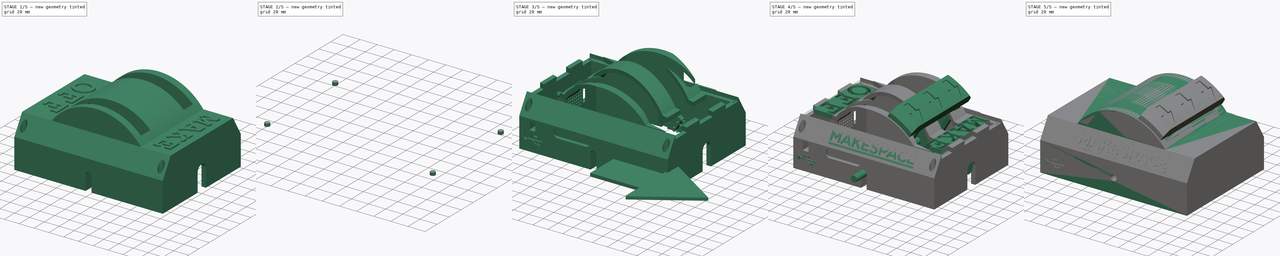
[diagram: build sequence overview — one tinted view per stage of 5, left to right]
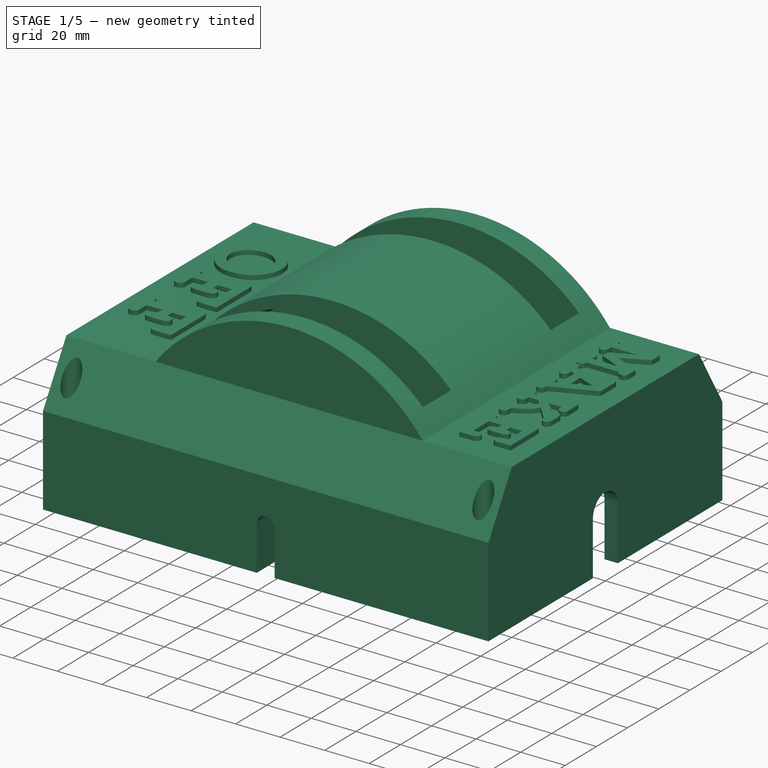
[diagram: stage 1 of 5 — iso view after this stage's code; geometry added in this stage tinted green]
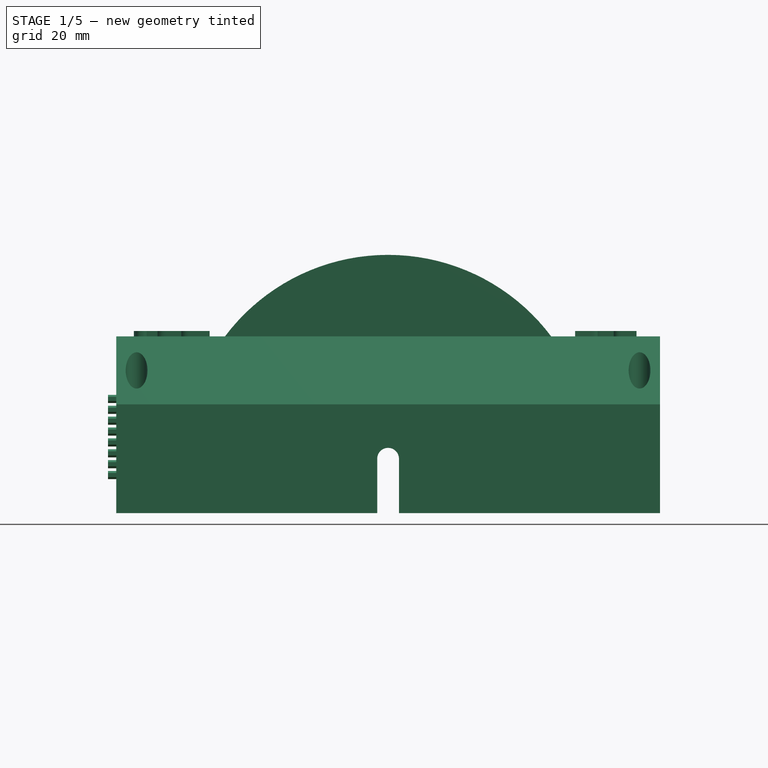
[diagram: stage 1 of 5 — front view after this stage's code; geometry added in this stage tinted green]
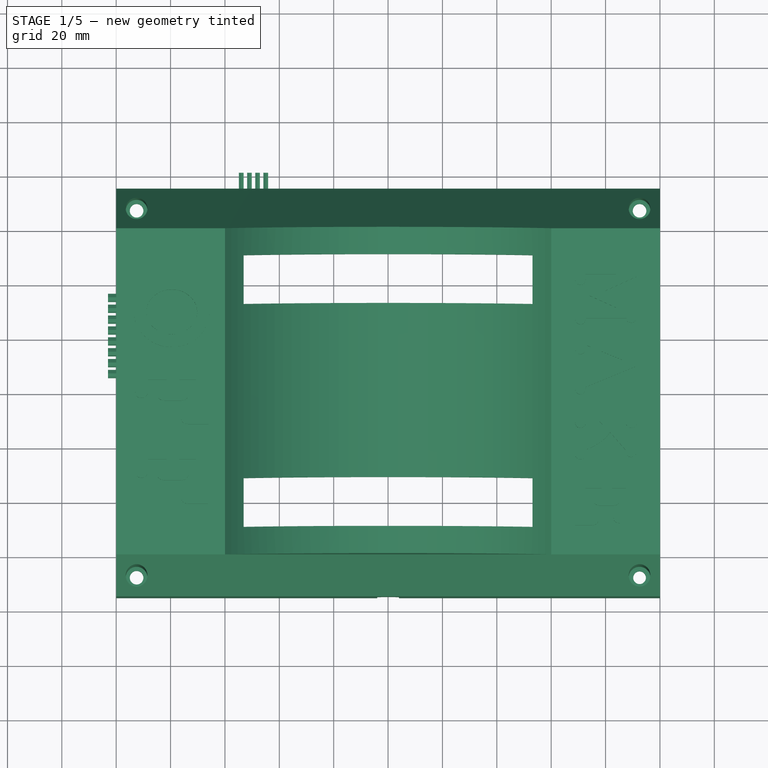
[diagram: stage 1 of 5 — top view after this stage's code; geometry added in this stage tinted green]
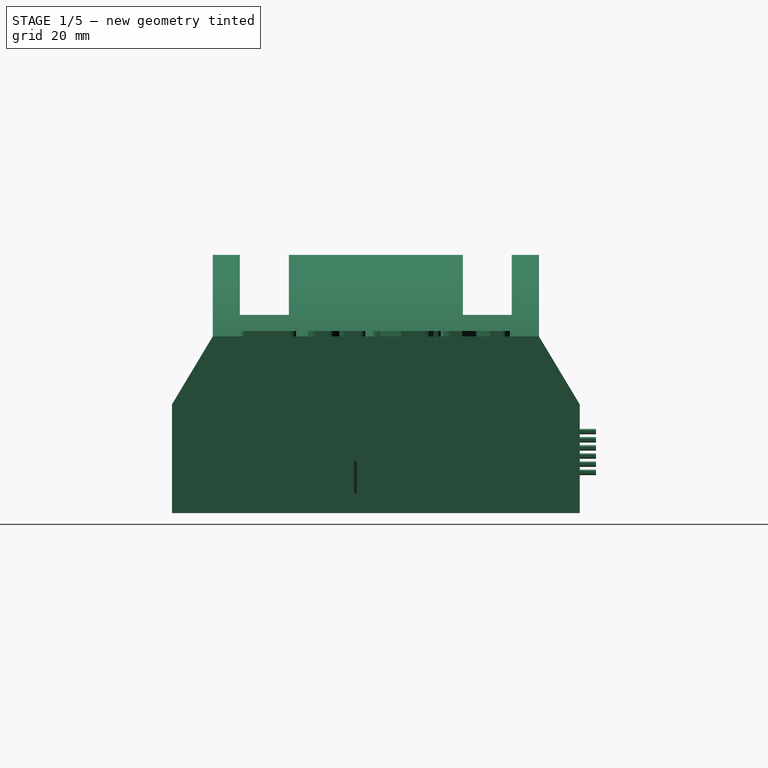
[diagram: stage 1 of 5 — right view after this stage's code; geometry added in this stage tinted green]
FCSTD DOCUMENT  (FreeCAD 0.16R5942 (Git))
Label: v2
License: All rights reserved
LicenseURL: http://es.wikipedia.org/wiki/Todos_los_derechos_reservados
objects: Sketcher::SketchObject×61, Part::FeaturePython×32, Part::Extrusion×29, Part::Cut×28, PartDesign::Pocket×22, App::DocumentObjectGroup×18, PartDesign::Chamfer×16, Part::MultiFuse×15, Part::Cylinder×10, PartDesign::Pad×9, Part::Feature×9, Part::MultiCommon×3, Part::Part2DObjectPython×2, Part::Prism×2, Part::Torus×1, PartDesign::Fillet×1, PartDesign::Groove×1, Part::Mirroring×1
note: 274 computed .brp shape members not serialized (recipe doc carries the construction recipe); baked Part::Feature solids carry a one-line shape summary decoded from their .brp

FEATURE [Part::Part2DObjectPython] ShapeString  # Draft 2D object (typed FeaturePython)
  FontFile = <path>
  Size = 14
  String = MAKE
  Tracking = 160
FEATURE [Part::Part2DObjectPython] ShapeString001  label="String"  # Draft 2D object (typed FeaturePython)
  FontFile = <path>
  Size = 15
  String = OFF
  Tracking = 100
FEATURE [Part::Extrusion] Extrude_ShapeString  label="Make"
  Base = -> ShapeString
  Dir = (0,0,-8)
  Solid = true
FEATURE [Part::Extrusion] Extrude_ShapeString001  label="Off"
  Base = -> ShapeString001
  Dir = (0,0,-8)
  Solid = true
FEATURE [Part::Cylinder] Cylinder010  label="Cilindro010"
  Angle = 180
  Height = 110
  Placement = pos=(0,-5,0) rot=(1,0,0;1.5708rad)
  Radius = 70
FEATURE [Part::Cylinder] Cylinder011  label="Cilindro011"
  Angle = 180
  Height = 120
  Placement = pos=(0,0,0) rot=(1,0,0;1.5708rad)
  Radius = 75
FEATURE [Part::FeaturePython] Clone007  label="Clone of Make"  # Draft clone (typed FeaturePython)
  Objects = -> [Extrude_ShapeString]
  Placement = pos=(68.8,-11.5,47) rot=(0,0,-1;1.5708rad)
  Scale = (0.9,0.9,1)
FEATURE [Part::FeaturePython] Clone008  label="Clone of Off"  # Draft clone (typed FeaturePython)
  Objects = -> [Extrude_ShapeString001]
  Placement = pos=(-93,-17,47) rot=(0,0,-1;1.5708rad)
  Scale = (1,1,1)
FEATURE [Part::Cut] Cut001
  Base = -> Cylinder011
  Tool = -> Cylinder010
FEATURE [Sketcher::SketchObject] Sketch
  ExternalGeometry = -> [Cut001]
  Placement = pos=(0,0,0) rot=(1,0,0;3.14159rad)
  Support = -> Cut001 [Face4]
  sketch-geometry (12):
    g0: LineSegment StartX=-100 StartY=135 StartZ=0 EndX=100 EndY=135 EndZ=0
    g1: LineSegment StartX=100 StartY=135 StartZ=0 EndX=100 EndY=-15 EndZ=0
    g2: LineSegment StartX=100 StartY=-15 StartZ=0 EndX=-100 EndY=-15 EndZ=0
    g3: LineSegment StartX=-100 StartY=-15 StartZ=0 EndX=-100 EndY=135 EndZ=0
    g4: LineSegment StartX=70 StartY=5 StartZ=0 EndX=-70 EndY=5 EndZ=0
    g5: LineSegment StartX=-70 StartY=5 StartZ=0 EndX=-70 EndY=115 EndZ=0
    g6: LineSegment StartX=-70 StartY=115 StartZ=0 EndX=70 EndY=115 EndZ=0
    g7: LineSegment StartX=70 StartY=115 StartZ=0 EndX=70 EndY=5 EndZ=0
    g8: LineSegment [constr] StartX=75 StartY=120 StartZ=0 EndX=75 EndY=135 EndZ=0
    g9: LineSegment [constr] StartX=75 StartY=120 StartZ=0 EndX=100 EndY=120 EndZ=0
    g10: LineSegment [constr] StartX=-75 StartY=0 StartZ=0 EndX=-75 EndY=-15 EndZ=0
    g11: LineSegment [constr] StartX=-75 StartY=0 StartZ=0 EndX=-100 EndY=0 EndZ=0
  constraints (33):
    c: Coincident(g0,g1)
    c: Coincident(g1,g2)
    c: Coincident(g2,g3)
    c: Coincident(g3,g0)
    c: Horizontal(g0)
    c: Horizontal(g2)
    c: Vertical(g1)
    c: Vertical(g3)
    c: Coincident(g4,g5)
    c: Coincident(g5,g6)
    c: Coincident(g6,g7)
    c: Coincident(g7,g4)
    c: Horizontal(g4)
    c: Horizontal(g6)
    c: Vertical(g5)
    c: Vertical(g7)
    c: Coincident(g4,g-4)
    c: Coincident(g5,g-3)
    c: Coincident(g8,g-5)
    c: PointOnObject(g8,g0)
    c: Vertical(g8)
    c: Coincident(g9,g8)
    c: Coincident(g10,g-6)
    c: PointOnObject(g10,g2)
    c: Vertical(g10)
    c: Coincident(g11,g10)
    c: PointOnObject(g11,g-1)
    c: Equal(g11,g9)
    c: Equal(g8,g10)
    c: PointOnObject(g9,g1)
    c: Distance(g9) = 25
    c: Distance(g8) = 15
    c: PointOnObject(g11,g3)
FEATURE [PartDesign::Pad] Pad
  Length = 40
  Length2 = 100
  Midplane = true
  Sketch = -> Sketch
  Type = 0
FEATURE [Sketcher::SketchObject] Sketch001
  ExternalGeometry = -> [Pad]
  Placement = pos=(0,0,0) rot=(0,0.707107,0.707107;3.14159rad)
  Support = -> Pad [Face7]
  sketch-geometry (8):
    g0: LineSegment StartX=60 StartY=45 StartZ=0 EndX=100 EndY=45 EndZ=0
    g1: LineSegment StartX=100 StartY=45 StartZ=0 EndX=100 EndY=20 EndZ=0
    g2: LineSegment StartX=100 StartY=20 StartZ=0 EndX=72.2842 EndY=20 EndZ=0
    g3: LineSegment StartX=72.2842 StartY=20 StartZ=0 EndX=60 EndY=45 EndZ=0
    g4: LineSegment StartX=-60 StartY=45 StartZ=0 EndX=-100 EndY=45 EndZ=0
    g5: LineSegment StartX=-100 StartY=45 StartZ=0 EndX=-100 EndY=20 EndZ=0
    g6: LineSegment StartX=-100 StartY=20 StartZ=0 EndX=-72.2842 EndY=20 EndZ=0
    g7: LineSegment StartX=-72.2842 StartY=20 StartZ=0 EndX=-60 EndY=45 EndZ=0
  constraints (20):
    c: PointOnObject(g0,g-3)
    c: Horizontal(g0)
    c: Coincident(g0,g1)
    c: Coincident(g1,g-4)
    c: Vertical(g1)
    c: Coincident(g1,g2)
    c: Coincident(g2,g-3)
    c: Coincident(g2,g3)
    c: Coincident(g3,g0)
    c: Horizontal(g4)
    c: Coincident(g4,g5)
    c: Coincident(g5,g-4)
    c: Coincident(g5,g6)
    c: Coincident(g6,g-3)
    c: Coincident(g6,g7)
    c: Coincident(g7,g4)
    c: PointOnObject(g4,g-3)
    c: Equal(g0,g4)
    c: Distance(g0) = 40
    c: Vertical(g5)
FEATURE [PartDesign::Pad] Pad001
  Length = 120
  Length2 = 100
  Reversed = true
  Sketch = -> Sketch001
  Type = 0
FEATURE [App::DocumentObjectGroup] Grupo  label="Letras"
  Group = -> [Extrude_ShapeString,Extrude_ShapeString001]
FEATURE [Sketcher::SketchObject] Sketch002
  ExternalGeometry = -> [Pad001]
  Placement = pos=(0,0,-20) rot=(1,0,0;3.14159rad)
  Support = -> Pad001 [Face3]
  sketch-geometry (4):
    g0: LineSegment StartX=-94 StartY=115 StartZ=0 EndX=94 EndY=115 EndZ=0
    g1: LineSegment StartX=94 StartY=115 StartZ=0 EndX=94 EndY=5 EndZ=0
    g2: LineSegment StartX=94 StartY=5 StartZ=0 EndX=-94 EndY=5 EndZ=0
    g3: LineSegment StartX=-94 StartY=5 StartZ=0 EndX=-94 EndY=115 EndZ=0
  constraints (12):
    c: Coincident(g0,g1)
    c: Coincident(g1,g2)
    c: Coincident(g2,g3)
    c: Coincident(g3,g0)
    c: Horizontal(g0)
    c: Horizontal(g2)
    c: Vertical(g1)
    c: Vertical(g3)
    c: PointOnObject(g-7,g2)
    c: PointOnObject(g-8,g0)
    c: Distance(g0,g-4) = 6
    c: Distance(g0,g-3) = 6
FEATURE [PartDesign::Pocket] Pocket
  Length = 59
  Sketch = -> Sketch002
  Type = 0
FEATURE [Sketcher::SketchObject] Sketch003
  ExternalGeometry = -> [Pocket]
  Placement = pos=(-100,0,0) rot=(0.57735,-0.57735,-0.57735;2.0944rad)
  Support = -> Pocket [Face2]
  sketch-geometry (6):
    g0: LineSegment StartX=120 StartY=45 StartZ=0 EndX=135 EndY=20 EndZ=0
    g1: LineSegment StartX=135 StartY=20 StartZ=0 EndX=120 EndY=20 EndZ=0
    g2: LineSegment StartX=120 StartY=20 StartZ=0 EndX=120 EndY=45 EndZ=0
    g3: LineSegment StartX=0 StartY=45 StartZ=0 EndX=-15 EndY=20 EndZ=0
    g4: LineSegment StartX=-15 StartY=20 StartZ=0 EndX=0 EndY=20 EndZ=0
    g5: LineSegment StartX=0 StartY=20 StartZ=0 EndX=0 EndY=45 EndZ=0
  constraints (14):
    c: Coincident(g-3,g0)
    c: Coincident(g0,g-5)
    c: Coincident(g0,g1)
    c: Horizontal(g1)
    c: Coincident(g1,g2)
    c: Coincident(g2,g0)
    c: Coincident(g-3,g3)
    c: Coincident(g3,g-4)
    c: Coincident(g3,g4)
    c: Horizontal(g4)
    c: Coincident(g4,g5)
    c: Coincident(g5,g3)
    c: Vertical(g5)
    c: Vertical(g2)
FEATURE [PartDesign::Pad] Pad002
  Length = 10
  Length2 = 100
  Reversed = true
  Sketch = -> Sketch003
  Type = 3
  UpToFace = -> Pocket [Face3]
FEATURE [Sketcher::SketchObject] Sketch004
  ExternalGeometry = -> [Pad002]
  Placement = pos=(0,-120,0) rot=(1,0,0;1.5708rad)
  Support = -> Pad002 [Face15]
  sketch-geometry (1):
    g0: Circle CenterX=0 CenterY=0 CenterZ=0 NormalX=0 NormalY=0 NormalZ=1 Radius=4
  constraints (2):
    c: Coincident(g0,g-3)
    c: Radius(g0) = 4
FEATURE [PartDesign::Pocket] Pocket001
  Length = 5
  Midplane = true
  Sketch = -> Sketch004
  Type = 1
FEATURE [Sketcher::SketchObject] Sketch005
  ExternalGeometry = -> [Pocket001]
  Placement = pos=(0,0,-20) rot=(1,0,0;3.14159rad)
  Support = -> Pocket001 [Face1]
  sketch-geometry (12):
    g0: LineSegment [constr] StartX=53.1292 StartY=110 StartZ=0 EndX=-53.1292 EndY=110 EndZ=0
    g1: LineSegment [constr] StartX=-53.1292 StartY=110 StartZ=0 EndX=-53.1292 EndY=10 EndZ=0
    g2: LineSegment [constr] StartX=-53.1292 StartY=10 StartZ=0 EndX=53.1292 EndY=10 EndZ=0
    g3: LineSegment [constr] StartX=53.1292 StartY=10 StartZ=0 EndX=53.1292 EndY=110 EndZ=0
    g4: LineSegment StartX=53.1292 StartY=10 StartZ=0 EndX=-53.1292 EndY=10 EndZ=0
    g5: LineSegment StartX=-53.1292 StartY=10 StartZ=0 EndX=-53.1292 EndY=28 EndZ=0
    g6: LineSegment StartX=-53.1292 StartY=28 StartZ=0 EndX=53.1292 EndY=28 EndZ=0
    g7: LineSegment StartX=53.1292 StartY=28 StartZ=0 EndX=53.1292 EndY=10 EndZ=0
    g8: LineSegment StartX=53.1292 StartY=110 StartZ=0 EndX=-53.1292 EndY=110 EndZ=0
    g9: LineSegment StartX=-53.1292 StartY=110 StartZ=0 EndX=-53.1292 EndY=92 EndZ=0
    g10: LineSegment StartX=-53.1292 StartY=92 StartZ=0 EndX=53.1292 EndY=92 EndZ=0
    g11: LineSegment StartX=53.1292 StartY=92 StartZ=0 EndX=53.1292 EndY=110 EndZ=0
  constraints (34):
    c: Coincident(g0,g1)
    c: Coincident(g1,g2)
    c: Coincident(g2,g3)
    c: Coincident(g3,g0)
    c: Horizontal(g0)
    c: Horizontal(g2)
    c: Vertical(g1)
    c: Vertical(g3)
    c: Coincident(g4,g5)
    c: Coincident(g5,g6)
    c: Coincident(g6,g7)
    c: Coincident(g7,g4)
    c: Horizontal(g4)
    c: Horizontal(g6)
    c: Vertical(g7)
    c: Coincident(g4,g2)
    c: PointOnObject(g5,g1)
    c: Coincident(g8,g9)
    c: Coincident(g9,g10)
    c: Coincident(g10,g11)
    c: Coincident(g11,g8)
    c: Horizontal(g8)
    c: Horizontal(g10)
    c: Vertical(g11)
    c: Coincident(g8,g0)
    c: PointOnObject(g9,g1)
    c: Equal(g5,g9)
    c: Coincident(g0,g8)
    c: Coincident(g4,g1)
    c: Distance(g2,g-4) = 5
    c: Distance(g1,g-3) = 5
    c: Distance(g0,g-6) = 5
    c: Distance(g2,g-5) = 5
    c: Distance(g9,g0) = 18
FEATURE [PartDesign::Pocket] Pocket002
  Length = 5
  Sketch = -> Sketch005
  Type = 1
FEATURE [Sketcher::SketchObject] Sketch012
  ExternalGeometry = -> [Pocket002]
  Placement = pos=(0,0,-20) rot=(1,0,0;3.14159rad)
  Support = -> Pocket002 [Face1]
  sketch-geometry (4):
    g0: LineSegment StartX=-94 StartY=121 StartZ=0 EndX=94 EndY=121 EndZ=0
    g1: LineSegment StartX=94 StartY=121 StartZ=0 EndX=94 EndY=-1 EndZ=0
    g2: LineSegment StartX=94 StartY=-1 StartZ=0 EndX=-94 EndY=-1 EndZ=0
    g3: LineSegment StartX=-94 StartY=-1 StartZ=0 EndX=-94 EndY=121 EndZ=0
  constraints (12):
    c: Coincident(g0,g1)
    c: Coincident(g1,g2)
    c: Coincident(g2,g3)
    c: Coincident(g3,g0)
    c: Horizontal(g0)
    c: Horizontal(g2)
    c: Vertical(g1)
    c: Vertical(g3)
    c: PointOnObject(g-4,g1)
    c: PointOnObject(g-3,g3)
    c: Distance(g-4,g0) = 6
    c: Distance(g2,g-3) = 6
FEATURE [PartDesign::Pocket] Pocket005
  Length = 5.5
  Sketch = -> Sketch012
  Type = 0
FEATURE [Sketcher::SketchObject] Sketch013
  ExternalGeometry = -> [Pocket005]
  Placement = pos=(0,0,-14.5) rot=(1,0,0;3.14159rad)
  Support = -> Pocket005 [Face14]
  sketch-geometry (11):
    g0: LineSegment [constr] StartX=-90.75 StartY=117.75 StartZ=0 EndX=90.75 EndY=117.75 EndZ=0
    g1: LineSegment [constr] StartX=90.75 StartY=117.75 StartZ=0 EndX=90.75 EndY=2.25 EndZ=0
    g2: LineSegment [constr] StartX=90.75 StartY=2.25 StartZ=0 EndX=-90.75 EndY=2.25 EndZ=0
    g3: LineSegment [constr] StartX=-90.75 StartY=2.25 StartZ=0 EndX=-90.75 EndY=117.75 EndZ=0
    g4: Circle CenterX=-90.75 CenterY=117.75 CenterZ=0 NormalX=0 NormalY=0 NormalZ=1 Radius=1.45
    g5: Circle CenterX=-90.75 CenterY=2.25 CenterZ=0 NormalX=0 NormalY=0 NormalZ=1 Radius=1.45
    g6: Circle CenterX=90.75 CenterY=117.75 CenterZ=0 NormalX=0 NormalY=0 NormalZ=1 Radius=1.45
    g7: Circle CenterX=90.75 CenterY=2.25 CenterZ=0 NormalX=0 NormalY=0 NormalZ=1 Radius=1.45
    g8: LineSegment [constr] StartX=-94 StartY=121 StartZ=0 EndX=-90.75 EndY=117.75 EndZ=0
    g9: LineSegment [constr] StartX=90.75 StartY=2.25 StartZ=0 EndX=94 EndY=-1 EndZ=0
    g10: Circle [constr] CenterX=90.75 CenterY=2.25 CenterZ=0 NormalX=0 NormalY=0 NormalZ=1 Radius=3.25
  constraints (26):
    c: Coincident(g0,g1)
    c: Coincident(g1,g2)
    c: Coincident(g2,g3)
    c: Coincident(g3,g0)
    c: Horizontal(g0)
    c: Horizontal(g2)
    c: Vertical(g1)
    c: Vertical(g3)
    c: Coincident(g4,g0)
    c: Coincident(g5,g2)
    c: Coincident(g6,g0)
    c: Coincident(g7,g1)
    c: Radius(g4) = 1.45
    c: Equal(g4,g6)
    c: Equal(g4,g7)
    c: Equal(g4,g5)
    c: Coincident(g8,g-4)
    c: Coincident(g8,g0)
    c: Coincident(g9,g1)
    c: Coincident(g9,g-5)
    c: Equal(g9,g8)
    c: Parallel(g9,g8)
    c: Coincident(g10,g1)
    c: Radius(g10) = 3.25
    c: Tangent(g-5,g10)
    c: Tangent(g10,g-6)
FEATURE [PartDesign::Pocket] Pocket006
  Length = 10
  Sketch = -> Sketch013
  Type = 0
FEATURE [Part::Feature] Fusion009001  label="Fusion010"
  shape: bbox 187.5 x 121.5 x 65 mm, 167 faces (baked)
FEATURE [Part::Feature] Compound001001  label="NodeMCU"
  Placement = pos=(-79,-114.5,25) rot=(-0.57735,-0.57735,0.57735;2.0944rad)
  shape: bbox 12.4 x 48.5 x 26 mm, 529 faces, 64 solids (baked)
FEATURE [Sketcher::SketchObject] Sketch029
  ExternalGeometry = -> [Compound001001]
  Placement = pos=(-80.5,-114.5,25) rot=(-0.57735,-0.57735,0.57735;2.0944rad)
  Support = -> Compound001001 [Face21]
  sketch-geometry (8):
    g0: Circle CenterX=2.5 CenterY=23.5 CenterZ=0 NormalX=0 NormalY=0 NormalZ=1 Radius=1.45
    g1: Circle CenterX=46 CenterY=23.5 CenterZ=0 NormalX=0 NormalY=0 NormalZ=1 Radius=1.45
    g2: Circle CenterX=46 CenterY=2.5 CenterZ=0 NormalX=0 NormalY=0 NormalZ=1 Radius=1.45
    g3: Circle CenterX=2.5 CenterY=2.5 CenterZ=0 NormalX=0 NormalY=0 NormalZ=1 Radius=1.45
    g4: Circle CenterX=2.5 CenterY=23.5 CenterZ=0 NormalX=0 NormalY=0 NormalZ=1 Radius=3
    g5: Circle CenterX=46 CenterY=23.5 CenterZ=0 NormalX=0 NormalY=0 NormalZ=1 Radius=3
    g6: Circle CenterX=46 CenterY=2.5 CenterZ=0 NormalX=0 NormalY=0 NormalZ=1 Radius=3
    g7: Circle CenterX=2.5 CenterY=2.5 CenterZ=0 NormalX=0 NormalY=0 NormalZ=1 Radius=3
  constraints (16):
    c: Coincident(g0,g-3)
    c: Coincident(g1,g-4)
    c: Coincident(g2,g-5)
    c: Coincident(g3,g-6)
    c: Radius(g0) = 1.45
    c: Equal(g0,g1)
    c: Equal(g0,g2)
    c: Equal(g0,g3)
    c: Coincident(g4,g0)
    c: Coincident(g5,g1)
    c: Coincident(g6,g2)
    c: Coincident(g7,g3)
    c: Radius(g5) = 3
    c: Equal(g5,g6)
    c: Equal(g5,g7)
    c: Equal(g5,g4)
FEATURE [Part::Extrusion] Extrude_Sketch029  label="Sketch029_Extrude"
  Base = -> Sketch029
  Dir = (-14,0,0)
  Solid = true
FEATURE [Sketcher::SketchObject] Sketch030
  Placement = pos=(-80.5,0,0) rot=(0.57735,0.57735,0.57735;2.0944rad)
  Support = -> Extrude_Sketch029 [Face11]
  sketch-geometry (4):
    g0: LineSegment StartX=-59.6222 StartY=-60.407 StartZ=0 EndX=-120.911 EndY=-60.407 EndZ=0
    g1: LineSegment StartX=-120.911 StartY=-60.407 StartZ=0 EndX=-120.911 EndY=-41.8715 EndZ=0
    g2: LineSegment StartX=-120.911 StartY=-41.8715 StartZ=0 EndX=-59.6222 EndY=-41.8715 EndZ=0
    g3: LineSegment StartX=-59.6222 StartY=-41.8715 StartZ=0 EndX=-59.6222 EndY=-60.407 EndZ=0
  constraints (8):
    c: Coincident(g0,g1)
    c: Coincident(g1,g2)
    c: Coincident(g2,g3)
    c: Coincident(g3,g0)
    c: Horizontal(g0)
    c: Horizontal(g2)
    c: Vertical(g1)
    c: Vertical(g3)
FEATURE [Part::Extrusion] Extrude_Sketch030  label="Sketch030_Extrude"
  Base = -> Sketch030
  Dir = (-3,0,0)
  Placement = pos=(0,0,63) rot=(0,0,1;0rad)
  Solid = true
FEATURE [Sketcher::SketchObject] Sketch033
  ExternalGeometry = -> [Pocket006]
  Placement = pos=(0,15,0) rot=(0,0.707107,0.707107;3.14159rad)
  Support = -> Pocket006 [Face5]
  sketch-geometry (4):
    g0: LineSegment StartX=4 StartY=0 StartZ=0 EndX=-4 EndY=0 EndZ=0
    g1: LineSegment StartX=-4 StartY=0 StartZ=0 EndX=-4 EndY=-20 EndZ=0
    g2: LineSegment StartX=-4 StartY=-20 StartZ=0 EndX=4 EndY=-20 EndZ=0
    g3: LineSegment StartX=4 StartY=-20 StartZ=0 EndX=4 EndY=0 EndZ=0
  constraints (12):
    c: Coincident(g0,g1)
    c: Coincident(g1,g2)
    c: Coincident(g2,g3)
    c: Coincident(g3,g0)
    c: Horizontal(g0)
    c: Horizontal(g2)
    c: Vertical(g1)
    c: Vertical(g3)
    c: PointOnObject(g0,g-4)
    c: PointOnObject(g1,g-3)
    c: PointOnObject(g0,g-4)
    c: PointOnObject(g-1,g0)
FEATURE [PartDesign::Pocket] Pocket011
  Length = 5
  Sketch = -> Sketch033
  Type = 1
FEATURE [Sketcher::SketchObject] Sketch034
  ExternalGeometry = -> [Fusion009001]
  Placement = pos=(93.75,0,0) rot=(0.57735,0.57735,0.57735;2.0944rad)
  Support = -> Fusion009001 [Face5]
  sketch-geometry (5):
    g0: LineSegment StartX=-68 StartY=-20 StartZ=0 EndX=-52 EndY=-20 EndZ=0
    g1: LineSegment StartX=-52 StartY=-20 StartZ=0 EndX=-52 EndY=4 EndZ=0
    g2: LineSegment [constr] StartX=-52 StartY=4 StartZ=0 EndX=-68 EndY=4 EndZ=0
    g3: LineSegment StartX=-68 StartY=4 StartZ=0 EndX=-68 EndY=-20 EndZ=0
    g4: ArcOfCircle CenterX=-60 CenterY=4 CenterZ=0 NormalX=0 NormalY=0 NormalZ=1 Radius=8 StartAngle=0 EndAngle=3.14159
  constraints (14):
    c: Coincident(g0,g1)
    c: Coincident(g1,g2)
    c: Coincident(g2,g3)
    c: Coincident(g3,g0)
    c: Horizontal(g0)
    c: Horizontal(g2)
    c: Vertical(g1)
    c: Vertical(g3)
    c: PointOnObject(g0,g-4)
    c: PointOnObject(g4,g2)
    c: Coincident(g4,g2)
    c: Coincident(g4,g1)
    c: Coincident(g4,g-3)
    c: Equal(g4,g-3)
FEATURE [App::DocumentObjectGroup] Grupo003  label="Tapa"
  Group = -> [Extrude_Sketch014,Pocket007,Sketch017,Cut003,Sketch019,Pocket008,Chamfer006,Chamfer008,Sketch023,Cut004,Fusion006,Cut006,Cut007,Fusion009,Fusion009001,Sketch034]
FEATURE [Part::Extrusion] Extrude_Sketch034  label="Sketch034_Extrude"
  Base = -> Sketch034
  Dir = (10,0,0)
  Solid = true
FEATURE [Part::Cut] Cut009
  Base = -> Pocket011
  Tool = -> Extrude_Sketch034
FEATURE [Sketcher::SketchObject] Sketch035
  ExternalGeometry = -> [Cut009]
  Placement = pos=(0,0,-20) rot=(1,0,0;3.14159rad)
  Support = -> Cut009 [Face23]
  sketch-geometry (13):
    g0: Circle [constr] CenterX=92.5 CenterY=127.5 CenterZ=0 NormalX=0 NormalY=0 NormalZ=1 Radius=4
    g1: LineSegment [constr] StartX=92.5 StartY=127.5 StartZ=0 EndX=-92.5 EndY=127.5 EndZ=0
    g2: LineSegment [constr] StartX=-92.5 StartY=127.5 StartZ=0 EndX=-92.5 EndY=-7.5 EndZ=0
    g3: LineSegment [constr] StartX=-92.5 StartY=-7.5 StartZ=0 EndX=92.5 EndY=-7.5 EndZ=0
    g4: LineSegment [constr] StartX=92.5 StartY=-7.5 StartZ=0 EndX=92.5 EndY=127.5 EndZ=0
    g5: Circle CenterX=-92.5 CenterY=-7.5 CenterZ=0 NormalX=0 NormalY=0 NormalZ=1 Radius=2.5
    g6: Circle CenterX=-92.5 CenterY=127.5 CenterZ=0 NormalX=0 NormalY=0 NormalZ=1 Radius=2.5
    g7: Circle CenterX=92.5 CenterY=-7.5 CenterZ=0 NormalX=0 NormalY=0 NormalZ=1 Radius=2.5
    g8: Circle CenterX=92.5 CenterY=127.5 CenterZ=0 NormalX=0 NormalY=0 NormalZ=1 Radius=2.33566
    g9: LineSegment [constr] StartX=92.5 StartY=127.5 StartZ=0 EndX=100 EndY=127.5 EndZ=0
    g10: LineSegment [constr] StartX=92.5 StartY=127.5 StartZ=0 EndX=92.5 EndY=135 EndZ=0
    g11: LineSegment [constr] StartX=-92.5 StartY=-7.5 StartZ=0 EndX=-92.5 EndY=-15 EndZ=0
    g12: LineSegment [constr] StartX=-92.5 StartY=-7.5 StartZ=0 EndX=-100 EndY=-7.5 EndZ=0
  constraints (33):
    c: Radius(g0) = 4
    c: Coincident(g1,g2)
    c: Coincident(g2,g3)
    c: Coincident(g3,g4)
    c: Coincident(g4,g1)
    c: Horizontal(g1)
    c: Horizontal(g3)
    c: Vertical(g2)
    c: Vertical(g4)
    c: Coincident(g1,g0)
    c: Coincident(g5,g2)
    c: Coincident(g6,g1)
    c: Coincident(g7,g3)
    c: Coincident(g8,g0)
    c: Coincident(g9,g0)
    c: PointOnObject(g9,g-6)
    c: Horizontal(g9)
    c: Coincident(g10,g0)
    c: PointOnObject(g10,g-3)
    c: Vertical(g10)
    c: Coincident(g11,g2)
    c: PointOnObject(g11,g-9)
    c: Vertical(g11)
    c: Coincident(g12,g2)
    c: PointOnObject(g12,g-8)
    c: Horizontal(g12)
    c: Equal(g9,g12)
    c: Equal(g11,g10)
    c: Radius(g6) = 2.5
    c: Equal(g6,g7)
    c: Equal(g6,g5)
    c: Distance(g1) = 185
    c: Distance(g2) = 135
FEATURE [Part::Extrusion] Extrude_Sketch035  label="Sketch035_Extrude"
  Base = -> Sketch035
  Dir = (0,0,4)
  Solid = true
FEATURE [Sketcher::SketchObject] Sketch036
  ExternalGeometry = -> [Extrude_Sketch035]
  Placement = pos=(0,0,-16) rot=(0,0,1;0rad)
  Support = -> Extrude_Sketch035 [Face12]
  sketch-geometry (4):
    g0: Circle CenterX=92.5 CenterY=7.5 CenterZ=0 NormalX=0 NormalY=0 NormalZ=1 Radius=4
    g1: Circle CenterX=92.5 CenterY=-127.5 CenterZ=0 NormalX=0 NormalY=0 NormalZ=1 Radius=4
    g2: Circle CenterX=-92.5 CenterY=-127.5 CenterZ=0 NormalX=0 NormalY=0 NormalZ=1 Radius=4
    g3: Circle CenterX=-92.5 CenterY=7.5 CenterZ=0 NormalX=0 NormalY=0 NormalZ=1 Radius=4
  constraints (8):
    c: Coincident(g0,g-4)
    c: Coincident(g1,g-3)
    c: Coincident(g2,g-7)
    c: Coincident(g3,g-6)
    c: Radius(g3) = 4
    c: Equal(g3,g2)
    c: Equal(g3,g1)
    c: Equal(g3,g0)
FEATURE [Part::Extrusion] Extrude_Sketch036  label="Sketch036_Extrude"
  Base = -> Sketch036
  Dir = (0,0,75)
  Solid = true
FEATURE [Part::MultiFuse] Fusion009002
  Shapes = -> [Extrude_Sketch035,Extrude_Sketch036]
FEATURE [Part::Cut] Cut010
  Base = -> Cut009
  Tool = -> Fusion009002
FEATURE [Sketcher::SketchObject] Sketch037
  ExternalGeometry = -> [Extrude_Sketch029]
  Placement = pos=(-80.5,0,0) rot=(0.57735,0.57735,0.57735;2.0944rad)
  Support = -> Extrude_Sketch029 [Face15]
  sketch-geometry (21):
    g0: LineSegment StartX=-70 StartY=-1.09808 StartZ=0 EndX=-67 EndY=-1.09808 EndZ=0
    g1: LineSegment StartX=-67 StartY=-1.09808 StartZ=0 EndX=-67 EndY=-12.9129 EndZ=0
    g2: LineSegment StartX=-67 StartY=-12.9129 StartZ=0 EndX=-70 EndY=-12.9129 EndZ=0
    g3: LineSegment StartX=-70 StartY=-12.9129 StartZ=0 EndX=-70 EndY=-1.09808 EndZ=0
    g4: LineSegment StartX=-113.5 StartY=-1.09808 StartZ=0 EndX=-110.5 EndY=-1.09808 EndZ=0
    g5: LineSegment StartX=-110.5 StartY=-1.09808 StartZ=0 EndX=-110.5 EndY=-12.9129 EndZ=0
    g6: LineSegment StartX=-110.5 StartY=-12.9129 StartZ=0 EndX=-113.5 EndY=-12.9129 EndZ=0
    g7: LineSegment StartX=-113.5 StartY=-12.9129 StartZ=0 EndX=-113.5 EndY=-1.09808 EndZ=0
    g8: LineSegment StartX=-113.5 StartY=19.9019 StartZ=0 EndX=-110.5 EndY=19.9019 EndZ=0
    g9: LineSegment StartX=-110.5 StartY=19.9019 StartZ=0 EndX=-110.5 EndY=4.09808 EndZ=0
    g10: LineSegment StartX=-110.5 StartY=4.09808 StartZ=0 EndX=-113.5 EndY=4.09808 EndZ=0
    g11: LineSegment StartX=-113.5 StartY=4.09808 StartZ=0 EndX=-113.5 EndY=19.9019 EndZ=0
    g12: LineSegment StartX=-70 StartY=19.9019 StartZ=0 EndX=-67 EndY=19.9019 EndZ=0
    g13: LineSegment StartX=-67 StartY=19.9019 StartZ=0 EndX=-67 EndY=4.09808 EndZ=0
    g14: LineSegment StartX=-67 StartY=4.09808 StartZ=0 EndX=-70 EndY=4.09808 EndZ=0
    g15: LineSegment StartX=-70 StartY=4.09808 StartZ=0 EndX=-70 EndY=19.9019 EndZ=0
    g16: LineSegment [constr] StartX=-110.5 StartY=19.9019 StartZ=0 EndX=-70 EndY=19.9019 EndZ=0
    g17: LineSegment [constr] StartX=-110.5 StartY=4.09808 StartZ=0 EndX=-70 EndY=4.09808 EndZ=0
    g18: LineSegment [constr] StartX=-70 StartY=-1.09808 StartZ=0 EndX=-110.5 EndY=-1.09808 EndZ=0
    g19: LineSegment [constr] StartX=-110.5 StartY=-12.9129 StartZ=0 EndX=-70 EndY=-12.9129 EndZ=0
    g20: LineSegment [constr] StartX=-110.5 StartY=4.09808 StartZ=0 EndX=-110.5 EndY=-1.09808 EndZ=0
  constraints (57):
    c: Coincident(g0,g1)
    c: Coincident(g1,g2)
    c: Coincident(g2,g3)
    c: Coincident(g3,g0)
    c: Horizontal(g0)
    c: Horizontal(g2)
    c: Vertical(g1)
    c: Vertical(g3)
    c: Coincident(g4,g5)
    c: Coincident(g5,g6)
    c: Coincident(g6,g7)
    c: Coincident(g7,g4)
    c: Horizontal(g4)
    c: Horizontal(g6)
    c: Vertical(g5)
    c: Vertical(g7)
    c: Coincident(g8,g9)
    c: Coincident(g9,g10)
    c: Coincident(g10,g11)
    c: Coincident(g11,g8)
    c: Horizontal(g8)
    c: Horizontal(g10)
    c: Vertical(g11)
    c: Coincident(g12,g13)
    c: Coincident(g13,g14)
    c: Coincident(g14,g15)
    c: Coincident(g15,g12)
    c: Horizontal(g12)
    c: Horizontal(g14)
    c: Vertical(g13)
    c: Vertical(g15)
    c: Coincident(g16,g8)
    c: Coincident(g16,g12)
    c: Horizontal(g16)
    c: Coincident(g17,g9)
    c: Coincident(g17,g14)
    c: Horizontal(g17)
    c: Coincident(g18,g0)
    c: Coincident(g18,g4)
    c: Horizontal(g18)
    c: Coincident(g19,g5)
    c: Coincident(g19,g2)
    c: Horizontal(g19)
    c: Equal(g16,g17)
    c: Equal(g17,g18)
    c: Equal(g8,g12)
    c: Equal(g12,g0)
    c: Equal(g0,g4)
    c: PointOnObject(g8,g-3)
    c: PointOnObject(g8,g-3)
    c: PointOnObject(g10,g-6)
    c: Coincident(g20,g9)
    c: Coincident(g20,g4)
    c: PointOnObject(g4,g-6)
    c: PointOnObject(g4,g-6)
    c: Distance(g6) = 3
    c: PointOnObject(g0,g-5)
FEATURE [Part::Extrusion] Extrude_Sketch037002  label="Sketch037_Extrude002"
  Base = -> Sketch037
  Dir = (-14,0,0)
  Solid = true
FEATURE [Part::MultiFuse] Fusion009003
  Shapes = -> [Extrude_Sketch029,Extrude_Sketch037002]
FEATURE [Part::Cut] Cut011
  Base = -> Fusion009003
  Tool = -> Extrude_Sketch030
FEATURE [Part::MultiFuse] Fusion009004
  Shapes = -> [Cut011,Cut010]
FEATURE [PartDesign::Chamfer] Chamfer012
  Base = -> Fusion009004 [Edge142,Edge10]
  Size = 12
FEATURE [Part::Prism] Prism  label="Prisma"
  Circumradius = 1.5
  Height = 10
  Placement = pos=(-103,-53,-6) rot=(0,1,0;1.5708rad)
  Polygon = 6
FEATURE [Part::FeaturePython] Array  # Draft array (typed FeaturePython)
  Angle = 360
  ArrayType = 0
  Axis = (0,0,1)
  Base = -> Prism
  Center = (0,0,0)
  Fuse = false
  IntervalAxis = (0,0,0)
  IntervalX = (4,0,0)
  IntervalY = (0,4,0)
  IntervalZ = (0,0,4)
  NumberPolar = 1
  NumberX = 1
  NumberY = 8
  NumberZ = 8
FEATURE [Part::Prism] Prism001  label="Prisma001"
  Circumradius = 1
  Height = 10
  Placement = pos=(-103,-53,-6) rot=(0,1,0;1.5708rad)
  Polygon = 6
FEATURE [Part::FeaturePython] Array001  # Draft array (typed FeaturePython)
  Angle = 360
  ArrayType = 0
  Axis = (0,0,1)
  Base = -> Prism001
  Center = (0,0,0)
  Fuse = false
  IntervalAxis = (0,0,0)
  IntervalX = (4,0,0)
  IntervalY = (0,3,0)
  IntervalZ = (0,0,3)
  NumberPolar = 1
  NumberX = 1
  NumberY = 4
  NumberZ = 6
  Placement = pos=(-98,114,1) rot=(0,0,1;1.5708rad)
FEATURE [App::DocumentObjectGroup] Grupo009
  Group = -> [Extrude_Sketch049,Pocket019]
FEATURE [Part::MultiFuse] Fusion009005
  Shapes = -> [Clone007,Clone008]
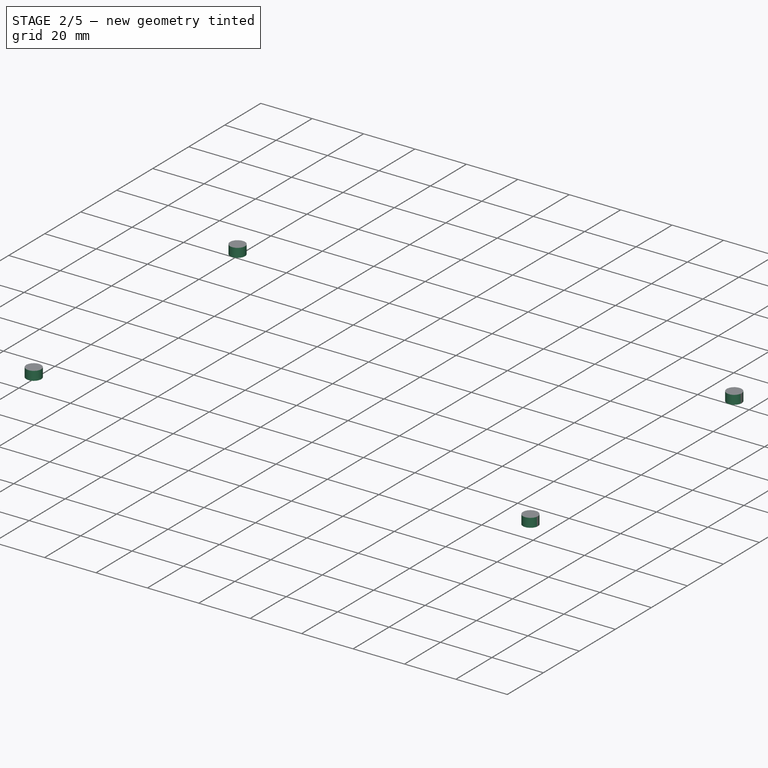
[diagram: stage 2 of 5 — iso view after this stage's code; geometry added in this stage tinted green]
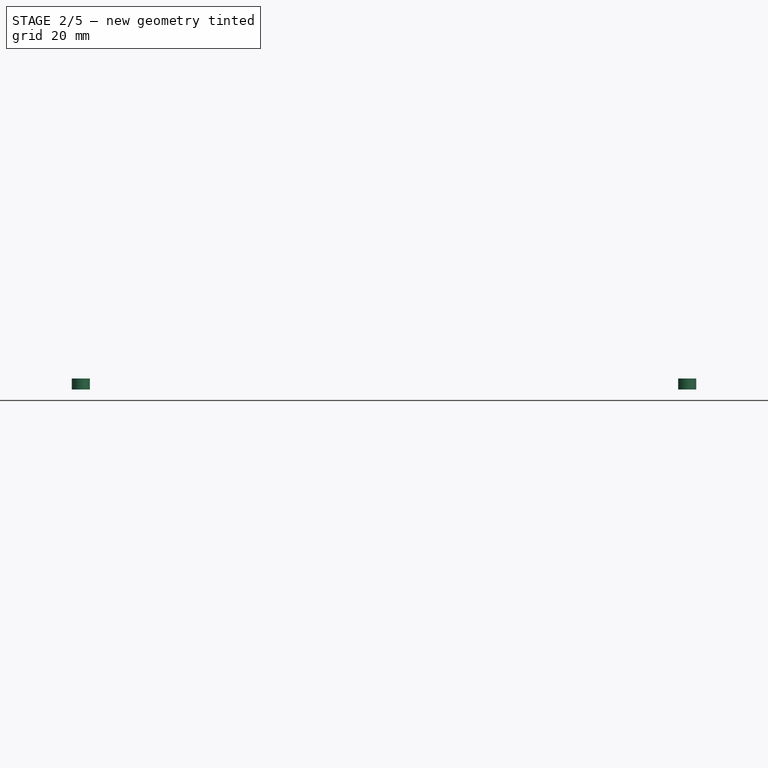
[diagram: stage 2 of 5 — front view after this stage's code; geometry added in this stage tinted green]
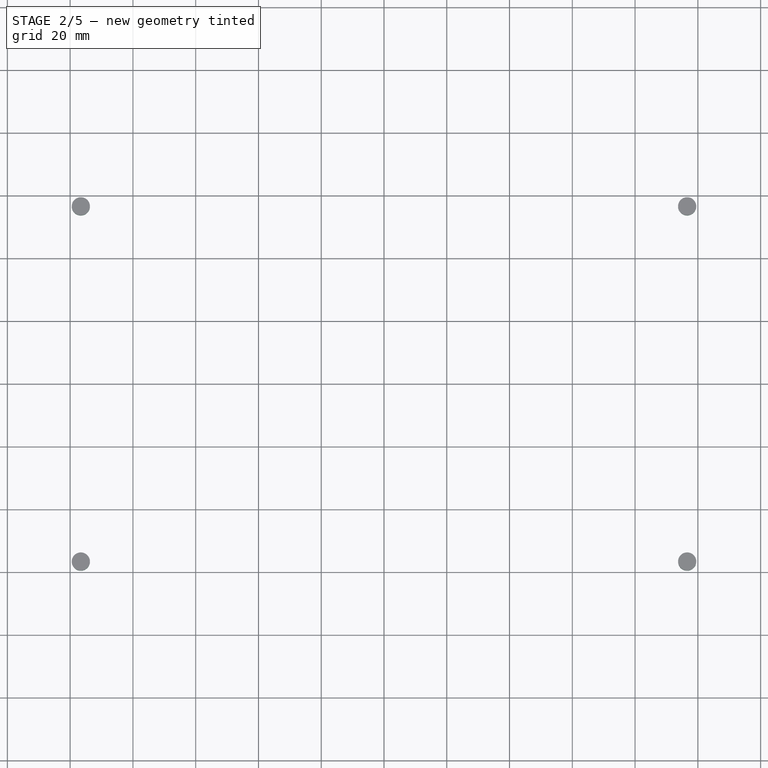
[diagram: stage 2 of 5 — top view after this stage's code; geometry added in this stage tinted green]
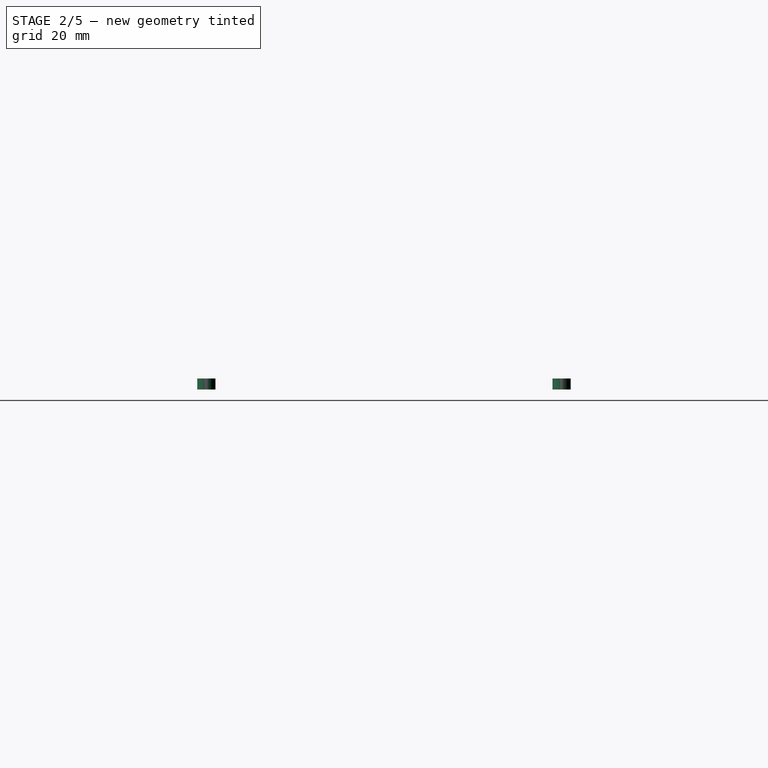
[diagram: stage 2 of 5 — right view after this stage's code; geometry added in this stage tinted green]
FEATURE [Sketcher::SketchObject] Sketch031
  ExternalGeometry = -> [Compound001001]
  Placement = pos=(-79,-114.5,25) rot=(0.57735,-0.57735,0.57735;2.0944rad)
  Support = -> Compound001001 [Face2]
  sketch-geometry (6):
    g0: LineSegment StartX=-9.64329 StartY=0.906901 StartZ=0 EndX=-16.3567 EndY=0.906901 EndZ=0
    g1: LineSegment StartX=-16.3567 StartY=0.906901 StartZ=0 EndX=-17.8684 EndY=5.17857 EndZ=0
    g2: LineSegment StartX=-17.8684 StartY=5.17857 StartZ=0 EndX=-8.13163 EndY=5.17857 EndZ=0
    g3: LineSegment StartX=-8.13163 StartY=5.17857 StartZ=0 EndX=-9.64329 EndY=0.906901 EndZ=0
    g4: LineSegment [constr] StartX=-15.6743 StartY=5 StartZ=0 EndX=-16.3567 EndY=0.906901 EndZ=0
    g5: LineSegment [constr] StartX=-10.3257 StartY=5 StartZ=0 EndX=-9.64329 EndY=0.906901 EndZ=0
  constraints (12):
    c: Horizontal(g0)
    c: Coincident(g0,g1)
    c: Coincident(g1,g2)
    c: Horizontal(g2)
    c: Coincident(g2,g3)
    c: Coincident(g3,g0)
    c: Equal(g1,g3)
    c: Coincident(g4,g-3)
    c: Coincident(g4,g0)
    c: Coincident(g5,g-3)
    c: Coincident(g5,g0)
    c: Equal(g5,g4)
FEATURE [Part::Extrusion] Extrude_Sketch031  label="Sketch031_Extrude"
  Base = -> Sketch031
  Dir = (0,-2,0)
  Solid = true
FEATURE [Sketcher::SketchObject] Sketch032
  ExternalGeometry = -> [Extrude_Sketch031]
  Placement = pos=(0,-116.5,0) rot=(1,0,0;1.5708rad)
  Support = -> Extrude_Sketch031 [Face6]
  sketch-geometry (6):
    g0: LineSegment StartX=-86.4069 StartY=18 StartZ=0 EndX=-78.4069 EndY=18 EndZ=0
    g1: LineSegment StartX=-78.4069 StartY=18 StartZ=0 EndX=-78.4069 EndY=6 EndZ=0
    g2: LineSegment StartX=-78.4069 StartY=6 StartZ=0 EndX=-86.4069 EndY=6 EndZ=0
    g3: LineSegment StartX=-86.4069 StartY=6 StartZ=0 EndX=-86.4069 EndY=18 EndZ=0
    g4: LineSegment [constr] StartX=-86.4069 StartY=18 StartZ=0 EndX=-84.1786 EndY=16.8684 EndZ=0
    g5: LineSegment [constr] StartX=-84.1786 StartY=7.13163 StartZ=0 EndX=-86.4069 EndY=6 EndZ=0
  constraints (16):
    c: Coincident(g0,g1)
    c: Coincident(g1,g2)
    c: Coincident(g2,g3)
    c: Coincident(g3,g0)
    c: Horizontal(g0)
    c: Horizontal(g2)
    c: Vertical(g1)
    c: Vertical(g3)
    c: Distance(g0) = 8
    c: Distance(g1) = 12
    c: Coincident(g4,g0)
    c: Coincident(g4,g-3)
    c: Coincident(g5,g2)
    c: Coincident(g5,g-3)
    c: Equal(g4,g5)
    c: Distance(g-4,g1) = 1.5
FEATURE [PartDesign::Pad] Pad008
  Length = 60
  Length2 = 100
  Sketch = -> Sketch032
  Type = 0
FEATURE [PartDesign::Fillet] Fillet
  Base = -> Pad008 [Edge20,Edge17,Edge22,Edge18]
  Radius = 1
FEATURE [Part::Cut] Cut012
  Base = -> Chamfer012
  Tool = -> Fillet
FEATURE [Part::Cut] Cut013
  Base = -> Cut012
  Tool = -> Array
FEATURE [App::DocumentObjectGroup] Grupo007  label="nodemcu"
  Group = -> [Sketch031,Pad008,Extrude_Sketch031,Sketch037,Cut013]
FEATURE [Sketcher::SketchObject] Sketch038
  ExternalGeometry = -> [Cut013]
  Placement = pos=(0,-135,0) rot=(1,0,0;1.5708rad)
  Support = -> Cut013 [Face421]
  sketch-geometry (6):
    g0: LineSegment StartX=-53.4069 StartY=18 StartZ=0 EndX=-5.4069 EndY=18 EndZ=0
    g1: LineSegment StartX=-5.4069 StartY=18 StartZ=0 EndX=-5.4069 EndY=6 EndZ=0
    g2: LineSegment StartX=-5.4069 StartY=6 StartZ=0 EndX=-53.4069 EndY=6 EndZ=0
    g3: LineSegment StartX=-53.4069 StartY=6 StartZ=0 EndX=-53.4069 EndY=18 EndZ=0
    g4: LineSegment [constr] StartX=-78.4069 StartY=17 StartZ=0 EndX=-53.4069 EndY=18 EndZ=0
    g5: LineSegment [constr] StartX=-78.4069 StartY=7 StartZ=0 EndX=-53.4069 EndY=6 EndZ=0
  constraints (16):
    c: Coincident(g0,g1)
    c: Coincident(g1,g2)
    c: Coincident(g2,g3)
    c: Coincident(g3,g0)
    c: Horizontal(g0)
    c: Horizontal(g2)
    c: Vertical(g1)
    c: Vertical(g3)
    c: Distance(g1) = 12
    c: Coincident(g4,g-3)
    c: Coincident(g4,g0)
    c: Coincident(g5,g-3)
    c: Coincident(g5,g2)
    c: Equal(g5,g4)
    c: Distance(g0) = 48
    c: Distance(g5,g3) = 25
FEATURE [PartDesign::Pocket] Pocket012
  Length = 5
  Sketch = -> Sketch038
  Type = 0
FEATURE [Sketcher::SketchObject] Sketch039
  ExternalGeometry = -> [Pocket012]
  Placement = pos=(-53.4069,0,0) rot=(0.57735,0.57735,0.57735;2.0944rad)
  Support = -> Pocket012 [Face457]
  sketch-geometry (5):
    g0: LineSegment StartX=-130 StartY=18 StartZ=0 EndX=-133 EndY=18 EndZ=0
    g1: LineSegment StartX=-133 StartY=18 StartZ=0 EndX=-133 EndY=6 EndZ=0
    g2: LineSegment StartX=-133 StartY=6 StartZ=0 EndX=-130 EndY=6 EndZ=0
    g3: LineSegment StartX=-130 StartY=6 StartZ=0 EndX=-130 EndY=18 EndZ=0
    g4: LineSegment [constr] StartX=-124.408 StartY=4.76946 StartZ=0 EndX=-124.408 EndY=19.5307 EndZ=0
  constraints (12):
    c: Coincident(g0,g1)
    c: Coincident(g1,g2)
    c: Coincident(g2,g3)
    c: Coincident(g3,g0)
    c: Horizontal(g0)
    c: Horizontal(g2)
    c: Vertical(g1)
    c: Vertical(g3)
    c: Coincident(g0,g-3)
    c: Coincident(g2,g-3)
    c: Distance(g2) = 3
    c: Vertical(g4)
FEATURE [PartDesign::Groove] Groove
  Angle = 90
  Axis = (0,0,14.7612)
  Base = (-53.4069,-124.408,4.76946)
  ReferenceAxis = -> Sketch039 [Axis0]
  Reversed = true
  Sketch = -> Sketch039
FEATURE [Sketcher::SketchObject] Sketch040
  ExternalGeometry = -> [Groove]
  Placement = pos=(0,-115,0) rot=(0,0.707107,0.707107;3.14159rad)
  Support = -> Groove [Face23]
  sketch-geometry (4):
    g0: LineSegment StartX=61.9991 StartY=6 StartZ=0 EndX=58.9991 EndY=6 EndZ=0
    g1: LineSegment StartX=58.9991 StartY=6 StartZ=0 EndX=58.9991 EndY=18 EndZ=0
    g2: LineSegment StartX=58.9991 StartY=18 StartZ=0 EndX=61.9991 EndY=18 EndZ=0
    g3: LineSegment StartX=61.9991 StartY=18 StartZ=0 EndX=61.9991 EndY=6 EndZ=0
  constraints (10):
    c: Coincident(g0,g1)
    c: Coincident(g1,g2)
    c: Coincident(g2,g3)
    c: Coincident(g3,g0)
    c: Horizontal(g0)
    c: Horizontal(g2)
    c: Vertical(g1)
    c: Vertical(g3)
    c: Coincident(g0,g-3)
    c: Coincident(g1,g-4)
FEATURE [PartDesign::Pocket] Pocket013
  Length = 10
  Sketch = -> Sketch040
  Type = 0
FEATURE [Sketcher::SketchObject] Sketch041
  ExternalGeometry = -> [Pocket013]
  Placement = pos=(-5.4069,0,0) rot=(0.57735,-0.57735,-0.57735;2.0944rad)
  Support = -> Pocket013 [Face458]
  sketch-geometry (4):
    g0: LineSegment StartX=130 StartY=18 StartZ=0 EndX=133 EndY=18 EndZ=0
    g1: LineSegment StartX=133 StartY=18 StartZ=0 EndX=133 EndY=6 EndZ=0
    g2: LineSegment StartX=133 StartY=6 StartZ=0 EndX=130 EndY=6 EndZ=0
    g3: LineSegment StartX=130 StartY=6 StartZ=0 EndX=130 EndY=18 EndZ=0
  constraints (11):
    c: Coincident(g0,g1)
    c: Coincident(g1,g2)
    c: Coincident(g2,g3)
    c: Coincident(g3,g0)
    c: Horizontal(g0)
    c: Horizontal(g2)
    c: Vertical(g1)
    c: Vertical(g3)
    c: Coincident(g0,g-3)
    c: PointOnObject(g1,g-4)
    c: Distance(g2,g1) = 3
FEATURE [PartDesign::Pocket] Pocket014
  Length = 5
  Sketch = -> Sketch041
  Type = 0
FEATURE [PartDesign::Chamfer] Chamfer013
  Base = -> Pocket014 [Edge1432,Edge1430,Edge1429,Edge1427]
  Size = 3
FEATURE [PartDesign::Chamfer] Chamfer014
  Base = -> Chamfer013 [Edge517,Edge506,Edge59,Edge35]
  Size = 4
FEATURE [Part::Feature] Solid  label="DHT22"
  Placement = pos=(-49,-11,-13) rot=(0,0.707107,0.707107;3.14159rad)
  shape: bbox 15.5 x 8.15 x 33.05 mm, 666 faces (baked)
FEATURE [Sketcher::SketchObject] Sketch042
  Placement = pos=(0,0,-20) rot=(1,0,0;3.14159rad)
  Support = -> Chamfer014 [Face25]
  sketch-geometry (4):
    g0: LineSegment StartX=-59.1383 StartY=-3.40026 StartZ=0 EndX=-39.1383 EndY=-3.40026 EndZ=0
    g1: LineSegment StartX=-39.1383 StartY=-3.40026 StartZ=0 EndX=-39.1383 EndY=-13.4003 EndZ=0
    g2: LineSegment StartX=-39.1383 StartY=-13.4003 StartZ=0 EndX=-59.1383 EndY=-13.4003 EndZ=0
    g3: LineSegment StartX=-59.1383 StartY=-13.4003 StartZ=0 EndX=-59.1383 EndY=-3.40026 EndZ=0
  constraints (10):
    c: Coincident(g0,g1)
    c: Coincident(g1,g2)
    c: Coincident(g2,g3)
    c: Coincident(g3,g0)
    c: Horizontal(g0)
    c: Horizontal(g2)
    c: Vertical(g1)
    c: Vertical(g3)
    c: Distance(g0) = 20
    c: Distance(g3) = 10
FEATURE [PartDesign::Pocket] Pocket015
  Length = 40
  Sketch = -> Sketch042
  Type = 0
FEATURE [Sketcher::SketchObject] Sketch043
  ExternalGeometry = -> [Pocket015]
  Placement = pos=(0,-5,0) rot=(1,0,0;1.5708rad)
  Support = -> Pocket015 [Face460]
  sketch-geometry (4):
    g0: LineSegment StartX=-59.1383 StartY=-9.75552 StartZ=0 EndX=-39.1383 EndY=-9.75552 EndZ=0
    g1: LineSegment StartX=-39.1383 StartY=-9.75552 StartZ=0 EndX=-39.1383 EndY=-16.8352 EndZ=0
    g2: LineSegment StartX=-39.1383 StartY=-16.8352 StartZ=0 EndX=-59.1383 EndY=-16.8352 EndZ=0
    g3: LineSegment StartX=-59.1383 StartY=-16.8352 StartZ=0 EndX=-59.1383 EndY=-9.75552 EndZ=0
  constraints (10):
    c: Coincident(g0,g1)
    c: Coincident(g1,g2)
    c: Coincident(g2,g3)
    c: Coincident(g3,g0)
    c: Horizontal(g0)
    c: Horizontal(g2)
    c: Vertical(g1)
    c: Vertical(g3)
    c: PointOnObject(g0,g-3)
    c: PointOnObject(g1,g-4)
FEATURE [PartDesign::Pocket] Pocket016
  Length = 9
  Sketch = -> Sketch043
  Type = 0
FEATURE [Part::Cut] Cut014
  Base = -> Pocket016
  Tool = -> Array001
FEATURE [Part::Feature] Cut015  label="m-mAKE"
  shape: bbox 48.37 x 48.4 x 3 mm, 45 faces (baked)
FEATURE [Part::Feature] Compound003  label="Interruptor003"
  Placement = pos=(-102,-22,-6.5) rot=(0,0,1;0rad)
  shape: bbox 2e+100 x 15 x 21 mm, 17 faces, 2 solids (baked)
FEATURE [Part::Feature] Clone001  label="usb"
  Placement = pos=(0,100,0) rot=(0,0,1;0rad)
  shape: bbox 53.96 x 23.92 x 4 mm, 70 faces (baked)
FEATURE [Part::FeaturePython] Clone057  label="usb001"  # Draft clone (typed FeaturePython)
  Objects = -> [Clone001]
  Placement = pos=(-86.356,-131.86,57.972) rot=(1,0,0;1.5708rad)
  Scale = (0.5,0.5,1)
FEATURE [Sketcher::SketchObject] Sketch044
  Placement = pos=(-94,0,0) rot=(0.57735,0.57735,0.57735;2.0944rad)
  Support = -> Cut014 [Face44]
  sketch-geometry (4):
    g0: LineSegment StartX=-20.9644 StartY=14.5802 StartZ=0 EndX=-6.96436 EndY=14.5802 EndZ=0
    g1: LineSegment StartX=-6.96436 StartY=14.5802 StartZ=0 EndX=-6.96436 EndY=-6.41981 EndZ=0
    g2: LineSegment StartX=-6.96436 StartY=-6.41981 StartZ=0 EndX=-20.9644 EndY=-6.41981 EndZ=0
    g3: LineSegment StartX=-20.9644 StartY=-6.41981 StartZ=0 EndX=-20.9644 EndY=14.5802 EndZ=0
  constraints (10):
    c: Coincident(g0,g1)
    c: Coincident(g1,g2)
    c: Coincident(g2,g3)
    c: Coincident(g3,g0)
    c: Horizontal(g0)
    c: Horizontal(g2)
    c: Vertical(g1)
    c: Vertical(g3)
    c: Distance(g2) = 14
    c: Distance(g3) = 21
FEATURE [PartDesign::Pocket] Pocket017
  Length = 8
  Sketch = -> Sketch044
  Type = 0
FEATURE [Part::Feature] Fusion002001  label="temperatura"
  Placement = pos=(-121.872,24,262.468) rot=(1,0,0;1.5708rad)
  shape: bbox 42.7 x 4 x 35.28 mm, 141 faces, 5 solids (baked)
FEATURE [Part::FeaturePython] Clone058  label="Clone of temperatura"  # Draft clone (typed FeaturePython)
  Objects = -> [Fusion002001]
  Placement = pos=(194.471,16,88.4044) rot=(0.57735,0.57735,-0.57735;2.0944rad)
  Scale = (0.5,1,0.5)
FEATURE [Sketcher::SketchObject] Sketch045
  ExternalGeometry = -> [Pocket017]
  Placement = pos=(0,0,45) rot=(0,0,1;0rad)
  Support = -> Pocket017 [Face53]
  sketch-geometry (14):
    g0: LineSegment StartX=92.2 StartY=-10.3 StartZ=0 EndX=67.8 EndY=-10.3 EndZ=0
    g1: LineSegment StartX=67.8 StartY=-10.3 StartZ=0 EndX=67.8 EndY=-109.7 EndZ=0
    g2: LineSegment StartX=67.8 StartY=-109.7 StartZ=0 EndX=92.2 EndY=-109.7 EndZ=0
    g3: LineSegment StartX=92.2 StartY=-109.7 StartZ=0 EndX=92.2 EndY=-10.3 EndZ=0
    g4: LineSegment [constr] StartX=92.2 StartY=-109.7 StartZ=0 EndX=100 EndY=-120 EndZ=0
    g5: LineSegment [constr] StartX=92.2 StartY=-10.3 StartZ=0 EndX=100 EndY=0 EndZ=0
    g6: LineSegment [constr] StartX=67.8 StartY=-10.3 StartZ=0 EndX=60 EndY=0 EndZ=0
    g7: LineSegment [constr] StartX=67.8 StartY=-109.7 StartZ=0 EndX=60 EndY=-120 EndZ=0
    g8: LineSegment StartX=-64.6 StartY=-103.7 StartZ=0 EndX=-94 EndY=-103.7 EndZ=0
    g9: LineSegment StartX=-94 StartY=-103.7 StartZ=0 EndX=-94 EndY=-16.3 EndZ=0
    g10: LineSegment StartX=-94 StartY=-16.3 StartZ=0 EndX=-64.6 EndY=-16.3 EndZ=0
    g11: LineSegment StartX=-64.6 StartY=-16.3 StartZ=0 EndX=-64.6 EndY=-103.7 EndZ=0
    g12: LineSegment [constr] StartX=-64.6 StartY=-103.7 StartZ=0 EndX=-60 EndY=-120 EndZ=0
    g13: LineSegment [constr] StartX=-64.6 StartY=-16.3 StartZ=0 EndX=-60 EndY=0 EndZ=0
  constraints (37):
    c: Coincident(g0,g1)
    c: Coincident(g1,g2)
    c: Coincident(g2,g3)
    c: Coincident(g3,g0)
    c: Horizontal(g0)
    c: Horizontal(g2)
    c: Vertical(g1)
    c: Vertical(g3)
    c: Coincident(g4,g2)
    c: Coincident(g4,g-5)
    c: Coincident(g5,g0)
    c: Coincident(g5,g-5)
    c: Coincident(g6,g0)
    c: Coincident(g6,g-6)
    c: Coincident(g7,g1)
    c: Coincident(g7,g-6)
    c: Equal(g7,g4)
    c: Equal(g4,g5)
    c: Equal(g5,g6)
    c: Distance(g2) = 24.4
    c: Distance(g3) = 99.4
    c: Coincident(g8,g9)
    c: Coincident(g9,g10)
    c: Coincident(g10,g11)
    c: Coincident(g11,g8)
    c: Horizontal(g8)
    c: Horizontal(g10)
    c: Vertical(g9)
    c: Vertical(g11)
    c: Coincident(g12,g8)
    c: Coincident(g12,g-3)
    c: Coincident(g13,g10)
    c: Coincident(g13,g-3)
    c: Equal(g13,g12)
    c: Distance(g11) = 87.4
    c: Distance(g8) = 29.4
    c: Distance(g8,g-4) = 6
FEATURE [PartDesign::Pocket] Pocket018
  Length = 6
  Sketch = -> Sketch045
  Type = 0
FEATURE [Sketcher::SketchObject] Sketch046
  ExternalGeometry = -> [Pocket018]
  Placement = pos=(0,0,45) rot=(0,0,1;0rad)
  Support = -> Pocket018 [Face50]
  sketch-geometry (14):
    g0: LineSegment StartX=-65 StartY=-103 StartZ=0 EndX=-93.6 EndY=-103 EndZ=0
    g1: LineSegment StartX=-93.6 StartY=-103 StartZ=0 EndX=-93.6 EndY=-17 EndZ=0
    g2: LineSegment StartX=-93.6 StartY=-17 StartZ=0 EndX=-65 EndY=-17 EndZ=0
    g3: LineSegment StartX=-65 StartY=-17 StartZ=0 EndX=-65 EndY=-103 EndZ=0
    g4: LineSegment StartX=68.2 StartY=-109.3 StartZ=0 EndX=91.8 EndY=-109.3 EndZ=0
    g5: LineSegment StartX=91.8 StartY=-109.3 StartZ=0 EndX=91.8 EndY=-10.7 EndZ=0
    g6: LineSegment StartX=91.8 StartY=-10.7 StartZ=0 EndX=68.2 EndY=-10.7 EndZ=0
    g7: LineSegment StartX=68.2 StartY=-10.7 StartZ=0 EndX=68.2 EndY=-109.3 EndZ=0
    g8: LineSegment [constr] StartX=92.2 StartY=-109.7 StartZ=0 EndX=91.8 EndY=-109.3 EndZ=0
    g9: LineSegment [constr] StartX=68.2 StartY=-109.3 StartZ=0 EndX=67.8 EndY=-109.7 EndZ=0
    g10: LineSegment [constr] StartX=67.8 StartY=-10.3 StartZ=0 EndX=68.2 EndY=-10.7 EndZ=0
    g11: LineSegment [constr] StartX=-64.6 StartY=-103.7 StartZ=0 EndX=-65 EndY=-103 EndZ=0
    g12: LineSegment [constr] StartX=-93.6 StartY=-103 StartZ=0 EndX=-94 EndY=-103.7 EndZ=0
    g13: LineSegment [constr] StartX=-94 StartY=-16.3 StartZ=0 EndX=-93.6 EndY=-17 EndZ=0
  constraints (36):
    c: Coincident(g0,g1)
    c: Coincident(g1,g2)
    c: Coincident(g2,g3)
    c: Coincident(g3,g0)
    c: Horizontal(g0)
    c: Horizontal(g2)
    c: Vertical(g1)
    c: Vertical(g3)
    c: Coincident(g4,g5)
    c: Coincident(g5,g6)
    c: Coincident(g6,g7)
    c: Coincident(g7,g4)
    c: Horizontal(g4)
    c: Horizontal(g6)
    c: Vertical(g5)
    c: Vertical(g7)
    c: Distance(g6) = 23.6
    c: Distance(g7) = 98.6
    c: Distance(g2) = 28.6
    c: Distance(g3) = 86
    c: Coincident(g8,g-6)
    c: Coincident(g8,g4)
    c: Coincident(g9,g4)
    c: Coincident(g9,g-6)
    c: Coincident(g10,g-5)
    c: Coincident(g10,g6)
    c: Equal(g10,g9)
    c: Equal(g9,g8)
    c: Coincident(g11,g-7)
    c: Coincident(g11,g0)
    c: Coincident(g12,g0)
    c: Coincident(g12,g-8)
    c: Coincident(g13,g-8)
    c: Coincident(g13,g1)
    c: Equal(g13,g12)
    c: Equal(g12,g11)
FEATURE [Part::Extrusion] Extrude_Sketch046  label="Sketch046_Extrude"
  Base = -> Sketch046
  Dir = (0,0,-6)
  Solid = true
FEATURE [Sketcher::SketchObject] Sketch047
  ExternalGeometry = -> [Extrude_Sketch046]
  Placement = pos=(0,0,39) rot=(1,0,0;3.14159rad)
  Support = -> Extrude_Sketch046 [Face6]
  sketch-geometry (22):
    g0: LineSegment StartX=91.8 StartY=5.57493 StartZ=0 EndX=66.0789 EndY=5.57493 EndZ=0
    g1: LineSegment StartX=66.0789 StartY=5.57493 StartZ=0 EndX=66.0789 EndY=114.425 EndZ=0
    g2: LineSegment StartX=66.0789 StartY=114.425 StartZ=0 EndX=91.8 EndY=114.425 EndZ=0
    g3: LineSegment StartX=91.8 StartY=114.425 StartZ=0 EndX=91.8 EndY=5.57493 EndZ=0
    g4: LineSegment StartX=-63.356 StartY=8.6769 StartZ=0 EndX=-93.6 EndY=8.6769 EndZ=0
    g5: LineSegment StartX=-93.6 StartY=8.6769 StartZ=0 EndX=-93.6 EndY=111.323 EndZ=0
    g6: LineSegment StartX=-93.6 StartY=111.323 StartZ=0 EndX=-63.356 EndY=111.323 EndZ=0
    g7: LineSegment StartX=-63.356 StartY=111.323 StartZ=0 EndX=-63.356 EndY=8.6769 EndZ=0
    g8: LineSegment [constr] StartX=-93.6 StartY=103 StartZ=0 EndX=-63.356 EndY=111.323 EndZ=0
    g9: LineSegment [constr] StartX=-63.356 StartY=8.6769 StartZ=0 EndX=-93.6 EndY=17 EndZ=0
    g10: LineSegment [constr] StartX=-72.8462 StartY=108.711 StartZ=0 EndX=-72.8462 EndY=11.2886 EndZ=0
    g11: Circle CenterX=-72.8462 CenterY=108.711 CenterZ=0 NormalX=0 NormalY=0 NormalZ=1 Radius=1.6
    g12: Circle CenterX=-72.8462 CenterY=11.2886 CenterZ=0 NormalX=0 NormalY=0 NormalZ=1 Radius=1.6
    g13: LineSegment [constr] StartX=66.0789 StartY=5.57493 StartZ=0 EndX=91.8 EndY=10.7 EndZ=0
    g14: LineSegment [constr] StartX=91.8 StartY=109.3 StartZ=0 EndX=66.0789 EndY=114.425 EndZ=0
    g15: LineSegment [constr] StartX=79.627 StartY=8.27447 StartZ=0 EndX=79.627 EndY=111.726 EndZ=0
    g16: Circle CenterX=79.627 CenterY=111.726 CenterZ=0 NormalX=0 NormalY=0 NormalZ=1 Radius=1.6
    g17: Circle CenterX=79.627 CenterY=8.27447 CenterZ=0 NormalX=0 NormalY=0 NormalZ=1 Radius=1.6
    g18: LineSegment [constr] StartX=86.7751 StartY=104.102 StartZ=0 EndX=73.2123 EndY=104.102 EndZ=0
    g19: LineSegment [constr] StartX=73.2123 StartY=104.102 StartZ=0 EndX=73.2123 EndY=13.9237 EndZ=0
    g20: LineSegment [constr] StartX=73.2123 StartY=13.9237 StartZ=0 EndX=86.7751 EndY=13.9237 EndZ=0
    g21: LineSegment [constr] StartX=86.7751 StartY=13.9237 StartZ=0 EndX=86.7751 EndY=104.102 EndZ=0
  constraints (50):
    c: Coincident(g0,g1)
    c: Coincident(g1,g2)
    c: Coincident(g2,g3)
    c: Coincident(g3,g0)
    c: Horizontal(g0)
    c: Horizontal(g2)
    c: Vertical(g1)
    c: Vertical(g3)
    c: Coincident(g4,g5)
    c: Coincident(g5,g6)
    c: Coincident(g6,g7)
    c: Coincident(g7,g4)
    c: Horizontal(g4)
    c: Horizontal(g6)
    c: Vertical(g5)
    c: Vertical(g7)
    c: PointOnObject(g-4,g5)
    c: Coincident(g8,g-4)
    c: Coincident(g8,g6)
    c: Coincident(g9,g4)
    c: Coincident(g9,g-4)
    c: Equal(g9,g8)
    c: PointOnObject(g10,g8)
    c: PointOnObject(g10,g9)
    c: Vertical(g10)
    c: Coincident(g11,g10)
    c: Coincident(g12,g10)
    c: Radius(g12) = 1.6
    c: Equal(g12,g11)
    c: PointOnObject(g-3,g3)
    c: Coincident(g13,g0)
    c: Coincident(g13,g-3)
    c: Coincident(g14,g-3)
    c: Coincident(g14,g1)
    c: Equal(g14,g13)
    c: PointOnObject(g15,g13)
    c: PointOnObject(g15,g14)
    c: Vertical(g15)
    c: Coincident(g16,g15)
    c: Coincident(g17,g15)
    c: Radius(g17) = 1.6
    c: Equal(g17,g16)
    c: Coincident(g18,g19)
    c: Coincident(g19,g20)
    c: Coincident(g20,g21)
    c: Coincident(g21,g18)
    c: Horizontal(g18)
    c: Horizontal(g20)
    c: Vertical(g19)
    c: Vertical(g21)
FEATURE [Part::Extrusion] Extrude_Sketch047  label="Sketch047_Extrude"
  Base = -> Sketch047
  Dir = (0,0,-4)
  Solid = true
FEATURE [Sketcher::SketchObject] Sketch048
  Placement = pos=(0,0,35) rot=(1,0,0;3.14159rad)
  Support = -> Extrude_Sketch047 [Face8]
  sketch-geometry (16):
    g0: LineSegment [constr] StartX=69.5289 StartY=101.77 StartZ=0 EndX=89.0861 EndY=101.77 EndZ=0
    g1: LineSegment [constr] StartX=89.0861 StartY=101.77 StartZ=0 EndX=89.0861 EndY=15.6912 EndZ=0
    g2: LineSegment [constr] StartX=89.0861 StartY=15.6912 StartZ=0 EndX=69.5289 EndY=15.6912 EndZ=0
    g3: LineSegment [constr] StartX=69.5289 StartY=15.6912 StartZ=0 EndX=69.5289 EndY=101.77 EndZ=0
    g4: LineSegment [constr] StartX=-88.2118 StartY=100.796 StartZ=0 EndX=-68.6546 EndY=100.796 EndZ=0
    g5: LineSegment [constr] StartX=-68.6546 StartY=100.796 StartZ=0 EndX=-68.6546 EndY=14.7173 EndZ=0
    g6: LineSegment [constr] StartX=-68.6546 StartY=14.7173 StartZ=0 EndX=-88.2118 EndY=14.7173 EndZ=0
    g7: LineSegment [constr] StartX=-88.2118 StartY=14.7173 StartZ=0 EndX=-88.2118 EndY=100.796 EndZ=0
    g8: Circle CenterX=89.0861 CenterY=101.77 CenterZ=0 NormalX=0 NormalY=0 NormalZ=1 Radius=1.45
    g9: Circle CenterX=69.5289 CenterY=101.77 CenterZ=0 NormalX=0 NormalY=0 NormalZ=1 Radius=1.45
    g10: Circle CenterX=69.5289 CenterY=15.6912 CenterZ=0 NormalX=0 NormalY=0 NormalZ=1 Radius=1.45
    g11: Circle CenterX=89.0861 CenterY=15.6912 CenterZ=0 NormalX=0 NormalY=0 NormalZ=1 Radius=1.45
    g12: Circle CenterX=-68.6546 CenterY=100.796 CenterZ=0 NormalX=0 NormalY=0 NormalZ=1 Radius=1.45
    g13: Circle CenterX=-88.2118 CenterY=100.796 CenterZ=0 NormalX=0 NormalY=0 NormalZ=1 Radius=1.45
    g14: Circle CenterX=-68.6546 CenterY=14.7173 CenterZ=0 NormalX=0 NormalY=0 NormalZ=1 Radius=1.45
    g15: Circle CenterX=-88.2118 CenterY=14.7173 CenterZ=0 NormalX=0 NormalY=0 NormalZ=1 Radius=1.45
  constraints (34):
    c: Coincident(g0,g1)
    c: Coincident(g1,g2)
    c: Coincident(g2,g3)
    c: Coincident(g3,g0)
    c: Horizontal(g0)
    c: Horizontal(g2)
    c: Vertical(g1)
    c: Vertical(g3)
    c: Coincident(g4,g5)
    c: Coincident(g5,g6)
    c: Coincident(g6,g7)
    c: Coincident(g7,g4)
    c: Horizontal(g4)
    c: Horizontal(g6)
    c: Vertical(g5)
    c: Vertical(g7)
    c: Coincident(g8,g0)
    c: Coincident(g9,g0)
    c: Coincident(g10,g2)
    c: Coincident(g11,g1)
    c: Coincident(g12,g4)
    c: Coincident(g13,g4)
    c: Coincident(g14,g5)
    c: Coincident(g15,g6)
    c: Radius(g8) = 1.45
    c: Equal(g8,g9)
    c: Equal(g8,g11)
    c: Equal(g8,g10)
    c: Equal(g8,g14)
    c: Equal(g8,g15)
    c: Equal(g8,g13)
    c: Equal(g8,g12)
    c: Equal(g5,g1)
    c: Equal(g6,g2)
FEATURE [Part::Extrusion] Extrude_Sketch048  label="Sketch048_Extrude"
  Base = -> Sketch048
  Dir = (0,0,4)
  Solid = true
FEATURE [Part::Cut] Cut016
  Base = -> Extrude_Sketch047
  Tool = -> Extrude_Sketch048
FEATURE [Part::MultiFuse] Fusion009006  label="transparente"
  Shapes = -> [Fusion009005,Cut016]
FEATURE [Part::Cut] Cut018
  Base = -> Pocket018
  Tool = -> Clone058
FEATURE [Part::Cut] Cut019
  Base = -> Cut018
  Tool = -> Clone057
FEATURE [Part::FeaturePython] Clone001009  label="Clone of Cut020"  # Draft clone (typed FeaturePython)
  Objects = -> [Cut019]
  Scale = (1,1,1)
FEATURE [Sketcher::SketchObject] Sketch052
  Placement = pos=(0,0,45) rot=(0,0,1;0rad)
  sketch-geometry (23):
    g0: LineSegment [constr] StartX=100 StartY=65.0456 StartZ=0 EndX=-100 EndY=65.0456 EndZ=0
    g1: LineSegment [constr] StartX=-100 StartY=-193.385 StartZ=0 EndX=100 EndY=-193.385 EndZ=0
    g2: LineSegment [constr] StartX=100 StartY=-193.385 StartZ=0 EndX=100 EndY=65.0456 EndZ=0
    g3: LineSegment StartX=100 StartY=-173.59 StartZ=0 EndX=-100 EndY=-120 EndZ=0
    g4: LineSegment StartX=-100 StartY=-120 StartZ=0 EndX=-100 EndY=-95 EndZ=0
    g5: LineSegment StartX=-100 StartY=-95 StartZ=0 EndX=100 EndY=-148.59 EndZ=0
    g6: LineSegment StartX=100 StartY=-148.59 StartZ=0 EndX=100 EndY=-173.59 EndZ=0
    g7: LineSegment StartX=-100 StartY=-70 StartZ=0 EndX=100 EndY=-123.59 EndZ=0
    g8: LineSegment StartX=100 StartY=-123.59 StartZ=0 EndX=100 EndY=-98.5898 EndZ=0
    g9: LineSegment StartX=100 StartY=-98.5898 StartZ=0 EndX=-100 EndY=-45 EndZ=0
    g10: LineSegment StartX=-100 StartY=-45 StartZ=0 EndX=-100 EndY=-70 EndZ=0
    g11: LineSegment StartX=-100 StartY=-20 StartZ=0 EndX=100 EndY=-73.5898 EndZ=0
    g12: LineSegment StartX=100 StartY=-73.5898 StartZ=0 EndX=100 EndY=-48.5898 EndZ=0
    g13: LineSegment StartX=100 StartY=-48.5898 StartZ=0 EndX=-100 EndY=5 EndZ=0
    g14: LineSegment StartX=-100 StartY=5 StartZ=0 EndX=-100 EndY=-20 EndZ=0
    g15: LineSegment StartX=-100 StartY=30 StartZ=0 EndX=-100 EndY=55 EndZ=0
    g16: LineSegment StartX=-100 StartY=55 StartZ=0 EndX=100 EndY=1.41016 EndZ=0
    g17: LineSegment StartX=100 StartY=1.41016 StartZ=0 EndX=100 EndY=-23.5898 EndZ=0
    g18: LineSegment StartX=100 StartY=-23.5898 StartZ=0 EndX=-100 EndY=30 EndZ=0
    g19: LineSegment [constr] StartX=-100 StartY=30 StartZ=0 EndX=-100 EndY=5 EndZ=0
    g20: LineSegment [constr] StartX=-100 StartY=-20 StartZ=0 EndX=-100 EndY=-45 EndZ=0
    g21: LineSegment [constr] StartX=-100 StartY=-45 StartZ=0 EndX=-100 EndY=-70 EndZ=0
    g22: LineSegment [constr] StartX=-100 StartY=-70 StartZ=0 EndX=-100 EndY=-95 EndZ=0
  constraints (55):
    c: Coincident(g1,g2)
    c: Coincident(g2,g0)
    c: Horizontal(g0)
    c: Horizontal(g1)
    c: Vertical(g2)
    c: PointOnObject(g3,g2)
    c: Coincident(g3,g4)
    c: Vertical(g4)
    c: Coincident(g4,g5)
    c: PointOnObject(g5,g2)
    c: Coincident(g5,g6)
    c: Coincident(g6,g3)
    c: Coincident(g7,g8)
    c: Coincident(g8,g9)
    c: Coincident(g9,g10)
    c: Coincident(g10,g7)
    c: Coincident(g11,g12)
    c: Coincident(g12,g13)
    c: Coincident(g13,g14)
    c: Coincident(g14,g11)
    c: Vertical(g14)
    c: Vertical(g15)
    c: Coincident(g15,g16)
    c: PointOnObject(g16,g2)
    c: Coincident(g16,g17)
    c: PointOnObject(g17,g2)
    c: Coincident(g17,g18)
    c: Coincident(g15,g18)
    c: Coincident(g19,g15)
    c: Coincident(g19,g13)
    c: Vertical(g19)
    c: Coincident(g20,g11)
    c: Coincident(g20,g9)
    c: Vertical(g20)
    c: Coincident(g21,g9)
    c: Coincident(g21,g7)
    c: Vertical(g21)
    c: Coincident(g22,g7)
    c: Coincident(g22,g4)
    c: Vertical(g22)
    c: Equal(g15,g19)
    c: Equal(g19,g14)
    c: Equal(g14,g20)
    c: Equal(g20,g10)
    c: Equal(g10,g22)
    c: Equal(g22,g4)
    c: Parallel(g16,g18)
    c: Parallel(g18,g13)
    c: Parallel(g13,g11)
    c: Parallel(g11,g9)
    c: Parallel(g9,g7)
    c: Parallel(g7,g5)
    c: Parallel(g5,g3)
    c: Distance(g15) = 25
    c: Angle(g2,g3) = 1.309
FEATURE [Part::Extrusion] Extrude_Sketch052  label="Sketch052_Extrude"
  Base = -> Sketch052
  Dir = (0,0,100)
  Placement = pos=(0,0,-66) rot=(0,0,1;0rad)
  Solid = true
FEATURE [Part::MultiCommon] Common
  Shapes = -> [Extrude_Sketch052,Clone001009]
FEATURE [Sketcher::SketchObject] Sketch053
  ExternalGeometry = -> [Fusion009006]
  Placement = pos=(0,0,39) rot=(0,0,1;0rad)
  Support = -> Fusion009006 [Face173]
  sketch-geometry (4):
    g0: Circle CenterX=-72.8462 CenterY=-11.2886 CenterZ=0 NormalX=0 NormalY=0 NormalZ=1 Radius=1.45
    g1: Circle CenterX=79.627 CenterY=-8.27447 CenterZ=0 NormalX=0 NormalY=0 NormalZ=1 Radius=1.45
    g2: Circle CenterX=79.627 CenterY=-111.726 CenterZ=0 NormalX=0 NormalY=0 NormalZ=1 Radius=1.45
    g3: Circle CenterX=-72.8462 CenterY=-108.711 CenterZ=0 NormalX=0 NormalY=0 NormalZ=1 Radius=1.45
  constraints (8):
    c: Coincident(g0,g-5)
    c: Coincident(g1,g-3)
    c: Coincident(g2,g-4)
    c: Coincident(g3,g-6)
    c: Radius(g2) = 1.45
    c: Equal(g2,g1)
    c: Equal(g2,g0)
    c: Equal(g2,g3)
FEATURE [App::DocumentObjectGroup] Grupo008
  Group = -> [Sketch047,Fusion009006,Cut017,Sketch053]
FEATURE [Part::Extrusion] Extrude_Sketch053  label="Sketch053_Extrude"
  Base = -> Sketch053
  Dir = (0,0,4)
  Solid = true
FEATURE [Part::Cut] Cut021
  Base = -> Common
  Tool = -> Extrude_Sketch053
FEATURE [App::DocumentObjectGroup] Grupo005  label="Teton"
  Group = -> [Extrude_Sketch017,Chamfer003,Chamfer004,Chamfer005,Clone009,Sketch018,Pad005,Pocket009,Chamfer007,Pocket020,Pocket021,Chamfer015]
FEATURE [App::DocumentObjectGroup] Grupo012  label="logos-orig"
  Group = -> [Extrude_path2996,Clone001,Fusion002001,Clone001001,Cut015,Part__Mirroring]
FEATURE [App::DocumentObjectGroup] Grupo013  label="Componentes"
  Group = -> [Compound003,Solid,Fusion003,Compound001001]
FEATURE [Sketcher::SketchObject] Sketch056
  ExternalGeometry = -> [Cut021]
  Placement = pos=(100,0,0) rot=(0.57735,0.57735,0.57735;2.0944rad)
  Support = -> Cut021 [Face231]
  sketch-geometry (4):
    g0: LineSegment StartX=-120 StartY=39 StartZ=0 EndX=0 EndY=39 EndZ=0
    g1: LineSegment StartX=0 StartY=39 StartZ=0 EndX=0 EndY=132.225 EndZ=0
    g2: LineSegment StartX=0 StartY=132.225 StartZ=0 EndX=-120 EndY=132.225 EndZ=0
    g3: LineSegment StartX=-120 StartY=132.225 StartZ=0 EndX=-120 EndY=39 EndZ=0
  constraints (11):
    c: Coincident(g0,g1)
    c: Coincident(g1,g2)
    c: Coincident(g2,g3)
    c: Coincident(g3,g0)
    c: Horizontal(g0)
    c: Horizontal(g2)
    c: Vertical(g1)
    c: Vertical(g3)
    c: PointOnObject(g-3,g3)
    c: PointOnObject(g-6,g0)
    c: PointOnObject(g-4,g1)
FEATURE [Part::Extrusion] Extrude_Sketch056  label="Sketch056_Extrude"
  Base = -> Sketch056
  Dir = (-200,0,0)
  Solid = true
FEATURE [Part::FeaturePython] Clone001021  label="Clone of Cut023"  # Draft clone (typed FeaturePython)
  Objects = -> [Cut021]
  Scale = (1,1,1)
FEATURE [Part::MultiCommon] Common001
  Shapes = -> [Clone001021,Extrude_Sketch056]
FEATURE [Sketcher::SketchObject] Sketch058
  ExternalGeometry = -> [Common001]
  Placement = pos=(0,0,45) rot=(0,0,1;0rad)
  Support = -> Common001 [Face77]
  sketch-geometry (12):
    g0: LineSegment [constr] StartX=96.6 StartY=-3.4 StartZ=0 EndX=-96.6 EndY=-3.4 EndZ=0
    g1: LineSegment [constr] StartX=-96.6 StartY=-3.4 StartZ=0 EndX=-96.6 EndY=-116.6 EndZ=0
    g2: LineSegment [constr] StartX=-96.6 StartY=-116.6 StartZ=0 EndX=96.6 EndY=-116.6 EndZ=0
    g3: LineSegment [constr] StartX=96.6 StartY=-116.6 StartZ=0 EndX=96.6 EndY=-3.4 EndZ=0
    g4: Circle CenterX=96.6 CenterY=-3.4 CenterZ=0 NormalX=0 NormalY=0 NormalZ=1 Radius=2.9
    g5: Circle CenterX=96.6 CenterY=-116.6 CenterZ=0 NormalX=0 NormalY=0 NormalZ=1 Radius=2.9
    g6: Circle CenterX=-96.6 CenterY=-116.6 CenterZ=0 NormalX=0 NormalY=0 NormalZ=1 Radius=2.9
    g7: Circle CenterX=-96.6 CenterY=-3.4 CenterZ=0 NormalX=0 NormalY=0 NormalZ=1 Radius=2.9
    g8: LineSegment [constr] StartX=99.5 StartY=-0.5 StartZ=0 EndX=-99.5 EndY=-0.5 EndZ=0
    g9: LineSegment [constr] StartX=-99.5 StartY=-0.5 StartZ=0 EndX=-99.5 EndY=-119.5 EndZ=0
    g10: LineSegment [constr] StartX=-99.5 StartY=-119.5 StartZ=0 EndX=99.5 EndY=-119.5 EndZ=0
    g11: LineSegment [constr] StartX=99.5 StartY=-119.5 StartZ=0 EndX=99.5 EndY=-0.5 EndZ=0
  constraints (32):
    c: Coincident(g0,g1)
    c: Coincident(g1,g2)
    c: Coincident(g2,g3)
    c: Coincident(g3,g0)
    c: Horizontal(g0)
    c: Horizontal(g2)
    c: Vertical(g1)
    c: Vertical(g3)
    c: Coincident(g4,g0)
    c: Coincident(g5,g2)
    c: Coincident(g6,g1)
    c: Coincident(g7,g0)
    c: Radius(g5) = 2.9
    c: Equal(g5,g4)
    c: Equal(g5,g7)
    c: Equal(g5,g6)
    c: Coincident(g8,g9)
    c: Coincident(g9,g10)
    c: Coincident(g10,g11)
    c: Coincident(g11,g8)
    c: Horizontal(g8)
    c: Horizontal(g10)
    c: Vertical(g9)
    c: Vertical(g11)
    c: Tangent(g6,g10)
    c: Tangent(g6,g9)
    c: Tangent(g4,g11)
    c: Tangent(g4,g8)
    c: Distance(g8,g-3) = 0.5
    c: DistanceY(g-1,g8) = -0.5
    c: Distance(g9,g-8) = 0.5
    c: Distance(g9,g-5) = 0.5
FEATURE [Part::Extrusion] Extrude_Sketch058  label="Sketch058_Extrude"
  Base = -> Sketch058
  Dir = (0,0,-3.5)
  Solid = true
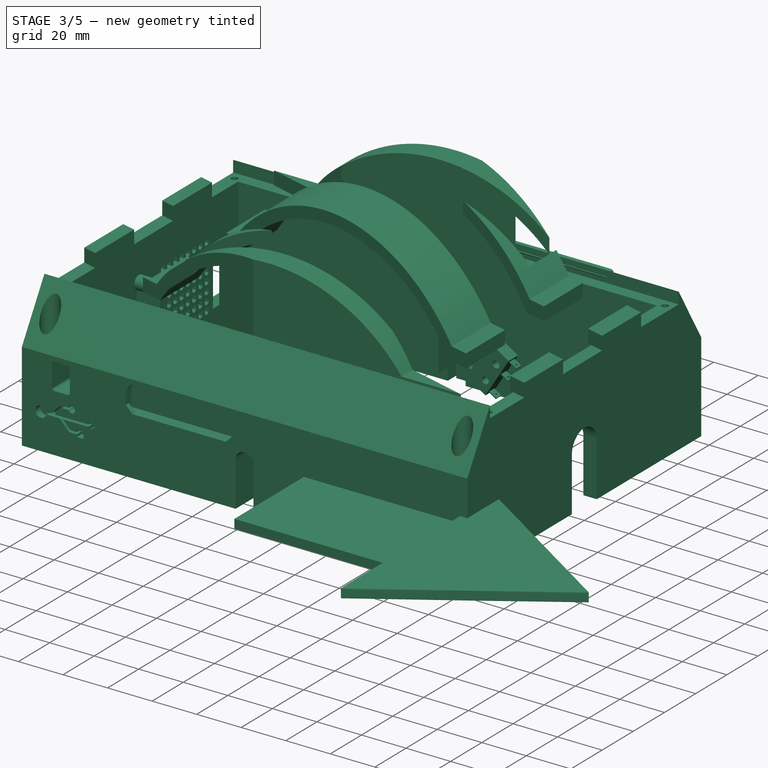
[diagram: stage 3 of 5 — iso view after this stage's code; geometry added in this stage tinted green]
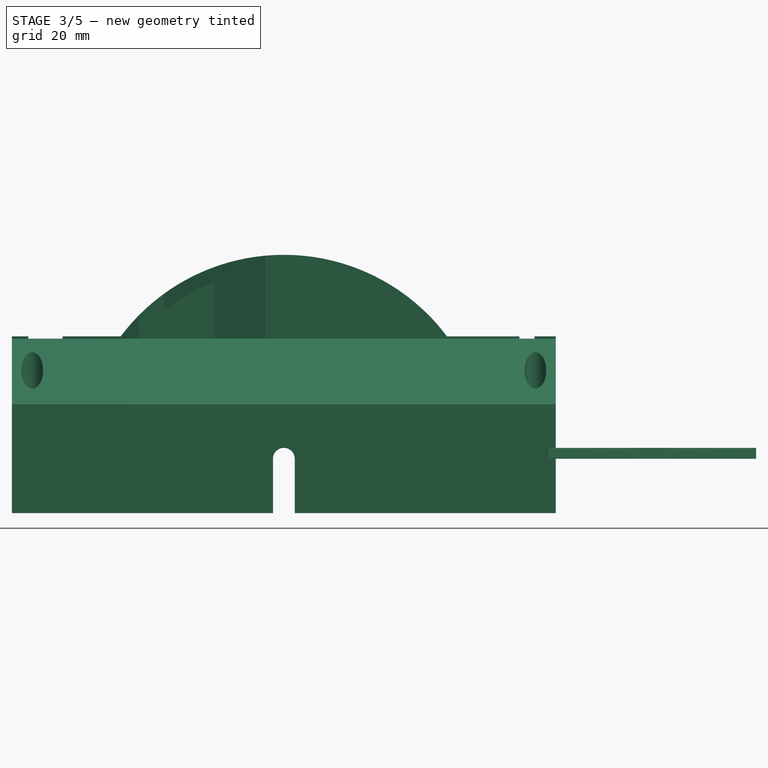
[diagram: stage 3 of 5 — front view after this stage's code; geometry added in this stage tinted green]
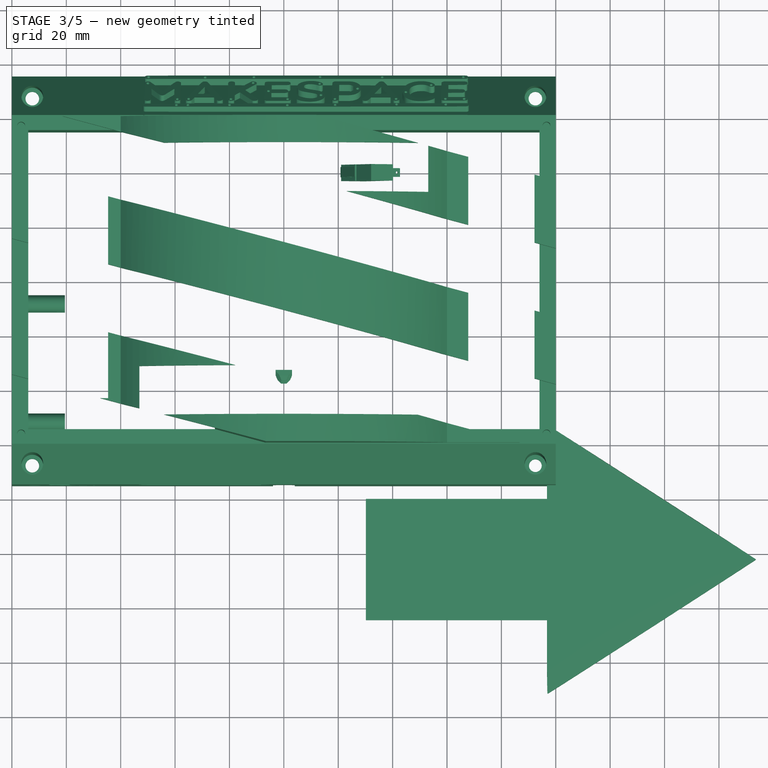
[diagram: stage 3 of 5 — top view after this stage's code; geometry added in this stage tinted green]
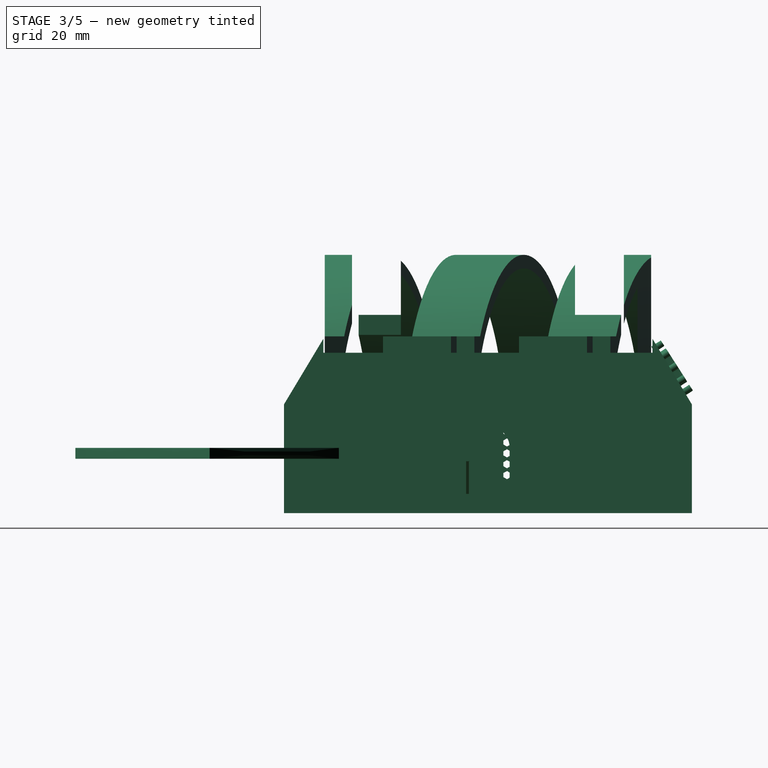
[diagram: stage 3 of 5 — right view after this stage's code; geometry added in this stage tinted green]
FEATURE [Sketcher::SketchObject] Sketch014
  ExternalGeometry = -> [Pocket006]
  Placement = pos=(0,0,-14.5) rot=(1,0,0;3.14159rad)
  Support = -> Pocket006 [Face20]
  sketch-geometry (10):
    g0: Circle CenterX=-90.75 CenterY=2.25 CenterZ=0 NormalX=0 NormalY=0 NormalZ=1 Radius=1.6
    g1: Circle CenterX=-90.75 CenterY=117.75 CenterZ=0 NormalX=0 NormalY=0 NormalZ=1 Radius=1.6
    g2: Circle CenterX=90.75 CenterY=117.75 CenterZ=0 NormalX=0 NormalY=0 NormalZ=1 Radius=1.6
    g3: Circle CenterX=90.75 CenterY=2.25 CenterZ=0 NormalX=0 NormalY=0 NormalZ=1 Radius=1.6
    g4: LineSegment StartX=-93.75 StartY=120.75 StartZ=0 EndX=93.75 EndY=120.75 EndZ=0
    g5: LineSegment StartX=93.75 StartY=120.75 StartZ=0 EndX=93.75 EndY=-0.75 EndZ=0
    g6: LineSegment StartX=93.75 StartY=-0.75 StartZ=0 EndX=-93.75 EndY=-0.75 EndZ=0
    g7: LineSegment StartX=-93.75 StartY=-0.75 StartZ=0 EndX=-93.75 EndY=120.75 EndZ=0
    g8: Circle [constr] CenterX=90.75 CenterY=2.25 CenterZ=0 NormalX=0 NormalY=0 NormalZ=1 Radius=3
    g9: Circle [constr] CenterX=-90.75 CenterY=117.75 CenterZ=0 NormalX=0 NormalY=0 NormalZ=1 Radius=3
  constraints (24):
    c: Coincident(g0,g-6)
    c: Coincident(g1,g-5)
    c: Coincident(g2,g-4)
    c: Coincident(g3,g-3)
    c: Radius(g3) = 1.6
    c: Equal(g3,g2)
    c: Equal(g3,g1)
    c: Equal(g3,g0)
    c: Coincident(g4,g5)
    c: Coincident(g5,g6)
    c: Coincident(g6,g7)
    c: Coincident(g7,g4)
    c: Horizontal(g4)
    c: Horizontal(g6)
    c: Vertical(g5)
    c: Vertical(g7)
    c: Coincident(g8,g3)
    c: Tangent(g8,g5)
    c: Tangent(g6,g8)
    c: Coincident(g1,g9)
    c: Tangent(g7,g9)
    c: Tangent(g9,g4)
    c: Equal(g9,g8)
    c: Radius(g8) = 3
FEATURE [Part::Extrusion] Extrude_Sketch014  label="Sketch014_Extrude"
  Base = -> Sketch014
  Dir = (0,0,-5)
  Placement = pos=(0,0,-0.5) rot=(0,0,1;0rad)
  Solid = true
FEATURE [App::DocumentObjectGroup] Grupo004  label="Anclajes"
  Group = -> [Extrude_Sketch009001]
FEATURE [Sketcher::SketchObject] Sketch015
  ExternalGeometry = -> [Extrude_Sketch014]
  Placement = pos=(0,0,-20) rot=(1,0,0;3.14159rad)
  Support = -> Extrude_Sketch014 [Face10]
  sketch-geometry (4):
    g0: Circle CenterX=-90.75 CenterY=117.75 CenterZ=0 NormalX=0 NormalY=0 NormalZ=1 Radius=4.24264
    g1: Circle CenterX=-90.75 CenterY=2.25 CenterZ=0 NormalX=0 NormalY=0 NormalZ=1 Radius=4.24264
    g2: Circle CenterX=90.75 CenterY=2.25 CenterZ=0 NormalX=0 NormalY=0 NormalZ=1 Radius=4.24264
    g3: Circle CenterX=90.75 CenterY=117.75 CenterZ=0 NormalX=0 NormalY=0 NormalZ=1 Radius=4.24264
  constraints (8):
    c: Coincident(g0,g-10)
    c: PointOnObject(g-7,g0)
    c: Coincident(g1,g-5)
    c: PointOnObject(g-9,g1)
    c: Coincident(g2,g-4)
    c: PointOnObject(g-9,g2)
    c: PointOnObject(g-8,g3)
    c: Coincident(g3,g-3)
FEATURE [PartDesign::Pocket] Pocket007
  Length = 3.2
  Placement = pos=(0,0,-0.5) rot=(0,0,1;0rad)
  Sketch = -> Sketch015
  Type = 0
FEATURE [Sketcher::SketchObject] Sketch016
  ExternalGeometry = -> [Pocket007]
  Placement = pos=(0,0,-15) rot=(0,0,1;0rad)
  Support = -> Pocket007 [Face2]
  sketch-geometry (7):
    g0: LineSegment StartX=10 StartY=-26.75 StartZ=0 EndX=-10 EndY=-26.75 EndZ=0
    g1: LineSegment StartX=-10 StartY=-26.75 StartZ=0 EndX=-10 EndY=-93.25 EndZ=0
    g2: LineSegment StartX=-10 StartY=-93.25 StartZ=0 EndX=10 EndY=-93.25 EndZ=0
    g3: LineSegment StartX=10 StartY=-93.25 StartZ=0 EndX=10 EndY=-26.75 EndZ=0
    g4: LineSegment [constr] StartX=-10 StartY=-26.75 StartZ=0 EndX=-93.75 EndY=0.75 EndZ=0
    g5: LineSegment [constr] StartX=-93.75 StartY=-120.75 StartZ=0 EndX=-10 EndY=-93.25 EndZ=0
    g6: LineSegment [constr] StartX=10 StartY=-93.25 StartZ=0 EndX=93.75 EndY=-120.75 EndZ=0
  constraints (18):
    c: Coincident(g0,g1)
    c: Coincident(g1,g2)
    c: Coincident(g2,g3)
    c: Coincident(g3,g0)
    c: Horizontal(g0)
    c: Horizontal(g2)
    c: Vertical(g1)
    c: Vertical(g3)
    c: Coincident(g4,g0)
    c: Coincident(g4,g-4)
    c: Coincident(g5,g-5)
    c: Coincident(g5,g1)
    c: Coincident(g6,g2)
    c: Coincident(g6,g-6)
    c: Equal(g6,g5)
    c: Equal(g5,g4)
    c: Distance(g0) = 20
    c: Distance(g1) = 66.5
FEATURE [PartDesign::Pad] Pad004
  Length = 60
  Length2 = 100
  Placement = pos=(0,0,-0.5) rot=(0,0,1;0rad)
  Sketch = -> Sketch016
  Type = 0
FEATURE [Sketcher::SketchObject] Sketch017
  ExternalGeometry = -> [Pad004]
  Placement = pos=(0,-93.25,-0.5) rot=(1,0,0;1.5708rad)
  Support = -> Pad004 [Face16]
  sketch-geometry (6):
    g0: LineSegment StartX=-3 StartY=40.6561 StartZ=0 EndX=3 EndY=40.6561 EndZ=0
    g1: LineSegment StartX=3 StartY=40.6561 StartZ=0 EndX=3 EndY=34.6561 EndZ=0
    g2: LineSegment StartX=3 StartY=34.6561 StartZ=0 EndX=-3 EndY=34.6561 EndZ=0
    g3: LineSegment StartX=-3 StartY=34.6561 StartZ=0 EndX=-3 EndY=40.6561 EndZ=0
    g4: LineSegment [constr] StartX=10 StartY=45.5 StartZ=0 EndX=3 EndY=40.6561 EndZ=0
    g5: LineSegment [constr] StartX=-3 StartY=40.6561 StartZ=0 EndX=-10 EndY=45.5 EndZ=0
  constraints (15):
    c: Coincident(g0,g1)
    c: Coincident(g1,g2)
    c: Coincident(g2,g3)
    c: Coincident(g3,g0)
    c: Horizontal(g0)
    c: Horizontal(g2)
    c: Vertical(g1)
    c: Vertical(g3)
    c: Equal(g0,g1)
    c: Distance(g0) = 6
    c: Coincident(g4,g-4)
    c: Coincident(g4,g0)
    c: Coincident(g5,g0)
    c: Coincident(g5,g-4)
    c: Equal(g4,g5)
FEATURE [Part::Extrusion] Extrude_Sketch017  label="Sketch017_Extrude"
  Base = -> Sketch017
  Dir = (0,-5,0)
  Solid = true
FEATURE [PartDesign::Chamfer] Chamfer003
  Base = -> Extrude_Sketch017 [Edge4,Edge7,Edge10,Edge12]
  Size = 2
FEATURE [PartDesign::Chamfer] Chamfer004
  Base = -> Chamfer003 [Edge6,Edge2,Edge15,Edge13]
  Size = 1
FEATURE [PartDesign::Chamfer] Chamfer005
  Base = -> Chamfer004 [Edge8,Edge16,Edge10,Edge22]
  Size = 1.3
FEATURE [Part::FeaturePython] Clone053  label="Clone of SIRIUS_lite_remake041"  # WARN: FeaturePython — macro-defined, semantics opaque (R4)
  Placement = pos=(-209.64,45.7529,-229.541) rot=(0,0,1;0rad)
  Scale = (1,1,1)
FEATURE [Part::FeaturePython] Clone054  label="Clone of SIRIUS_lite_remake042"  # WARN: FeaturePython — macro-defined, semantics opaque (R4)
  Placement = pos=(-209.64,45.7529,-229.541) rot=(0,0,1;0rad)
  Scale = (1,1,1)
FEATURE [Part::MultiFuse] Fusion003  label="endstop"
  Placement = pos=(4.3,0,27) rot=(0.926702,0.265728,-0.265728;1.64685rad)
  Shapes = -> [Clone054,Clone053]
FEATURE [Part::Feature] Clone001001  label="makespace"
  Placement = pos=(0,50,0) rot=(0,0,1;0rad)
  shape: bbox 161.2 x 63.04 x 4 mm, 369 faces, 11 solids (baked)
FEATURE [Part::FeaturePython] Clone001002  label="Clone of makespace"  # Draft clone (typed FeaturePython)
  Objects = -> [Clone001001]
  Placement = pos=(-48,-79.2178,101.656) rot=(0.973535,0.110982,-0.199781;1.02331rad)
  Scale = (0.75,0.75,1)
FEATURE [Part::Mirroring] Part__Mirroring  label="Clone of makespace (Mirror #1)"
  Base = (0,0,0)
  Normal = (0,0,1)
  Placement = pos=(0,134,65) rot=(0,0,1;0rad)
  Source = -> Clone001002
FEATURE [Sketcher::SketchObject] Sketch051
  ExternalGeometry = -> [Cut019]
  Placement = pos=(100,0,0) rot=(0.57735,0.57735,0.57735;2.0944rad)
  Support = -> Cut019 [Face22]
  sketch-geometry (4):
    g0: LineSegment StartX=15 StartY=20 StartZ=0 EndX=-135 EndY=20 EndZ=0
    g1: LineSegment StartX=-135 StartY=20 StartZ=0 EndX=-135 EndY=-20 EndZ=0
    g2: LineSegment StartX=-135 StartY=-20 StartZ=0 EndX=15 EndY=-20 EndZ=0
    g3: LineSegment StartX=15 StartY=-20 StartZ=0 EndX=15 EndY=20 EndZ=0
  constraints (10):
    c: Coincident(g0,g1)
    c: Coincident(g1,g2)
    c: Coincident(g2,g3)
    c: Coincident(g3,g0)
    c: Horizontal(g0)
    c: Horizontal(g2)
    c: Vertical(g1)
    c: Vertical(g3)
    c: Coincident(g0,g-3)
    c: Coincident(g1,g-4)
FEATURE [App::DocumentObjectGroup] Grupo002  label="Cuerpo"
  Group = -> [Cut,Cut001,Pad,Pad001,Pocket,Pad002,Pocket001,Sketch009,Sketch010,Pocket004,Pocket002,Pocket005,Pocket006,Sketch035,Fusion009004,Pocket012,Groove,Pocket013,Pocket014,Chamfer013,Chamfer014,Pocket015,Cut014,Pocket017,Cut019,Sketch051]
FEATURE [Part::FeaturePython] Clone001008  label="Clone of Cut019"  # Draft clone (typed FeaturePython)
  Objects = -> [Cut019]
  Scale = (1,1,1)
FEATURE [Part::FeaturePython] Clone001012  label="Clone of Sketch052_Extrude"  # Draft clone (typed FeaturePython)
  Objects = -> [Extrude_Sketch052]
  Placement = pos=(0,0,-66) rot=(0,0,1;0rad)
  Scale = (1,1,1)
FEATURE [Part::Cut] Cut020
  Base = -> Clone001008
  Tool = -> Clone001012
FEATURE [Part::Extrusion] Extrude_path2996  label="flecha"
  Dir = (0,0,4)
  Solid = true
FEATURE [Part::FeaturePython] Clone001016  label="Clone of Sketch056_Extrude"  # Draft clone (typed FeaturePython)
  Objects = -> [Extrude_Sketch056]
  Scale = (1,1,1)
FEATURE [Part::FeaturePython] Clone001017  label="Clone of Sketch056_Extrude001"  # Draft clone (typed FeaturePython)
  Objects = -> [Extrude_Sketch056]
  Scale = (1,1,1)
FEATURE [Part::FeaturePython] Clone001018  label="Clone of Sketch056_Extrude002"  # Draft clone (typed FeaturePython)
  Objects = -> [Extrude_Sketch056]
  Scale = (1,1,1)
FEATURE [App::DocumentObjectGroup] Grupo016
FEATURE [App::DocumentObjectGroup] Grupo011  label="logos"
  Group = -> [Clone001004,Clone001005,Clone001006,Clone001007,Grupo016]
FEATURE [App::DocumentObjectGroup] Grupo017  label="Entero-Dual"
  Group = -> [Cut021,Cut020]
FEATURE [Part::FeaturePython] Clone001019  label="Clone of Cut021"  # Draft clone (typed FeaturePython)
  Objects = -> [Cut021]
  Scale = (1,1,1)
FEATURE [Part::FeaturePython] Clone001020  label="Clone of Cut022"  # Draft clone (typed FeaturePython)
  Objects = -> [Cut020]
  Scale = (1,1,1)
FEATURE [Part::FeaturePython] Clone001022  label="Clone of Cut024"  # Draft clone (typed FeaturePython)
  Objects = -> [Cut020]
  Scale = (1,1,1)
FEATURE [Part::Cut] Cut023
  Base = -> Clone001019
  Tool = -> Clone001017
FEATURE [Part::Cut] Cut024
  Base = -> Clone001020
  Tool = -> Clone001018
FEATURE [Part::MultiCommon] Common002
  Shapes = -> [Clone001022,Clone001016]
FEATURE [Sketcher::SketchObject] Sketch057
  ExternalGeometry = -> [Cut023]
  Placement = pos=(0,0,39) rot=(0,0,1;0rad)
  Support = -> Cut023 [Face23]
  sketch-geometry (6):
    g0: LineSegment StartX=100 StartY=0.5 StartZ=0 EndX=-100 EndY=0.5 EndZ=0
    g1: LineSegment StartX=-100 StartY=0.5 StartZ=0 EndX=-100 EndY=-120.5 EndZ=0
    g2: LineSegment StartX=-100 StartY=-120.5 StartZ=0 EndX=100 EndY=-120.5 EndZ=0
    g3: LineSegment StartX=100 StartY=-120.5 StartZ=0 EndX=100 EndY=0.5 EndZ=0
    g4: LineSegment [constr] StartX=100 StartY=-120 StartZ=0 EndX=100 EndY=-120.5 EndZ=0
    g5: LineSegment [constr] StartX=100 StartY=0 StartZ=0 EndX=100 EndY=0.5 EndZ=0
  constraints (16):
    c: Coincident(g0,g1)
    c: Coincident(g1,g2)
    c: Coincident(g2,g3)
    c: Coincident(g3,g0)
    c: Horizontal(g0)
    c: Horizontal(g2)
    c: Vertical(g1)
    c: Vertical(g3)
    c: PointOnObject(g-3,g1)
    c: PointOnObject(g-5,g3)
    c: Coincident(g4,g-7)
    c: Coincident(g5,g-6)
    c: Equal(g5,g4)
    c: Coincident(g0,g5)
    c: Coincident(g2,g4)
    c: Distance(g4,g2) = 0.5
FEATURE [Part::Extrusion] Extrude_Sketch057  label="Sketch057_Extrude"
  Base = -> Sketch057
  Dir = (0,0,10)
  Solid = true
FEATURE [Part::FeaturePython] Clone001023  label="Clone of Sketch057_Extrude"  # Draft clone (typed FeaturePython)
  Objects = -> [Extrude_Sketch057]
  Scale = (1,1,1)
FEATURE [Part::Cut] Cut025
  Base = -> Cut023
  Tool = -> Extrude_Sketch057
FEATURE [Part::Cut] Cut026
  Base = -> Cut024
  Tool = -> Clone001023
FEATURE [Part::Cut] Cut027
  Base = -> Common001
  Tool = -> Extrude_Sketch058
FEATURE [Sketcher::SketchObject] Sketch059
  ExternalGeometry = -> [Cut027]
  Placement = pos=(0,0,41.5) rot=(0,0,1;0rad)
  Support = -> Cut027 [Face22]
  sketch-geometry (8):
    g0: LineSegment [constr] StartX=96.6 StartY=-116.6 StartZ=0 EndX=-96.6 EndY=-116.6 EndZ=0
    g1: LineSegment [constr] StartX=-96.6 StartY=-116.6 StartZ=0 EndX=-96.6 EndY=-3.4 EndZ=0
    g2: LineSegment [constr] StartX=-96.6 StartY=-3.4 StartZ=0 EndX=96.6 EndY=-3.4 EndZ=0
    g3: LineSegment [constr] StartX=96.6 StartY=-3.4 StartZ=0 EndX=96.6 EndY=-116.6 EndZ=0
    g4: Circle CenterX=-96.6 CenterY=-3.4 CenterZ=0 NormalX=0 NormalY=0 NormalZ=1 Radius=1.65
    g5: Circle CenterX=-96.6 CenterY=-116.6 CenterZ=0 NormalX=0 NormalY=0 NormalZ=1 Radius=1.65
    g6: Circle CenterX=96.6 CenterY=-116.6 CenterZ=0 NormalX=0 NormalY=0 NormalZ=1 Radius=1.65
    g7: Circle CenterX=96.6 CenterY=-3.4 CenterZ=0 NormalX=0 NormalY=0 NormalZ=1 Radius=1.65
  constraints (18):
    c: Coincident(g0,g1)
    c: Coincident(g1,g2)
    c: Coincident(g2,g3)
    c: Coincident(g3,g0)
    c: Horizontal(g0)
    c: Horizontal(g2)
    c: Vertical(g1)
    c: Vertical(g3)
    c: Coincident(g0,g-3)
    c: Coincident(g1,g-4)
    c: Coincident(g4,g1)
    c: Coincident(g5,g0)
    c: Coincident(g6,g0)
    c: Coincident(g7,g2)
    c: Radius(g7) = 1.65
    c: Equal(g7,g6)
    c: Equal(g7,g5)
    c: Equal(g7,g4)
FEATURE [Part::Extrusion] Extrude_Sketch059  label="Sketch059_Extrude"
  Base = -> Sketch059
  Dir = (0,0,-4)
  Solid = true
FEATURE [Part::Cut] Cut028
  Base = -> Cut027
  Tool = -> Extrude_Sketch059
FEATURE [Sketcher::SketchObject] Sketch060
  ExternalGeometry = -> [Cut028]
  Placement = pos=(0,0,39) rot=(1,0,0;3.14159rad)
  Support = -> Cut028 [Face32]
  sketch-geometry (4):
    g0: Circle CenterX=-96.6 CenterY=3.4 CenterZ=0 NormalX=0 NormalY=0 NormalZ=1 Radius=1.45
    g1: Circle CenterX=-96.6 CenterY=116.6 CenterZ=0 NormalX=0 NormalY=0 NormalZ=1 Radius=1.45
    g2: Circle CenterX=96.6 CenterY=116.6 CenterZ=0 NormalX=0 NormalY=0 NormalZ=1 Radius=1.45
    g3: Circle CenterX=96.6 CenterY=3.4 CenterZ=0 NormalX=0 NormalY=0 NormalZ=1 Radius=1.45
  constraints (8):
    c: Coincident(g0,g-6)
    c: Coincident(g1,g-5)
    c: Coincident(g2,g-4)
    c: Coincident(g3,g-3)
    c: Radius(g3) = 1.45
    c: Equal(g3,g2)
    c: Equal(g3,g1)
    c: Equal(g3,g0)
FEATURE [App::DocumentObjectGroup] Grupo015  label="mitad-superior"
  Group = -> [Common002,Sketch058,Sketch059,Cut028,Sketch060]
FEATURE [Part::Extrusion] Extrude_Sketch060  label="Sketch060_Extrude"
  Base = -> Sketch060
  Dir = (0,0,-15)
  Solid = true
FEATURE [Part::Cut] Cut029
  Base = -> Cut025
  Tool = -> Extrude_Sketch060
FEATURE [App::DocumentObjectGroup] Grupo014  label="mitad-inferior"
  Group = -> [Sketch057,Cut026,Cut029]
FEATURE [App::DocumentObjectGroup] Grupo010  label="DualColor"
  Group = -> [Grupo011,Sketch056,Grupo014,Grupo015,Grupo017]
note: 2 file-system paths scrubbed to <path> (originals preserved in the JSON sidecar)
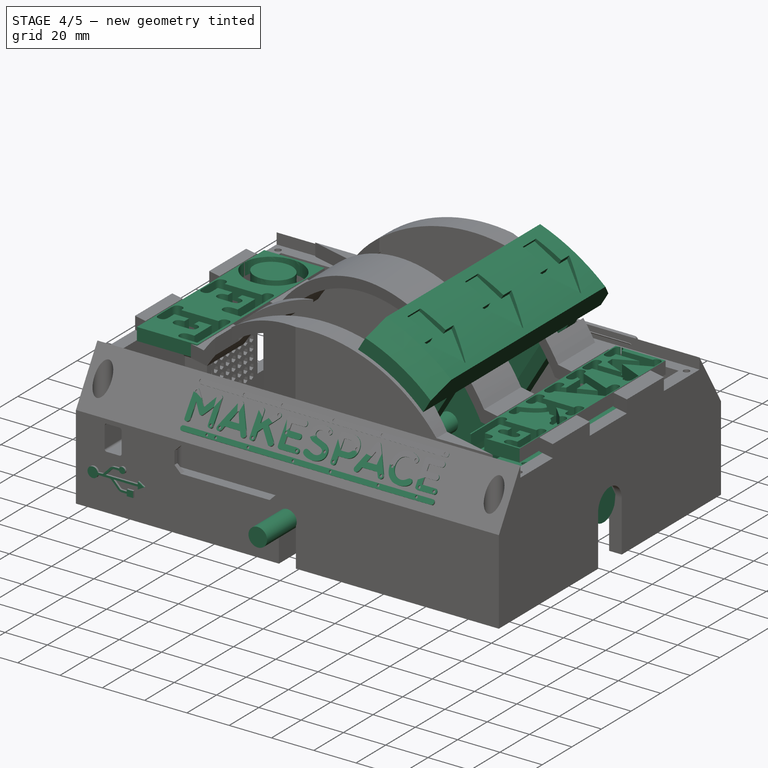
[diagram: stage 4 of 5 — iso view after this stage's code; geometry added in this stage tinted green]
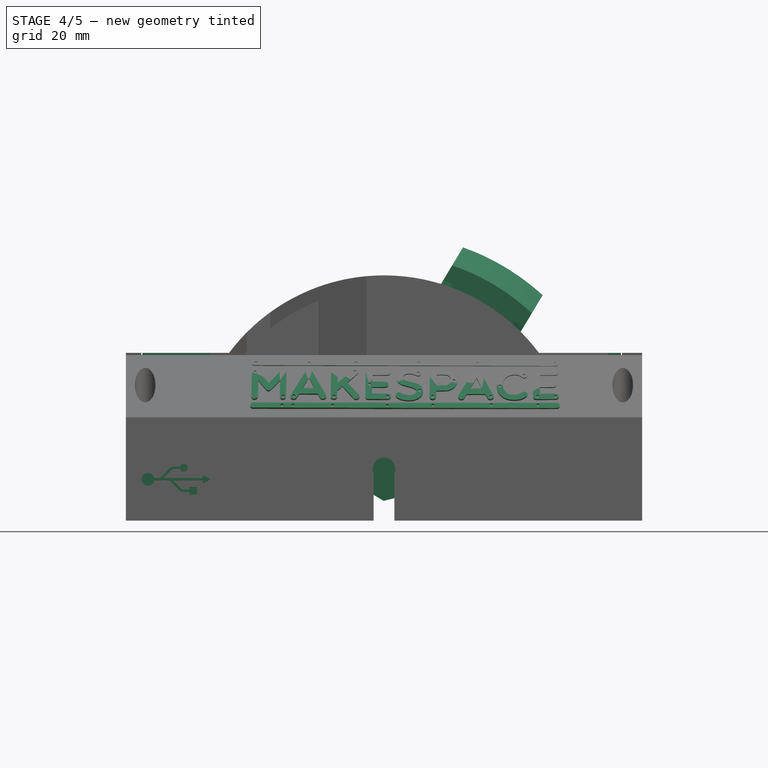
[diagram: stage 4 of 5 — front view after this stage's code; geometry added in this stage tinted green]
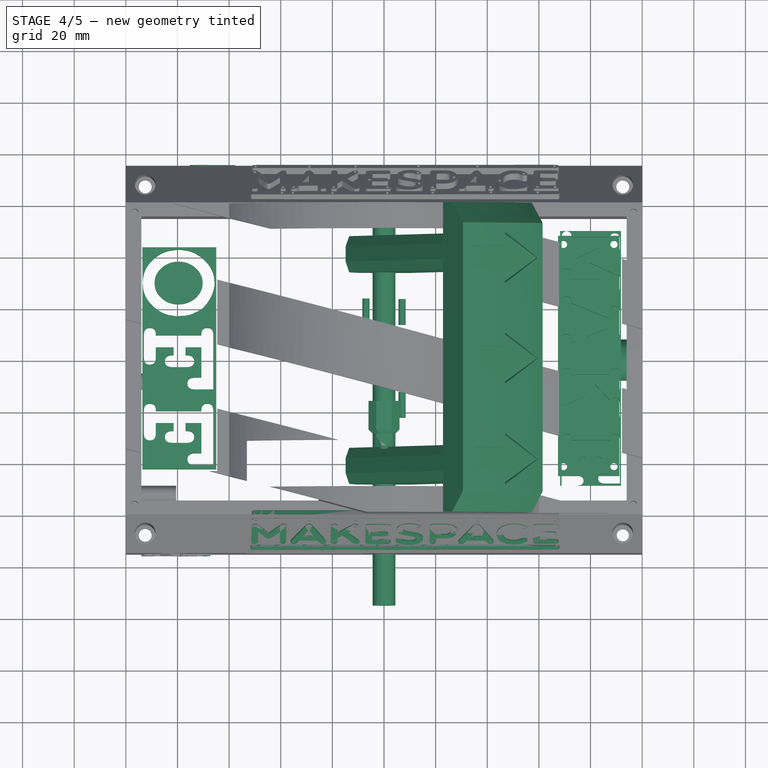
[diagram: stage 4 of 5 — top view after this stage's code; geometry added in this stage tinted green]
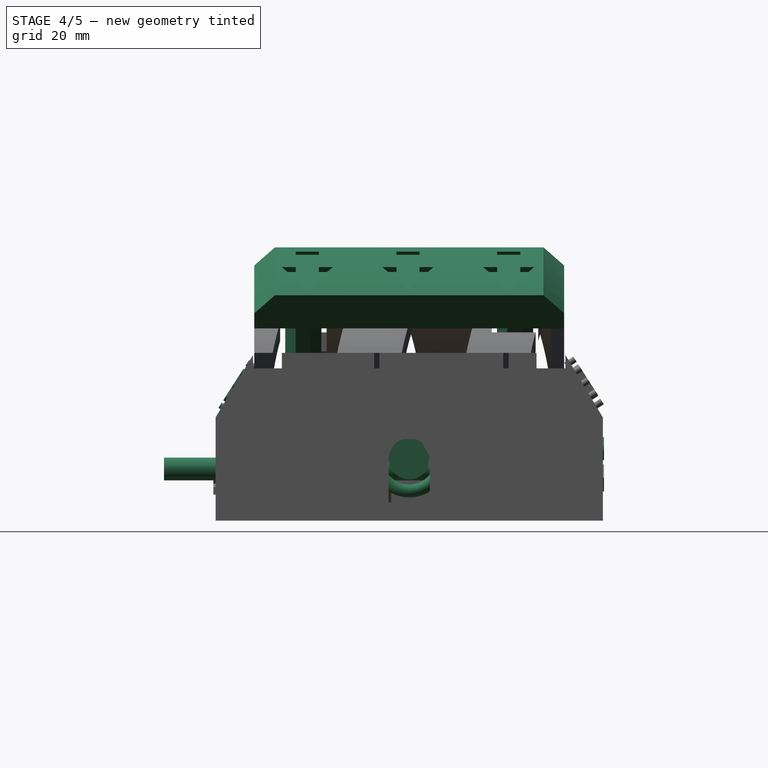
[diagram: stage 4 of 5 — right view after this stage's code; geometry added in this stage tinted green]
FEATURE [Sketcher::SketchObject] Sketch006
  ExternalGeometry = -> [Pocket002]
  Placement = pos=(0,-120,0) rot=(1,0,0;1.5708rad)
  Support = -> Pocket002 [Face19]
  sketch-geometry (6):
    g0: ArcOfCircle CenterX=0 CenterY=0 CenterZ=0 NormalX=0 NormalY=0 NormalZ=1 Radius=76.5 StartAngle=1.33328 EndAngle=1.80832
    g1: ArcOfCircle CenterX=0 CenterY=0 CenterZ=0 NormalX=0 NormalY=0 NormalZ=1 Radius=91.1472 StartAngle=1.37201 EndAngle=1.76959
    g2: LineSegment StartX=18 StartY=89.3522 StartZ=0 EndX=18 EndY=74.3522 EndZ=0
    g3: LineSegment StartX=-18 StartY=89.3522 StartZ=0 EndX=-18 EndY=74.3522 EndZ=0
    g4: LineSegment [constr] StartX=-18 StartY=74.3522 StartZ=0 EndX=0 EndY=74.3522 EndZ=0
    g5: LineSegment [constr] StartX=0 StartY=74.3522 StartZ=0 EndX=18 EndY=74.3522 EndZ=0
  constraints (19):
    c: Coincident(g0,g-1)
    c: Coincident(g1,g-1)
    c: Coincident(g2,g1)
    c: Coincident(g2,g0)
    c: Coincident(g3,g1)
    c: Coincident(g3,g0)
    c: Vertical(g3)
    c: Vertical(g2)
    c: Coincident(g0,g4)
    c: Coincident(g4,g5)
    c: Coincident(g5,g0)
    c: Horizontal(g5)
    c: Equal(g5,g4)
    c: PointOnObject(g4,g-2)
    c: Radius(g-3) = 75
    c: Radius(g-3) = 75
    c: Radius(g0) = 76.5
    c: Distance(g2) = 15
    c: Distance(g1,g1) = 36
FEATURE [Part::Extrusion] Extrude_Sketch006001  label="Sketch006_Extrude001"
  Base = -> Sketch006
  Dir = (0,120,0)
  Solid = true
FEATURE [Sketcher::SketchObject] Sketch007
  ExternalGeometry = -> [Extrude_Sketch006001]
  Placement = pos=(18,0,0) rot=(0.57735,0.57735,0.57735;2.0944rad)
  Support = -> Extrude_Sketch006001 [Face1]
  sketch-geometry (14):
    g0: LineSegment [constr] StartX=-120 StartY=74.3522 StartZ=0 EndX=-108 EndY=74.3522 EndZ=0
    g1: LineSegment [constr] StartX=0 StartY=74.3522 StartZ=0 EndX=-12 EndY=74.3522 EndZ=0
    g2: LineSegment StartX=-94 StartY=74.3522 StartZ=0 EndX=-94 EndY=-10.6478 EndZ=0
    g3: LineSegment StartX=-94 StartY=-10.6478 StartZ=0 EndX=-108 EndY=-10.6478 EndZ=0
    g4: LineSegment StartX=-108 StartY=-10.6478 StartZ=0 EndX=-108 EndY=74.3522 EndZ=0
    g5: LineSegment StartX=-26 StartY=74.3522 StartZ=0 EndX=-26 EndY=-10.6478 EndZ=0
    g6: LineSegment StartX=-26 StartY=-10.6478 StartZ=0 EndX=-12 EndY=-10.6478 EndZ=0
    g7: LineSegment StartX=-12 StartY=-10.6478 StartZ=0 EndX=-12 EndY=74.3522 EndZ=0
    g8: LineSegment StartX=-12 StartY=74.3522 StartZ=0 EndX=-12 EndY=79.3522 EndZ=0
    g9: LineSegment StartX=-12 StartY=79.3522 StartZ=0 EndX=-26 EndY=79.3522 EndZ=0
    g10: LineSegment StartX=-26 StartY=79.3522 StartZ=0 EndX=-26 EndY=74.3522 EndZ=0
    g11: LineSegment StartX=-108 StartY=74.3522 StartZ=0 EndX=-108 EndY=79.3522 EndZ=0
    g12: LineSegment StartX=-108 StartY=79.3522 StartZ=0 EndX=-94 EndY=79.3522 EndZ=0
    g13: LineSegment StartX=-94 StartY=79.3522 StartZ=0 EndX=-94 EndY=74.3522 EndZ=0
  constraints (40):
    c: Equal(g1,g0)
    c: Coincident(g2,g3)
    c: Coincident(g3,g4)
    c: Horizontal(g3)
    c: Vertical(g2)
    c: Vertical(g4)
    c: Coincident(g5,g6)
    c: Coincident(g6,g7)
    c: Horizontal(g6)
    c: Vertical(g5)
    c: Vertical(g7)
    c: Distance(g1) = 12
    c: Horizontal(g0)
    c: Horizontal(g1)
    c: Distance(g6) = 14
    c: Equal(g3,g6)
    c: Equal(g2,g5)
    c: Distance(g5) = 85
    c: Coincident(g1,g8)
    c: Vertical(g8)
    c: Coincident(g8,g9)
    c: Horizontal(g9)
    c: Coincident(g9,g10)
    c: Coincident(g10,g5)
    c: Vertical(g10)
    c: Distance(g10) = 5
    c: Coincident(g0,g11)
    c: Vertical(g11)
    c: Coincident(g11,g12)
    c: Horizontal(g12)
    c: Coincident(g12,g13)
    c: Coincident(g13,g2)
    c: Vertical(g13)
    c: Distance(g13) = 5
    c: Equal(g11,g13)
    c: Coincident(g0,g4)
    c: Equal(g8,g10)
    c: Coincident(g1,g-3)
    c: Coincident(g0,g-3)
    c: Coincident(g1,g7)
FEATURE [PartDesign::Pad] Pad003
  Length = 36
  Length2 = 100
  Reversed = true
  Sketch = -> Sketch007
  Type = 0
FEATURE [Part::Cylinder] Cylinder  label="Cilindro"
  Angle = 360
  Height = 154
  Placement = pos=(0,15,0) rot=(1,0,0;1.5708rad)
  Radius = 4.25
FEATURE [PartDesign::Chamfer] Chamfer
  Base = -> Pad003 [Edge31,Edge7,Edge10,Edge34,Edge30,Edge6,Edge9,Edge33]
  Size = 4
FEATURE [Sketcher::SketchObject] Sketch008
  ExternalGeometry = -> [Chamfer]
  Placement = pos=(0,-12,0) rot=(0,0.707107,0.707107;3.14159rad)
  Support = -> Chamfer [Face22]
  sketch-geometry (6):
    g0: LineSegment StartX=18 StartY=1.11723 StartZ=0 EndX=6.23497 EndY=-10.6478 EndZ=0
    g1: LineSegment StartX=6.23497 StartY=-10.6478 StartZ=0 EndX=-6.23497 EndY=-10.6478 EndZ=0
    g2: LineSegment StartX=-6.23497 StartY=-10.6478 StartZ=0 EndX=-18 EndY=1.11723 EndZ=0
    g3: LineSegment StartX=-18 StartY=1.11723 StartZ=0 EndX=-18 EndY=-13.8751 EndZ=0
    g4: LineSegment StartX=-18 StartY=-13.8751 StartZ=0 EndX=18 EndY=-13.8751 EndZ=0
    g5: LineSegment StartX=18 StartY=-13.8751 StartZ=0 EndX=18 EndY=1.11723 EndZ=0
  constraints (16):
    c: PointOnObject(g0,g-4)
    c: PointOnObject(g0,g-3)
    c: Coincident(g0,g1)
    c: PointOnObject(g1,g-3)
    c: Coincident(g1,g2)
    c: PointOnObject(g2,g-5)
    c: Coincident(g2,g3)
    c: Vertical(g3)
    c: Coincident(g3,g4)
    c: Horizontal(g4)
    c: Coincident(g4,g5)
    c: Coincident(g5,g0)
    c: Vertical(g5)
    c: Equal(g2,g0)
    c: Equal(g3,g5)
    c: Angle(g3,g2) = 0.785398
FEATURE [PartDesign::Pocket] Pocket003
  Length = 5
  Sketch = -> Sketch008
  Type = 1
FEATURE [Part::Cut] Cut002
  Base = -> Pocket003
  Placement = pos=(0,0,0) rot=(0,1,0;0.541052rad)
  Tool = -> Cylinder
FEATURE [PartDesign::Chamfer] Chamfer001
  Base = -> Cut002 [Edge73,Edge72]
  Placement = pos=(0,0,0) rot=(0,1,0;0.541052rad)
  Size = 8
FEATURE [Part::FeaturePython] Clone009  label="Clone of Chamfer005"  # Draft clone (typed FeaturePython)
  Objects = -> [Chamfer005]
  Placement = pos=(0,3.4,-5.8) rot=(0,0,1;0rad)
  Scale = (1,1,1)
FEATURE [Sketcher::SketchObject] Sketch021
  ExternalGeometry = -> [Clone009]
  Placement = pos=(0,-89.85,-5.8) rot=(0,0.707107,0.707107;3.14159rad)
  Support = -> Clone009 [Face4]
  sketch-geometry (6):
    g0: LineSegment StartX=6 StartY=43.1561 StartZ=0 EndX=-6 EndY=43.1561 EndZ=0
    g1: LineSegment StartX=-6 StartY=43.1561 StartZ=0 EndX=-6 EndY=31.1561 EndZ=0
    g2: LineSegment StartX=-6 StartY=31.1561 StartZ=0 EndX=6 EndY=31.1561 EndZ=0
    g3: LineSegment StartX=6 StartY=31.1561 StartZ=0 EndX=6 EndY=43.1561 EndZ=0
    g4: LineSegment [constr] StartX=6 StartY=43.1561 StartZ=0 EndX=3 EndY=40.1561 EndZ=0
    g5: LineSegment [constr] StartX=-3 StartY=34.1561 StartZ=0 EndX=-6 EndY=31.1561 EndZ=0
  constraints (16):
    c: Coincident(g0,g1)
    c: Coincident(g1,g2)
    c: Coincident(g2,g3)
    c: Coincident(g3,g0)
    c: Horizontal(g0)
    c: Horizontal(g2)
    c: Vertical(g1)
    c: Vertical(g3)
    c: Coincident(g4,g0)
    c: Coincident(g4,g-3)
    c: Coincident(g5,g-4)
    c: Coincident(g5,g1)
    c: Equal(g4,g5)
    c: Equal(g2,g1)
    c: Distance(g2) = 12
    c: Parallel(g4,g5)
FEATURE [PartDesign::Pad] Pad005
  Length = 16
  Length2 = 100
  Placement = pos=(0,3.4,-5.8) rot=(0,0,1;0rad)
  Sketch = -> Sketch021
  Type = 0
FEATURE [Sketcher::SketchObject] Sketch022
  ExternalGeometry = -> [Pad005]
  Placement = pos=(0,-73.85,-5.8) rot=(0,0.707107,0.707107;3.14159rad)
  Support = -> Pad005 [Face5]
  sketch-geometry (3):
    g0: LineSegment [constr] StartX=6 StartY=43.1561 StartZ=0 EndX=0 EndY=37.1561 EndZ=0
    g1: LineSegment [constr] StartX=0 StartY=37.1561 StartZ=0 EndX=-6 EndY=31.1561 EndZ=0
    g2: Circle CenterX=0 CenterY=37.1561 CenterZ=0 NormalX=0 NormalY=0 NormalZ=1 Radius=4.5
  constraints (7):
    c: Coincident(g-3,g0)
    c: Coincident(g0,g1)
    c: Coincident(g1,g-4)
    c: Coincident(g2,g0)
    c: Parallel(g0,g1)
    c: Equal(g0,g1)
    c: Radius(g2) = 4.5
FEATURE [PartDesign::Pocket] Pocket009
  Length = 14
  Placement = pos=(0,3.4,-5.8) rot=(0,0,1;0rad)
  Sketch = -> Sketch022
  Type = 0
FEATURE [PartDesign::Chamfer] Chamfer007
  Base = -> Pocket009 [Edge1,Edge5,Edge2,Edge8]
  Placement = pos=(0,3.4,-5.8) rot=(0,0,1;0rad)
  Size = 3
FEATURE [Part::Cylinder] Cylinder014  label="Cilindro013"
  Angle = 360
  Height = 10
  Placement = pos=(7,-72.75,26.0561) rot=(1,0,0;1.5708rad)
  Radius = 1.4
FEATURE [Part::Cylinder] Cylinder015  label="Cilindro014"
  Angle = 360
  Height = 10
  Placement = pos=(-7,-36.75,37.5) rot=(1,0,0;1.5708rad)
  Radius = 1.4
FEATURE [Part::Cylinder] Cylinder016  label="Cilindro015"
  Angle = 360
  Height = 10
  Placement = pos=(7,-36.75,26.0561) rot=(1,0,0;1.5708rad)
  Radius = 1.4
FEATURE [Part::Cylinder] Cylinder018  label="Cilindro017"
  Angle = 360
  Height = 150
  Placement = pos=(0,-5,0) rot=(1,0,0;1.5708rad)
  Radius = 4.4
FEATURE [Part::Cylinder] Cylinder019  label="Cilindro018"
  Angle = 360
  Height = 20
  Placement = pos=(77,-60,4) rot=(0,1,0;1.5708rad)
  Radius = 8
FEATURE [Part::Torus] Torus  label="Toro"
  Angle1 = -180
  Angle2 = 180
  Angle3 = 360
  Placement = pos=(84,-60,4) rot=(0,1,0;1.5708rad)
  Radius1 = 12.5
  Radius2 = 2.5
FEATURE [Part::MultiFuse] Fusion007
  Shapes = -> [Cylinder019,Torus]
FEATURE [Sketcher::SketchObject] Sketch049
  ExternalGeometry = -> [Cut016]
  Placement = pos=(0,0,35) rot=(1,0,0;3.14159rad)
  Support = -> Cut016 [Face5]
  sketch-geometry (8):
    g0: LineSegment StartX=91.1833 StartY=105.398 StartZ=0 EndX=67.4051 EndY=105.398 EndZ=0
    g1: LineSegment StartX=67.4051 StartY=105.398 StartZ=0 EndX=67.4051 EndY=12.3611 EndZ=0
    g2: LineSegment StartX=67.4051 StartY=12.3611 StartZ=0 EndX=91.1833 EndY=12.3611 EndZ=0
    g3: LineSegment StartX=91.1833 StartY=12.3611 StartZ=0 EndX=91.1833 EndY=105.398 EndZ=0
    g4: Circle CenterX=69.5289 CenterY=101.77 CenterZ=0 NormalX=0 NormalY=0 NormalZ=1 Radius=1.4
    g5: Circle CenterX=89.0861 CenterY=101.77 CenterZ=0 NormalX=0 NormalY=0 NormalZ=1 Radius=1.4
    g6: Circle CenterX=89.0861 CenterY=15.6912 CenterZ=0 NormalX=0 NormalY=0 NormalZ=1 Radius=1.4
    g7: Circle CenterX=69.5289 CenterY=15.6912 CenterZ=0 NormalX=0 NormalY=0 NormalZ=1 Radius=1.4
  constraints (16):
    c: Coincident(g0,g1)
    c: Coincident(g1,g2)
    c: Coincident(g2,g3)
    c: Coincident(g3,g0)
    c: Horizontal(g0)
    c: Horizontal(g2)
    c: Vertical(g1)
    c: Vertical(g3)
    c: Coincident(g4,g-4)
    c: Coincident(g5,g-3)
    c: Coincident(g6,g-6)
    c: Coincident(g7,g-5)
    c: Radius(g7) = 1.4
    c: Equal(g7,g6)
    c: Equal(g7,g4)
    c: Equal(g7,g5)
FEATURE [Part::Extrusion] Extrude_Sketch049  label="Sketch049_Extrude"
  Base = -> Sketch049
  Dir = (0,0,-5)
  Solid = true
FEATURE [Sketcher::SketchObject] Sketch050
  ExternalGeometry = -> [Extrude_Sketch049]
  Placement = pos=(0,-12.3611,0) rot=(0,0.707107,0.707107;3.14159rad)
  Support = -> Extrude_Sketch049 [Face3]
  sketch-geometry (6):
    g0: LineSegment StartX=-73.2942 StartY=35 StartZ=0 EndX=-85.2942 EndY=35 EndZ=0
    g1: LineSegment StartX=-85.2942 StartY=35 StartZ=0 EndX=-85.2942 EndY=31.5 EndZ=0
    g2: LineSegment StartX=-85.2942 StartY=31.5 StartZ=0 EndX=-73.2942 EndY=31.5 EndZ=0
    g3: LineSegment StartX=-73.2942 StartY=31.5 StartZ=0 EndX=-73.2942 EndY=35 EndZ=0
    g4: LineSegment [constr] StartX=-91.1833 StartY=35 StartZ=0 EndX=-85.2942 EndY=31.5 EndZ=0
    g5: LineSegment [constr] StartX=-73.2942 StartY=31.5 StartZ=0 EndX=-67.4051 EndY=35 EndZ=0
  constraints (16):
    c: Coincident(g0,g1)
    c: Coincident(g1,g2)
    c: Coincident(g2,g3)
    c: Coincident(g3,g0)
    c: Horizontal(g0)
    c: Horizontal(g2)
    c: Vertical(g1)
    c: Vertical(g3)
    c: PointOnObject(g0,g-3)
    c: Distance(g2) = 12
    c: Distance(g1) = 3.5
    c: Coincident(g4,g-3)
    c: Coincident(g4,g1)
    c: Coincident(g5,g2)
    c: Coincident(g5,g-3)
    c: Equal(g5,g4)
FEATURE [PartDesign::Pocket] Pocket019
  Length = 5
  Sketch = -> Sketch050
  Type = 1
FEATURE [Part::FeaturePython] Clone001003  label="Clone of Fusion009006"  # Draft clone (typed FeaturePython)
  Objects = -> [Fusion009006]
  Scale = (1,1,1)
FEATURE [Part::Cut] Cut017  label="negro"
  Base = -> Extrude_Sketch046
  Tool = -> Clone001003
FEATURE [Part::FeaturePython] Clone001004  label="Clone of Clone of makespace (Mirror #1)"  # Draft clone (typed FeaturePython)
  Objects = -> [Part__Mirroring]
  Placement = pos=(0,134,65) rot=(0,0,1;0rad)
  Scale = (1,1,1)
FEATURE [Part::FeaturePython] Clone001005  label="Clone of Clone of makespace"  # Draft clone (typed FeaturePython)
  Objects = -> [Clone001002]
  Placement = pos=(-48,-79.2178,101.656) rot=(0.973535,0.110982,-0.199781;1.02331rad)
  Scale = (1,1,1)
FEATURE [Part::FeaturePython] Clone001006  label="Clone of usb001"  # Draft clone (typed FeaturePython)
  Objects = -> [Clone057]
  Placement = pos=(-86.356,-131.86,57.972) rot=(1,0,0;1.5708rad)
  Scale = (1,1,1)
FEATURE [Part::FeaturePython] Clone001007  label="Clone of Clone of temperatura"  # Draft clone (typed FeaturePython)
  Objects = -> [Clone058]
  Placement = pos=(194.471,15.4774,88.4044) rot=(0.57735,0.57735,-0.57735;2.0944rad)
  Scale = (1,1,1)
FEATURE [Part::FeaturePython] Clone001013  label="Clone of flecha"  # Draft clone (typed FeaturePython)
  Objects = -> [Extrude_path2996]
  Placement = pos=(29,11,86) rot=(0,1,0;0.523599rad)
  Scale = (0.2,0.2,1)
FEATURE [Part::FeaturePython] Clone001014  label="Clone of Clone of flecha"  # Draft clone (typed FeaturePython)
  Objects = -> [Clone001013]
  Placement = pos=(29,-67,86) rot=(0,1,0;0.523599rad)
  Scale = (1,1,1)
FEATURE [Part::FeaturePython] Clone001015  label="Clone of Clone of flecha001"  # Draft clone (typed FeaturePython)
  Objects = -> [Clone001013]
  Placement = pos=(29,-28,86) rot=(0,1,0;0.523599rad)
  Scale = (1,1,1)
FEATURE [Part::MultiFuse] Fusion009007
  Shapes = -> [Clone001013,Clone001015,Clone001014]
FEATURE [Part::Cut] Cut022
  Base = -> Chamfer001
  Tool = -> Fusion009007
FEATURE [App::DocumentObjectGroup] Grupo001  label="Palanca"
  Group = -> [Extrude_Sketch006001,Pad003,Chamfer,Cut002,Cut022]
FEATURE [Sketcher::SketchObject] Sketch054
  ExternalGeometry = -> [Chamfer007]
  Placement = pos=(0,-89.85,-5.8) rot=(1,0,0;1.5708rad)
  Support = -> Chamfer007 [Face2]
  sketch-geometry (8):
    g0: LineSegment StartX=3 StartY=40.1561 StartZ=0 EndX=-3 EndY=40.1561 EndZ=0
    g1: LineSegment StartX=-3 StartY=40.1561 StartZ=0 EndX=-3 EndY=34.1561 EndZ=0
    g2: LineSegment StartX=-3 StartY=34.1561 StartZ=0 EndX=3 EndY=34.1561 EndZ=0
    g3: LineSegment StartX=3 StartY=34.1561 StartZ=0 EndX=3 EndY=40.1561 EndZ=0
    g4: LineSegment StartX=8.13916 StartY=43.6954 StartZ=0 EndX=-7.52389 EndY=43.6954 EndZ=0
    g5: LineSegment StartX=-7.52389 StartY=43.6954 StartZ=0 EndX=-7.52389 EndY=30.0385 EndZ=0
    g6: LineSegment StartX=-7.52389 StartY=30.0385 StartZ=0 EndX=8.13916 EndY=30.0385 EndZ=0
    g7: LineSegment StartX=8.13916 StartY=30.0385 StartZ=0 EndX=8.13916 EndY=43.6954 EndZ=0
  constraints (18):
    c: Coincident(g0,g1)
    c: Coincident(g1,g2)
    c: Coincident(g2,g3)
    c: Coincident(g3,g0)
    c: Horizontal(g0)
    c: Horizontal(g2)
    c: Vertical(g1)
    c: Vertical(g3)
    c: Coincident(g0,g-3)
    c: Coincident(g1,g-4)
    c: Coincident(g4,g5)
    c: Coincident(g5,g6)
    c: Coincident(g6,g7)
    c: Coincident(g7,g4)
    c: Horizontal(g4)
    c: Horizontal(g6)
    c: Vertical(g5)
    c: Vertical(g7)
FEATURE [PartDesign::Pocket] Pocket020
  Length = 1
  Placement = pos=(0,3.4,-5.8) rot=(0,0,1;0rad)
  Sketch = -> Sketch054
  Type = 0
FEATURE [Sketcher::SketchObject] Sketch055
  ExternalGeometry = -> [Pocket020]
  Placement = pos=(0,3.4,37.3561) rot=(0,0,1;0rad)
  Support = -> Pocket020 [Face1]
  sketch-geometry (4):
    g0: LineSegment StartX=7.64712 StartY=-77.25 StartZ=0 EndX=-10.765 EndY=-77.25 EndZ=0
    g1: LineSegment StartX=-10.765 StartY=-77.25 StartZ=0 EndX=-10.765 EndY=-79.75 EndZ=0
    g2: LineSegment StartX=-10.765 StartY=-79.75 StartZ=0 EndX=7.64712 EndY=-79.75 EndZ=0
    g3: LineSegment StartX=7.64712 StartY=-79.75 StartZ=0 EndX=7.64712 EndY=-77.25 EndZ=0
  constraints (10):
    c: Coincident(g0,g1)
    c: Coincident(g1,g2)
    c: Coincident(g2,g3)
    c: Coincident(g3,g0)
    c: Horizontal(g0)
    c: Horizontal(g2)
    c: Vertical(g1)
    c: Vertical(g3)
    c: PointOnObject(g-3,g0)
    c: Distance(g1) = 2.5
FEATURE [PartDesign::Pocket] Pocket021
  Length = 5
  Placement = pos=(0,3.4,-5.8) rot=(0,0,1;0rad)
  Sketch = -> Sketch055
  Type = 1
FEATURE [PartDesign::Chamfer] Chamfer015
  Base = -> Pocket021 [Edge11,Edge1,Edge5,Edge6,Edge7,Edge8,Edge9,Edge10]
  Placement = pos=(0,3.4,-5.8) rot=(0,0,1;0rad)
  Size = 1.5
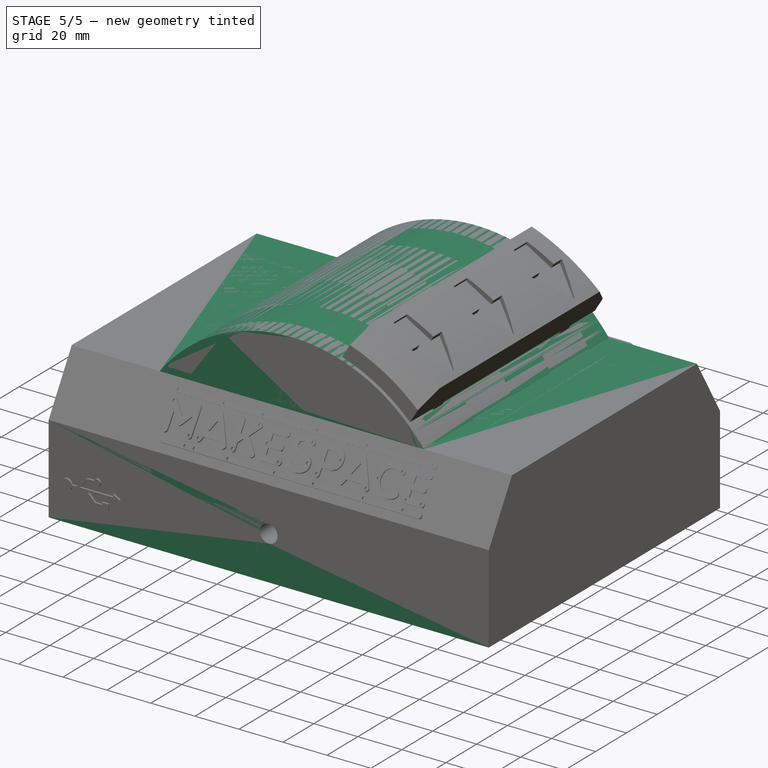
[diagram: stage 5 of 5 — iso view after this stage's code; geometry added in this stage tinted green]
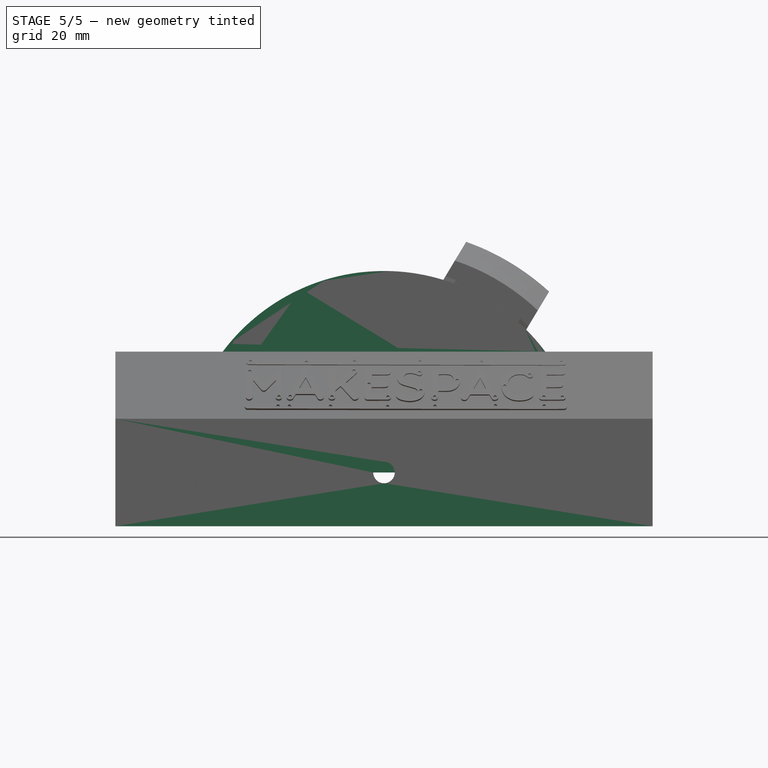
[diagram: stage 5 of 5 — front view after this stage's code; geometry added in this stage tinted green]
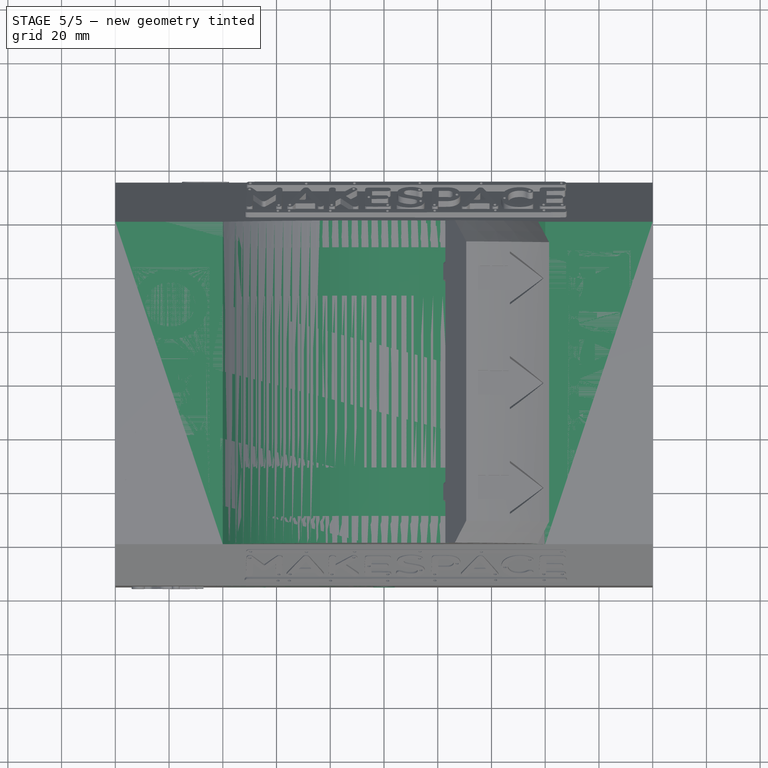
[diagram: stage 5 of 5 — top view after this stage's code; geometry added in this stage tinted green]
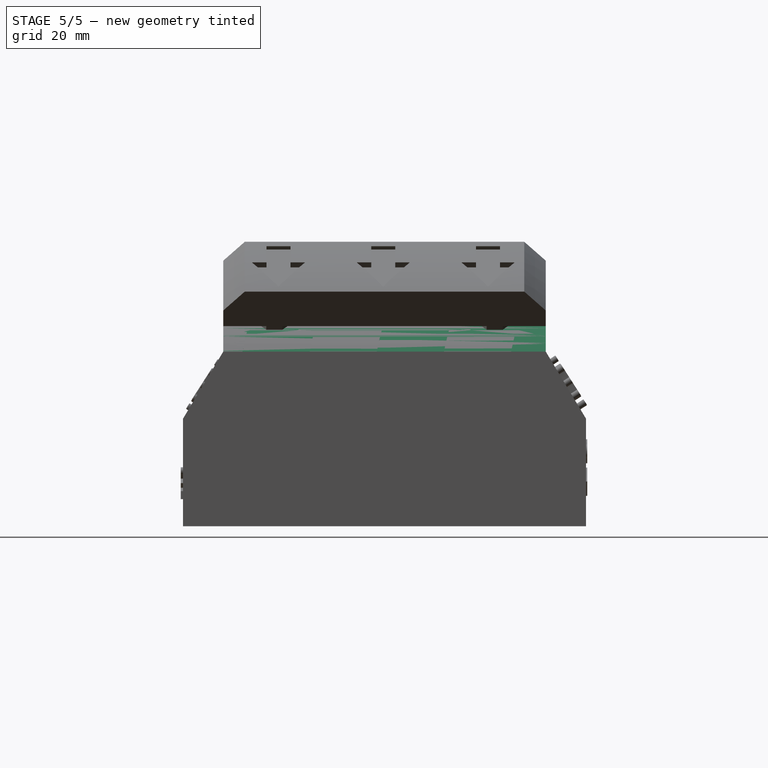
[diagram: stage 5 of 5 — right view after this stage's code; geometry added in this stage tinted green]
FEATURE [Part::Cut] Cut
  Base = -> Cylinder011
  Tool = -> Cylinder010
FEATURE [Sketcher::SketchObject] Sketch009
  ExternalGeometry = -> [Pocket002]
  Placement = pos=(0,-5,0) rot=(1,0,0;1.5708rad)
  Support = -> Pocket002 [Face6]
  sketch-geometry (6):
    g0: Circle CenterX=0 CenterY=0 CenterZ=0 NormalX=0 NormalY=0 NormalZ=1 Radius=4
    g1: ArcOfCircle CenterX=0 CenterY=0 CenterZ=0 NormalX=0 NormalY=0 NormalZ=1 Radius=15 StartAngle=0 EndAngle=3.14159
    g2: LineSegment [constr] StartX=15 StartY=0 StartZ=0 EndX=-15 EndY=0 EndZ=0
    g3: LineSegment StartX=-15 StartY=0 StartZ=0 EndX=-15 EndY=-20 EndZ=0
    g4: LineSegment StartX=-15 StartY=-20 StartZ=0 EndX=15 EndY=-20 EndZ=0
    g5: LineSegment StartX=15 StartY=-20 StartZ=0 EndX=15 EndY=0 EndZ=0
  constraints (16):
    c: Coincident(g0,g-1)
    c: Equal(g-3,g0)
    c: Coincident(g1,g-1)
    c: Coincident(g1,g2)
    c: Coincident(g2,g1)
    c: Coincident(g2,g3)
    c: PointOnObject(g3,g-4)
    c: Coincident(g3,g4)
    c: PointOnObject(g4,g-4)
    c: Coincident(g4,g5)
    c: Coincident(g5,g2)
    c: Vertical(g3)
    c: Vertical(g5)
    c: Horizontal(g2)
    c: PointOnObject(g1,g2)
    c: Radius(g1) = 15
FEATURE [Part::Extrusion] Extrude_Sketch009001  label="Sketch009_Extrude001"
  Base = -> Sketch009
  Dir = (0,-6.8,0)
  Solid = true
FEATURE [PartDesign::Chamfer] Chamfer002
  Base = -> Extrude_Sketch009001 [Edge5,Edge8]
  Size = 10
FEATURE [Part::FeaturePython] Clone  label="Clone of Chamfer002"  # Draft clone (typed FeaturePython)
  Objects = -> [Chamfer002]
  Placement = pos=(0,-103.2,0) rot=(0,0,1;0rad)
  Scale = (1,1,1)
FEATURE [Part::MultiFuse] Fusion
  Shapes = -> [Clone,Chamfer002]
FEATURE [Sketcher::SketchObject] Sketch010
  Placement = pos=(0,-115,0) rot=(0,0.707107,0.707107;3.14159rad)
  sketch-geometry (4):
    g0: LineSegment StartX=-55.578 StartY=8.39499 StartZ=0 EndX=-63.3036 EndY=21.2525 EndZ=0
    g1: LineSegment StartX=-63.3036 StartY=21.2525 StartZ=0 EndX=-41.8744 EndY=34.1285 EndZ=0
    g2: LineSegment StartX=-41.8744 StartY=34.1285 StartZ=0 EndX=-34.1488 EndY=21.2709 EndZ=0
    g3: LineSegment StartX=-34.1488 StartY=21.2709 StartZ=0 EndX=-55.578 EndY=8.39499 EndZ=0
  constraints (12):
    c: Coincident(g0,g1)
    c: Coincident(g1,g2)
    c: Coincident(g2,g3)
    c: Coincident(g3,g0)
    c: Parallel(g2,g0)
    c: Perpendicular(g0,g1)
    c: Parallel(g1,g3)
    c: Angle(g-1,g2) = 2.11185
    c: DistanceX(g2) = -34.1488
    c: DistanceY(g2) = 21.2709
    c: Distance(g2) = 15
    c: Distance(g1) = 25
FEATURE [Sketcher::SketchObject] Sketch011
  Placement = pos=(0,0,-20) rot=(1,0,0;3.14159rad)
  Support = -> Pocket002 [Face1]
  sketch-geometry (4):
    g0: LineSegment StartX=-94 StartY=2 StartZ=0 EndX=94 EndY=2 EndZ=0
    g1: LineSegment StartX=94 StartY=2 StartZ=0 EndX=94 EndY=118 EndZ=0
    g2: LineSegment StartX=94 StartY=118 StartZ=0 EndX=-94 EndY=118 EndZ=0
    g3: LineSegment StartX=-94 StartY=118 StartZ=0 EndX=-94 EndY=2 EndZ=0
  constraints (8):
    c: Coincident(g0,g1)
    c: Coincident(g1,g2)
    c: Coincident(g2,g3)
    c: Coincident(g3,g0)
    c: Horizontal(g0)
    c: Horizontal(g2)
    c: Vertical(g1)
    c: Vertical(g3)
FEATURE [PartDesign::Pocket] Pocket004
  Length = 4.5
  Sketch = -> Sketch011
  Type = 0
FEATURE [Sketcher::SketchObject] Sketch018
  ExternalGeometry = -> [Clone009]
  Placement = pos=(0,-89.85,-5.8) rot=(0,0.707107,0.707107;3.14159rad)
  Support = -> Clone009 [Face4]
  sketch-geometry (6):
    g0: LineSegment StartX=-6.3 StartY=43.4561 StartZ=0 EndX=6.3 EndY=43.4561 EndZ=0
    g1: LineSegment StartX=6.3 StartY=43.4561 StartZ=0 EndX=6.3 EndY=30.8561 EndZ=0
    g2: LineSegment StartX=6.3 StartY=30.8561 StartZ=0 EndX=-6.3 EndY=30.8561 EndZ=0
    g3: LineSegment StartX=-6.3 StartY=30.8561 StartZ=0 EndX=-6.3 EndY=43.4561 EndZ=0
    g4: LineSegment [constr] StartX=-6.3 StartY=43.4561 StartZ=0 EndX=-3 EndY=40.1561 EndZ=0
    g5: LineSegment [constr] StartX=3 StartY=34.1561 StartZ=0 EndX=6.3 EndY=30.8561 EndZ=0
  constraints (16):
    c: Coincident(g0,g1)
    c: Coincident(g1,g2)
    c: Coincident(g2,g3)
    c: Coincident(g3,g0)
    c: Horizontal(g0)
    c: Horizontal(g2)
    c: Vertical(g1)
    c: Vertical(g3)
    c: Equal(g1,g2)
    c: Coincident(g4,g0)
    c: Coincident(g4,g-4)
    c: Coincident(g5,g-3)
    c: Coincident(g5,g1)
    c: Equal(g4,g5)
    c: Parallel(g5,g4)
    c: Distance(g0) = 12.6
FEATURE [Part::Extrusion] Extrude_Sketch018  label="Sketch018_Extrude"
  Base = -> Sketch018
  Dir = (0,150,0)
  Placement = pos=(0,-43,0) rot=(0,0,1;0rad)
  Solid = true
FEATURE [Part::Cut] Cut003
  Base = -> Pad004
  Tool = -> Extrude_Sketch018
FEATURE [Sketcher::SketchObject] Sketch019
  ExternalGeometry = -> [Cut003]
  Placement = pos=(0,-93.25,0) rot=(1,0,0;1.5708rad)
  Support = -> Cut003 [Face16]
  sketch-geometry (10):
    g0: LineSegment StartX=-6.3 StartY=37.6561 StartZ=0 EndX=6.3 EndY=37.6561 EndZ=0
    g1: LineSegment StartX=6.3 StartY=37.6561 StartZ=0 EndX=6.3 EndY=25.0561 EndZ=0
    g2: LineSegment StartX=6.3 StartY=25.0561 StartZ=0 EndX=-6.3 EndY=25.0561 EndZ=0
    g3: LineSegment StartX=-6.3 StartY=25.0561 StartZ=0 EndX=-6.3 EndY=37.6561 EndZ=0
    g4: LineSegment StartX=3.3 StartY=28.0561 StartZ=0 EndX=-3.3 EndY=28.0561 EndZ=0
    g5: LineSegment StartX=-3.3 StartY=28.0561 StartZ=0 EndX=-3.3 EndY=34.6561 EndZ=0
    g6: LineSegment StartX=-3.3 StartY=34.6561 StartZ=0 EndX=3.3 EndY=34.6561 EndZ=0
    g7: LineSegment StartX=3.3 StartY=34.6561 StartZ=0 EndX=3.3 EndY=28.0561 EndZ=0
    g8: LineSegment [constr] StartX=3.3 StartY=34.6561 StartZ=0 EndX=6.3 EndY=37.6561 EndZ=0
    g9: LineSegment [constr] StartX=-3.3 StartY=28.0561 StartZ=0 EndX=-6.3 EndY=25.0561 EndZ=0
  constraints (26):
    c: Coincident(g0,g1)
    c: Coincident(g1,g2)
    c: Coincident(g2,g3)
    c: Coincident(g3,g0)
    c: Horizontal(g0)
    c: Horizontal(g2)
    c: Vertical(g1)
    c: Vertical(g3)
    c: Coincident(g0,g-5)
    c: Coincident(g1,g-4)
    c: Coincident(g4,g5)
    c: Coincident(g5,g6)
    c: Coincident(g6,g7)
    c: Coincident(g7,g4)
    c: Horizontal(g4)
    c: Horizontal(g6)
    c: Vertical(g5)
    c: Vertical(g7)
    c: Coincident(g8,g6)
    c: Coincident(g8,g0)
    c: Coincident(g9,g2)
    c: Coincident(g4,g9)
    c: Equal(g8,g9)
    c: Parallel(g8,g9)
    c: Equal(g6,g7)
    c: Distance(g6) = 6.6
FEATURE [Sketcher::SketchObject] Sketch020
  ExternalGeometry = -> [Cut003]
  Placement = pos=(0,0,45) rot=(0,0,1;0rad)
  Support = -> Cut003 [Face23]
  sketch-geometry (6):
    g0: LineSegment StartX=10 StartY=-46.75 StartZ=0 EndX=-10 EndY=-46.75 EndZ=0
    g1: LineSegment StartX=-10 StartY=-46.75 StartZ=0 EndX=-10 EndY=-73.25 EndZ=0
    g2: LineSegment StartX=-10 StartY=-73.25 StartZ=0 EndX=10 EndY=-73.25 EndZ=0
    g3: LineSegment StartX=10 StartY=-73.25 StartZ=0 EndX=10 EndY=-46.75 EndZ=0
    g4: LineSegment [constr] StartX=10 StartY=-26.75 StartZ=0 EndX=10 EndY=-46.75 EndZ=0
    g5: LineSegment [constr] StartX=10 StartY=-93.25 StartZ=0 EndX=10 EndY=-73.25 EndZ=0
  constraints (17):
    c: Coincident(g0,g1)
    c: Coincident(g1,g2)
    c: Coincident(g2,g3)
    c: Coincident(g3,g0)
    c: Horizontal(g0)
    c: Horizontal(g2)
    c: Vertical(g1)
    c: Vertical(g3)
    c: PointOnObject(g0,g-3)
    c: PointOnObject(g1,g-4)
    c: Distance(g-3,g0) = 20
    c: Coincident(g4,g-3)
    c: Coincident(g5,g-3)
    c: Equal(g5,g4)
    c: Coincident(g2,g5)
    c: Coincident(g0,g4)
    c: Distance(g0,g2) = 26.5
FEATURE [PartDesign::Pocket] Pocket008
  Length = 35
  Sketch = -> Sketch020
  Type = 0
FEATURE [PartDesign::Chamfer] Chamfer006
  Base = -> Pocket008 [Edge89,Edge85]
  Size = 6
FEATURE [PartDesign::Chamfer] Chamfer008
  Base = -> Chamfer006 [Edge18,Edge14,Edge97,Edge94,Edge19,Edge11,Edge92,Edge98]
  Size = 3.1
FEATURE [PartDesign::Chamfer] Chamfer009
  Base = -> Chamfer008 [Edge39,Edge33,Edge36,Edge44]
  Size = 4.5
FEATURE [Sketcher::SketchObject] Sketch023
  ExternalGeometry = -> [Chamfer009]
  Placement = pos=(0,-73.25,0) rot=(0,0.707107,0.707107;3.14159rad)
  Support = -> Chamfer009 [Face18]
  sketch-geometry (8):
    g0: LineSegment StartX=10 StartY=40.5 StartZ=0 EndX=-10 EndY=40.5 EndZ=0
    g1: LineSegment StartX=-10 StartY=40.5 StartZ=0 EndX=-10 EndY=23.0561 EndZ=0
    g2: LineSegment StartX=-10 StartY=23.0561 StartZ=0 EndX=10 EndY=23.0561 EndZ=0
    g3: LineSegment StartX=10 StartY=23.0561 StartZ=0 EndX=10 EndY=40.5 EndZ=0
    g4: Circle CenterX=7 CenterY=37.5 CenterZ=0 NormalX=0 NormalY=0 NormalZ=1 Radius=1.6
    g5: Circle CenterX=-7 CenterY=26.0561 CenterZ=0 NormalX=0 NormalY=0 NormalZ=1 Radius=1.6
    g6: Circle [constr] CenterX=7 CenterY=37.5 CenterZ=0 NormalX=0 NormalY=0 NormalZ=1 Radius=3
    g7: Circle [constr] CenterX=-7 CenterY=26.0561 CenterZ=0 NormalX=0 NormalY=0 NormalZ=1 Radius=3
  constraints (22):
    c: Coincident(g0,g1)
    c: Coincident(g1,g2)
    c: Coincident(g2,g3)
    c: Coincident(g3,g0)
    c: Horizontal(g0)
    c: Horizontal(g2)
    c: Vertical(g1)
    c: Vertical(g3)
    c: PointOnObject(g0,g-4)
    c: PointOnObject(g1,g-3)
    c: Coincident(g0,g-3)
    c: Distance(g-5,g2) = 2
    c: Coincident(g6,g4)
    c: Coincident(g7,g5)
    c: Equal(g7,g6)
    c: Radius(g4) = 1.6
    c: Equal(g4,g5)
    c: Radius(g6) = 3
    c: Tangent(g6,g-4)
    c: Tangent(g6,g0)
    c: Tangent(g2,g7)
    c: Tangent(g7,g-3)
FEATURE [Part::Extrusion] Extrude_Sketch023  label="Sketch023_Extrude"
  Base = -> Sketch023
  Dir = (0,5,0)
  Solid = true
FEATURE [PartDesign::Chamfer] Chamfer010
  Base = -> Extrude_Sketch023 [Edge7,Edge12]
  Size = 1
FEATURE [Sketcher::SketchObject] Sketch024
  ExternalGeometry = -> [Chamfer010]
  Placement = pos=(0,-68.25,0) rot=(0,0.707107,0.707107;3.14159rad)
  Support = -> Chamfer010 [Face5]
  sketch-geometry (2):
    g0: Circle CenterX=7 CenterY=37.5 CenterZ=0 NormalX=0 NormalY=0 NormalZ=1 Radius=4.24264
    g1: Circle CenterX=-7 CenterY=26.0561 CenterZ=0 NormalX=0 NormalY=0 NormalZ=1 Radius=4.24264
  constraints (4):
    c: PointOnObject(g-5,g0)
    c: Coincident(g1,g-3)
    c: PointOnObject(g-6,g1)
    c: Coincident(g0,g-4)
FEATURE [PartDesign::Pocket] Pocket010
  Length = 3.5
  Sketch = -> Sketch024
  Type = 0
FEATURE [App::DocumentObjectGroup] Grupo006  label="tapaTeton"
  Group = -> [Extrude_Sketch023,Chamfer010,Pocket010]
FEATURE [Part::Cylinder] Cylinder012  label="Cilindro012"
  Angle = 360
  Height = 10
  Placement = pos=(-7,-72.75,37.5) rot=(1,0,0;1.5708rad)
  Radius = 1.4
FEATURE [Part::MultiFuse] Fusion002
  Shapes = -> [Cylinder012,Cylinder014,Cylinder015,Cylinder016]
FEATURE [Part::Cut] Cut004
  Base = -> Chamfer009
  Tool = -> Fusion002
FEATURE [PartDesign::Chamfer] Chamfer011
  Base = -> Cut004 [Edge27,Edge3]
  Size = 10
FEATURE [Part::Cylinder] Cylinder017  label="Cilindro016"
  Angle = 58
  Height = 10
  Placement = pos=(12,-7,-16) rot=(1,0,0;1.5708rad)
  Radius = 40
FEATURE [Sketcher::SketchObject] Sketch025
  ExternalGeometry = -> [Fusion003]
  Placement = pos=(4.3,-23.0743,27) rot=(0.926702,0.265728,-0.265728;1.64685rad)
  Support = -> Fusion003 [Face1]
  sketch-geometry (2):
    g0: Circle CenterX=36.757 CenterY=-1.77713 CenterZ=0 NormalX=0 NormalY=0 NormalZ=1 Radius=1.4
    g1: Circle CenterX=36.757 CenterY=-10.8348 CenterZ=0 NormalX=0 NormalY=0 NormalZ=1 Radius=1.4
  constraints (4):
    c: Coincident(g0,g-4)
    c: Coincident(g1,g-3)
    c: Radius(g1) = 1.4
    c: Equal(g1,g0)
FEATURE [Part::Extrusion] Extrude_Sketch025  label="Sketch025_Extrude"
  Base = -> Sketch025
  Dir = (0,25,0)
  Solid = true
FEATURE [Part::Cut] Cut005
  Base = -> Cylinder017
  Tool = -> Extrude_Sketch025
FEATURE [Part::FeaturePython] Clone055  label="Clone of Cut005"  # Draft clone (typed FeaturePython)
  Objects = -> [Cut005]
  Placement = pos=(0,-96,0) rot=(0,0,1;0rad)
  Scale = (1,1,1)
FEATURE [Part::MultiFuse] Fusion004
  Shapes = -> [Clone055,Cut005]
FEATURE [Part::MultiFuse] Fusion005
  Shapes = -> [Chamfer011,Fusion]
FEATURE [Part::MultiFuse] Fusion006
  Shapes = -> [Fusion005,Fusion004]
FEATURE [Sketcher::SketchObject] Sketch026
  Placement = pos=(0,0,-15) rot=(0,0,1;0rad)
  Support = -> Fusion006 [Face20]
  sketch-geometry (42):
    g0: LineSegment [constr] StartX=-41.6025 StartY=-44.6672 StartZ=0 EndX=-66.6025 EndY=-44.6672 EndZ=0
    g1: LineSegment [constr] StartX=-66.6025 StartY=-44.6672 StartZ=0 EndX=-66.6025 EndY=-74.6672 EndZ=0
    g2: LineSegment [constr] StartX=-66.6025 StartY=-74.6672 StartZ=0 EndX=-41.6025 EndY=-74.6672 EndZ=0
    g3: LineSegment [constr] StartX=-41.6025 StartY=-74.6672 StartZ=0 EndX=-41.6025 EndY=-44.6672 EndZ=0
    g4: LineSegment [constr] StartX=-29.1025 StartY=-34.6672 StartZ=0 EndX=-79.1025 EndY=-34.6672 EndZ=0
    g5: LineSegment [constr] StartX=-79.1025 StartY=-34.6672 StartZ=0 EndX=-79.1025 EndY=-84.6672 EndZ=0
    g6: LineSegment [constr] StartX=-79.1025 StartY=-84.6672 StartZ=0 EndX=-29.1025 EndY=-84.6672 EndZ=0
    g7: LineSegment [constr] StartX=-29.1025 StartY=-84.6672 StartZ=0 EndX=-29.1025 EndY=-34.6672 EndZ=0
    g8: LineSegment [constr] StartX=-24.1025 StartY=-19.6672 StartZ=0 EndX=-84.1025 EndY=-19.6672 EndZ=0
    g9: LineSegment [constr] StartX=-84.1025 StartY=-19.6672 StartZ=0 EndX=-84.1025 EndY=-99.6672 EndZ=0
    g10: LineSegment [constr] StartX=-84.1025 StartY=-99.6672 StartZ=0 EndX=-24.1025 EndY=-99.6672 EndZ=0
    g11: LineSegment [constr] StartX=-24.1025 StartY=-99.6672 StartZ=0 EndX=-24.1025 EndY=-19.6672 EndZ=0
    g12: Circle CenterX=-24.1025 CenterY=-19.6672 CenterZ=0 NormalX=0 NormalY=0 NormalZ=1 Radius=1.45
    g13: Circle CenterX=-24.1025 CenterY=-99.6672 CenterZ=0 NormalX=0 NormalY=0 NormalZ=1 Radius=1.45
    g14: Circle CenterX=-84.1025 CenterY=-99.6672 CenterZ=0 NormalX=0 NormalY=0 NormalZ=1 Radius=1.45
    g15: Circle CenterX=-79.1025 CenterY=-84.6672 CenterZ=0 NormalX=0 NormalY=0 NormalZ=1 Radius=1.45
    g16: Circle CenterX=-29.1025 CenterY=-84.6672 CenterZ=0 NormalX=0 NormalY=0 NormalZ=1 Radius=1.45
    g17: Circle CenterX=-29.1025 CenterY=-34.6672 CenterZ=0 NormalX=0 NormalY=0 NormalZ=1 Radius=1.45
    g18: Circle CenterX=-79.1025 CenterY=-34.6672 CenterZ=0 NormalX=0 NormalY=0 NormalZ=1 Radius=1.45
    g19: Circle CenterX=-84.1025 CenterY=-19.6672 CenterZ=0 NormalX=0 NormalY=0 NormalZ=1 Radius=1.45
    g20: Circle CenterX=-66.6025 CenterY=-44.6672 CenterZ=0 NormalX=0 NormalY=0 NormalZ=1 Radius=1.45
    g21: Circle CenterX=-66.6025 CenterY=-74.6672 CenterZ=0 NormalX=0 NormalY=0 NormalZ=1 Radius=1.45
    g22: Circle CenterX=-41.6025 CenterY=-74.6672 CenterZ=0 NormalX=0 NormalY=0 NormalZ=1 Radius=1.45
    g23: Circle CenterX=-41.6025 CenterY=-44.6672 CenterZ=0 NormalX=0 NormalY=0 NormalZ=1 Radius=1.45
    g24: Circle CenterX=-24.1025 CenterY=-19.6672 CenterZ=0 NormalX=0 NormalY=0 NormalZ=1 Radius=3
    g25: Circle CenterX=-29.1025 CenterY=-34.6672 CenterZ=0 NormalX=0 NormalY=0 NormalZ=1 Radius=3
    g26: Circle CenterX=-41.6025 CenterY=-44.6672 CenterZ=0 NormalX=0 NormalY=0 NormalZ=1 Radius=3
    g27: Circle CenterX=-41.6025 CenterY=-74.6672 CenterZ=0 NormalX=0 NormalY=0 NormalZ=1 Radius=3
    g28: Circle CenterX=-29.1025 CenterY=-84.6672 CenterZ=0 NormalX=0 NormalY=0 NormalZ=1 Radius=3
    g29: Circle CenterX=-24.1025 CenterY=-99.6672 CenterZ=0 NormalX=0 NormalY=0 NormalZ=1 Radius=3
    g30: Circle CenterX=-84.1025 CenterY=-99.6672 CenterZ=0 NormalX=0 NormalY=0 NormalZ=1 Radius=3
    g31: Circle CenterX=-79.1025 CenterY=-84.6672 CenterZ=0 NormalX=0 NormalY=0 NormalZ=1 Radius=3
    g32: Circle CenterX=-66.6025 CenterY=-74.6672 CenterZ=0 NormalX=0 NormalY=0 NormalZ=1 Radius=3
    g33: Circle CenterX=-66.6025 CenterY=-44.6672 CenterZ=0 NormalX=0 NormalY=0 NormalZ=1 Radius=3
    g34: Circle CenterX=-79.1025 CenterY=-34.6672 CenterZ=0 NormalX=0 NormalY=0 NormalZ=1 Radius=3
    g35: Circle CenterX=-84.1025 CenterY=-19.6672 CenterZ=0 NormalX=0 NormalY=0 NormalZ=1 Radius=3
    g36: LineSegment [constr] StartX=-24.1025 StartY=-99.6672 StartZ=0 EndX=-29.1025 EndY=-84.6672 EndZ=0
    g37: LineSegment [constr] StartX=-79.1025 StartY=-84.6672 StartZ=0 EndX=-84.1025 EndY=-99.6672 EndZ=0
    g38: LineSegment [constr] StartX=-79.1025 StartY=-34.6672 StartZ=0 EndX=-84.1025 EndY=-19.6672 EndZ=0
    g39: LineSegment [constr] StartX=-79.1025 StartY=-34.6672 StartZ=0 EndX=-66.6025 EndY=-44.6672 EndZ=0
    g40: LineSegment [constr] StartX=-66.6025 StartY=-74.6672 StartZ=0 EndX=-79.1025 EndY=-84.6672 EndZ=0
    g41: LineSegment [constr] StartX=-29.1025 StartY=-84.6672 StartZ=0 EndX=-41.6025 EndY=-74.6672 EndZ=0
  constraints (90):
    c: Coincident(g0,g1)
    c: Coincident(g1,g2)
    c: Coincident(g2,g3)
    c: Coincident(g3,g0)
    c: Horizontal(g0)
    c: Horizontal(g2)
    c: Vertical(g1)
    c: Vertical(g3)
    c: Coincident(g4,g5)
    c: Coincident(g5,g6)
    c: Coincident(g6,g7)
    c: Coincident(g7,g4)
    c: Horizontal(g4)
    c: Horizontal(g6)
    c: Vertical(g5)
    c: Vertical(g7)
    c: Coincident(g8,g9)
    c: Coincident(g9,g10)
    c: Coincident(g10,g11)
    c: Coincident(g11,g8)
    c: Horizontal(g8)
    c: Horizontal(g10)
    c: Vertical(g9)
    c: Vertical(g11)
    c: Coincident(g12,g8)
    c: Coincident(g13,g10)
    c: Coincident(g14,g9)
    c: Coincident(g15,g5)
    c: Coincident(g16,g6)
    c: Coincident(g17,g4)
    c: Coincident(g18,g4)
    c: Coincident(g19,g8)
    c: Coincident(g20,g0)
    c: Coincident(g21,g1)
    c: Coincident(g22,g2)
    c: Coincident(g23,g0)
    c: Radius(g13) = 1.45
    c: Equal(g13,g16)
    c: Equal(g13,g22)
    c: Equal(g13,g21)
    c: Equal(g13,g15)
    c: Equal(g13,g14)
    c: Equal(g13,g20)
    c: Equal(g13,g18)
    c: Equal(g13,g19)
    c: Equal(g13,g12)
    c: Equal(g13,g17)
    c: Equal(g13,g23)
    c: Coincident(g24,g8)
    c: Coincident(g25,g4)
    c: Coincident(g26,g0)
    c: Coincident(g27,g2)
    c: Coincident(g28,g6)
    c: Coincident(g29,g10)
    c: Coincident(g30,g9)
    c: Coincident(g31,g5)
    c: Coincident(g32,g1)
    c: Coincident(g33,g0)
    c: Coincident(g34,g4)
    c: Coincident(g35,g8)
    c: Radius(g24) = 3
    c: Equal(g24, g25-g29) x5
    c: Equal(g24,g35)
    c: Equal(g24,g34)
    c: Equal(g24,g33)
    c: Equal(g24,g32)
    c: Equal(g24,g31)
    c: Equal(g24,g30)
    c: Coincident(g36,g10)
    c: Coincident(g36,g6)
    c: Coincident(g37,g5)
    c: Coincident(g37,g9)
    c: Coincident(g38,g4)
    c: Coincident(g38,g8)
    c: Coincident(g39,g4)
    c: Coincident(g39,g0)
    c: Coincident(g40,g1)
    c: Coincident(g40,g5)
    c: Coincident(g41,g6)
    c: Coincident(g41,g2)
    c: Equal(g39,g40)
    c: Equal(g40,g41)
    c: Equal(g36,g37)
    c: Equal(g37,g38)
    c: Distance(g10) = 60
    c: Distance(g9) = 80
    c: Distance(g5) = 50
    c: Distance(g6) = 50
    c: Distance(g1) = 30
    c: Distance(g2) = 25
FEATURE [PartDesign::Pad] Pad006
  Length = 6
  Length2 = 100
  Sketch = -> Sketch026
  Type = 0
FEATURE [Part::Cut] Cut006
  Base = -> Pad006
  Tool = -> Cylinder018
FEATURE [Sketcher::SketchObject] Sketch027
  ExternalGeometry = -> [Cut006]
  Placement = pos=(0,0,-15) rot=(0,0,1;0rad)
  Support = -> Cut006 [Face20]
  sketch-geometry (6):
    g0: LineSegment StartX=93.75 StartY=-45 StartZ=0 EndX=78.75 EndY=-45 EndZ=0
    g1: LineSegment StartX=78.75 StartY=-45 StartZ=0 EndX=78.75 EndY=-75 EndZ=0
    g2: LineSegment StartX=78.75 StartY=-75 StartZ=0 EndX=93.75 EndY=-75 EndZ=0
    g3: LineSegment StartX=93.75 StartY=-75 StartZ=0 EndX=93.75 EndY=-45 EndZ=0
    g4: LineSegment [constr] StartX=78.75 StartY=-45 StartZ=0 EndX=93.75 EndY=0.75 EndZ=0
    g5: LineSegment [constr] StartX=78.75 StartY=-75 StartZ=0 EndX=93.75 EndY=-120.75 EndZ=0
  constraints (16):
    c: Coincident(g0,g1)
    c: Coincident(g1,g2)
    c: Coincident(g2,g3)
    c: Coincident(g3,g0)
    c: Horizontal(g0)
    c: Horizontal(g2)
    c: Vertical(g1)
    c: Vertical(g3)
    c: PointOnObject(g0,g-3)
    c: Coincident(g4,g0)
    c: Coincident(g4,g-3)
    c: Coincident(g5,g1)
    c: Coincident(g5,g-3)
    c: Equal(g5,g4)
    c: Distance(g2) = 15
    c: Distance(g1) = 30
FEATURE [PartDesign::Pad] Pad007
  Length = 20
  Length2 = 100
  Sketch = -> Sketch027
  Type = 0
FEATURE [Part::Cut] Cut007
  Base = -> Pad007
  Tool = -> Fusion007
FEATURE [Sketcher::SketchObject] Sketch028
  ExternalGeometry = -> [Cut007]
  Placement = pos=(0,-93.25,0) rot=(1,0,0;1.5708rad)
  Support = -> Cut007 [Face35]
  sketch-geometry (10):
    g0: LineSegment StartX=6.3 StartY=37.6561 StartZ=0 EndX=-6.3 EndY=37.6561 EndZ=0
    g1: LineSegment StartX=-6.3 StartY=37.6561 StartZ=0 EndX=-6.3 EndY=25.0561 EndZ=0
    g2: LineSegment StartX=-6.3 StartY=25.0561 StartZ=0 EndX=6.3 EndY=25.0561 EndZ=0
    g3: LineSegment StartX=6.3 StartY=25.0561 StartZ=0 EndX=6.3 EndY=37.6561 EndZ=0
    g4: LineSegment StartX=3.2 StartY=34.5561 StartZ=0 EndX=-3.2 EndY=34.5561 EndZ=0
    g5: LineSegment StartX=-3.2 StartY=34.5561 StartZ=0 EndX=-3.2 EndY=28.1561 EndZ=0
    g6: LineSegment StartX=-3.2 StartY=28.1561 StartZ=0 EndX=3.2 EndY=28.1561 EndZ=0
    g7: LineSegment StartX=3.2 StartY=28.1561 StartZ=0 EndX=3.2 EndY=34.5561 EndZ=0
    g8: LineSegment [constr] StartX=6.3 StartY=37.6561 StartZ=0 EndX=3.2 EndY=34.5561 EndZ=0
    g9: LineSegment [constr] StartX=-3.2 StartY=28.1561 StartZ=0 EndX=-6.3 EndY=25.0561 EndZ=0
  constraints (28):
    c: Coincident(g0,g1)
    c: Coincident(g1,g2)
    c: Coincident(g2,g3)
    c: Coincident(g3,g0)
    c: Horizontal(g0)
    c: Horizontal(g2)
    c: Vertical(g1)
    c: Vertical(g3)
    c: PointOnObject(g-3,g0)
    c: PointOnObject(g-6,g3)
    c: PointOnObject(g-5,g1)
    c: PointOnObject(g-4,g2)
    c: Coincident(g4,g5)
    c: Coincident(g5,g6)
    c: Coincident(g6,g7)
    c: Coincident(g7,g4)
    c: Horizontal(g4)
    c: Horizontal(g6)
    c: Vertical(g5)
    c: Vertical(g7)
    c: Equal(g5,g6)
    c: Distance(g4) = 6.4
    c: Coincident(g8,g0)
    c: Coincident(g8,g4)
    c: Coincident(g9,g5)
    c: Coincident(g9,g1)
    c: Equal(g8,g9)
    c: Parallel(g8,g9)
FEATURE [Part::Extrusion] Extrude_Sketch028  label="Sketch028_Extrude"
  Base = -> Sketch028
  Dir = (0,3,0)
  Solid = true
FEATURE [Part::Feature] Cut007_solid  label="Cut007 (Solid)"
  shape: bbox 187.5 x 121.5 x 65 mm, 147 faces (baked)
FEATURE [Part::FeaturePython] Clone056  label="Clone of Sketch028_Extrude"  # Draft clone (typed FeaturePython)
  Objects = -> [Extrude_Sketch028]
  Placement = pos=(0,63.5,0) rot=(0,0,1;0rad)
  Scale = (1,1,1)
FEATURE [Part::MultiFuse] Fusion008
  Shapes = -> [Extrude_Sketch028,Clone056]
FEATURE [Part::MultiFuse] Fusion009
  Shapes = -> [Cut007_solid,Fusion008]
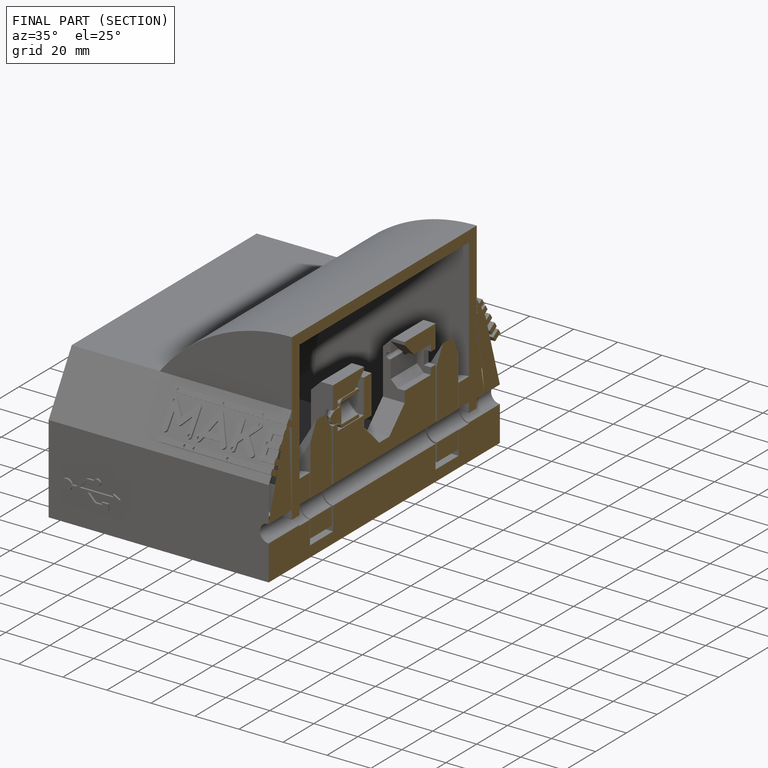
[diagram: finished part — half-section view (interior)]
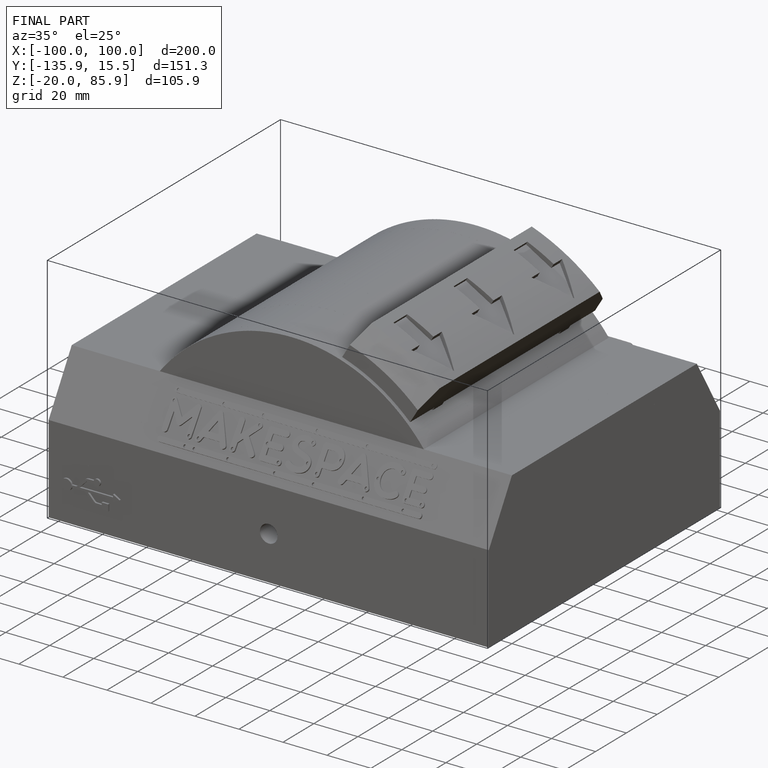
[diagram: finished part — iso view with bounding-box wireframe]
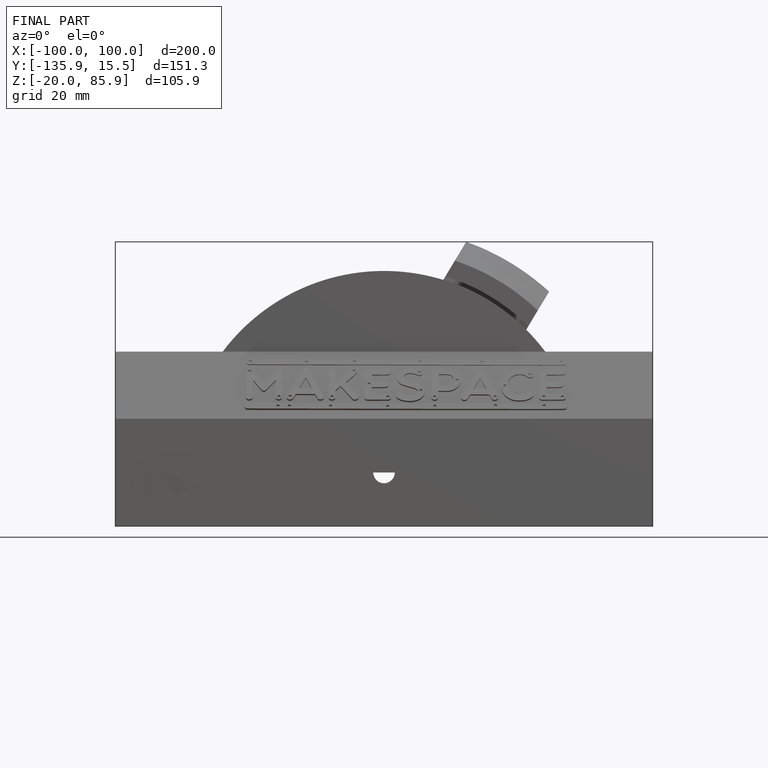
[diagram: finished part — front view with bounding-box wireframe]
